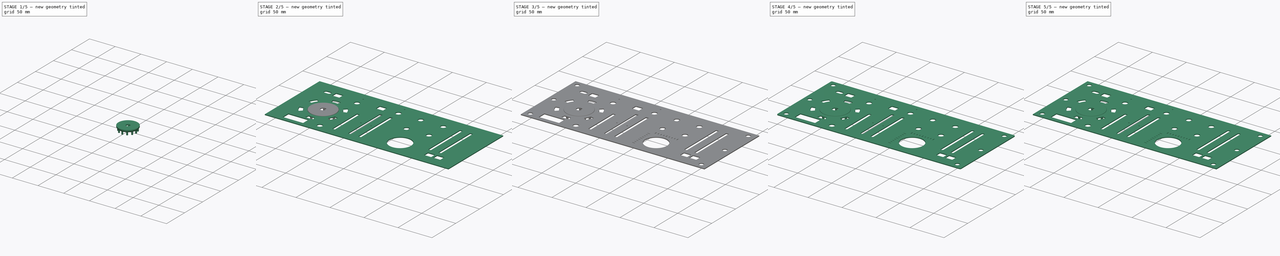
[diagram: build sequence overview — one tinted view per stage of 5, left to right]
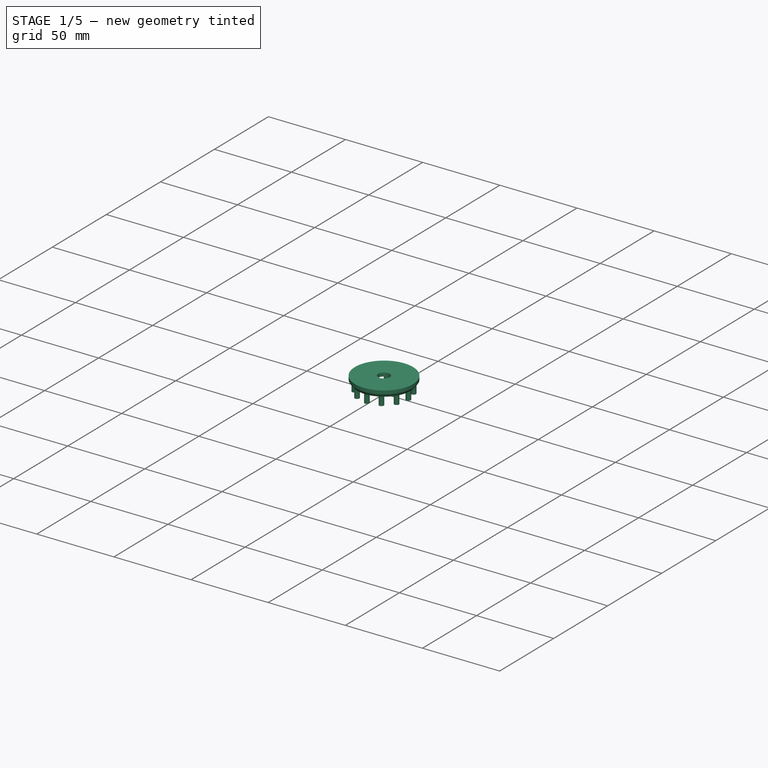
[diagram: stage 1 of 5 — iso view after this stage's code; geometry added in this stage tinted green]
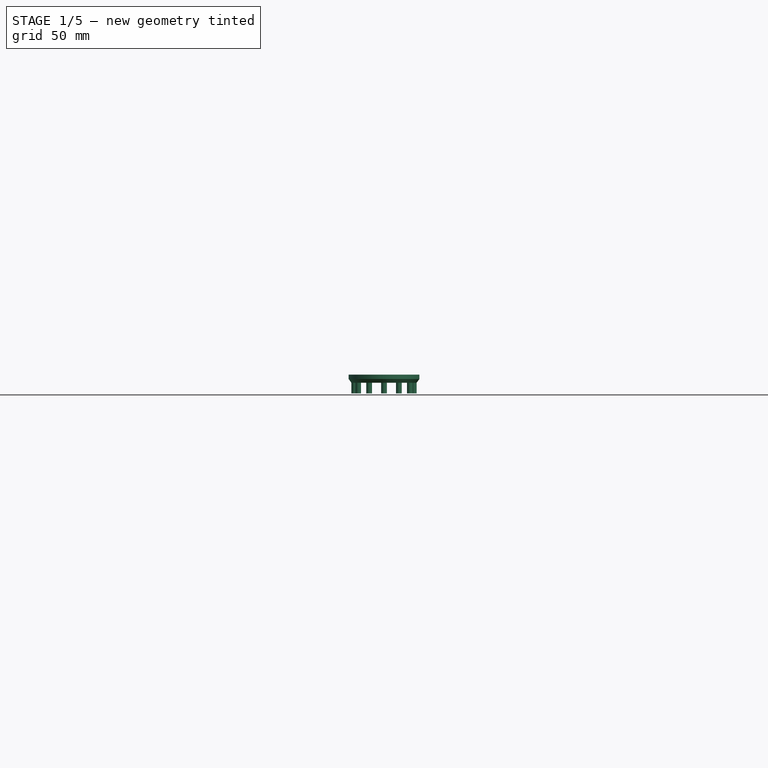
[diagram: stage 1 of 5 — front view after this stage's code; geometry added in this stage tinted green]
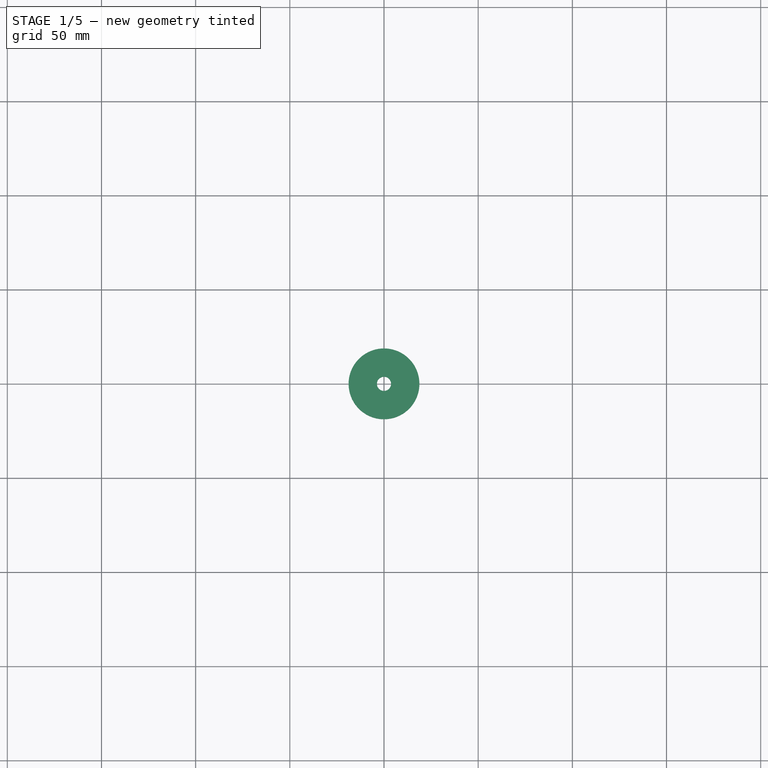
[diagram: stage 1 of 5 — top view after this stage's code; geometry added in this stage tinted green]
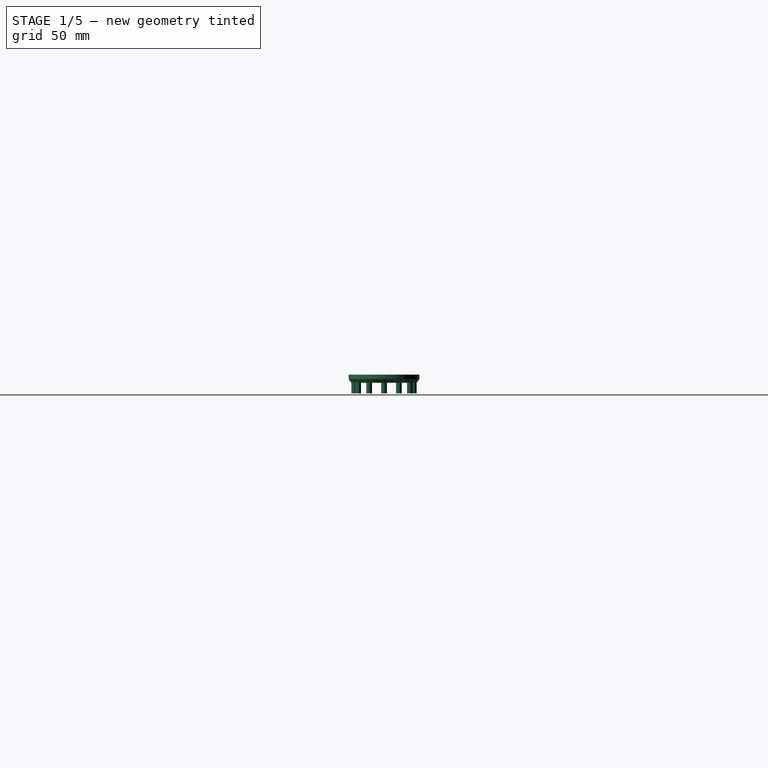
[diagram: stage 1 of 5 — right view after this stage's code; geometry added in this stage tinted green]
FCSTD DOCUMENT  (FreeCAD 0.18R16146 (Git))
Label: FaceplateMitEncoder
License: All rights reserved
LicenseURL: http://en.wikipedia.org/wiki/All_rights_reserved
objects: Drawing::FeatureViewPython×135, Sketcher::SketchObject×14, Part::Feature×13, App::DocumentObjectGroup×11, PartDesign::Fillet×10, PartDesign::Pocket×6, PartDesign::Pad×3, PartDesign::PolarPattern×2, PartDesign::Hole×2, PartDesign::Body×2, Drawing::FeatureViewPart×1, Drawing::FeaturePage×1, PartDesign::Plane×1, PartDesign::AdditiveLoft×1
note: 66 computed .brp shape members not serialized (recipe doc carries the construction recipe); baked Part::Feature solids carry a one-line shape summary decoded from their .brp

FEATURE [Sketcher::SketchObject] Sketch006
  MapMode = 5
  Support = -> [XY_Plane001]
  sketch-geometry (1):
    g0: Circle CenterX=0 CenterY=0 CenterZ=0 NormalX=0 NormalY=0 NormalZ=1 AngleXU=0 Radius=18.8
  constraints (2):
    c: Coincident(g0,g-1)
    c: Diameter(g0) = 37.6
FEATURE [PartDesign::Pad] Pad001
  Length = 2
  Length2 = 0.3
  Profile = -> Sketch006
  Type = 4
FEATURE [PartDesign::Body] Body
  Group = -> [Sketch,Pad,Pocket,PolarPattern,Sketch001,Hole,Sketch002,Pocket001,Fillet,Fillet001,Fillet002,Fillet003,Fillet004,Fillet005,Fillet006,Fillet007,Fillet008,Sketch003,Pocket002,Sketch005,Hole001,Sketch007,Pocket003]
  Origin = -> Origin
  Tip = -> Pocket003
FEATURE [Drawing::FeatureViewPart] Ortho  label="Ortho_0_0"
  Direction = (0,0,1)
  HiddenWidth = 0.15
  LineWidth = 0.35
  Rotation = 0
  ShowHiddenLines = false
  ShowSmoothLines = false
  Source = -> Body
  Tolerance = 0.05
  ViewResult = <blob: 18680 chars omitted>
  Visible = false
  X = 125.1
  Y = 125
FEATURE [Drawing::FeaturePage] Page  label="Fertigungszeichnung"
  EditableTexts = Christopher Wüpping | 09.01.2020 | SUPERVISOR NAME | CHECK DATE | 1:1 | 87g Al | 2020LUM1PROGFACEV1_0 | 1/1 | Programmer Faceplate | Lumax Programmer control V1.0
  Group = -> [Gruppe001,Gruppe002,Gruppe003,Gruppe004,Gruppe005,Gruppe006,dim036,dim037,dim038,dim039,dim040,dim042,dim043,dim045,dim046,Ortho]
  Template = /Applications/FreeCAD.app/Contents/Resources/data/Mod/Drawing/Templates/A3_Landscape.svg
FEATURE [Sketcher::SketchObject] Sketch008  label="KegelOben"
  MapMode = 5
  Placement = pos=(0,0,-0.3) rot=(1,0,0;3.14159rad)
  Support = -> [Pad001]
  sketch-geometry (3):
    g0: Circle CenterX=0 CenterY=0 CenterZ=0 NormalX=0 NormalY=0 NormalZ=1 AngleXU=0 Radius=18.8
    g1: Circle CenterX=0 CenterY=0 CenterZ=0 NormalX=0 NormalY=0 NormalZ=1 AngleXU=0 Radius=15.8
    g2: LineSegment [constr] StartX=0 StartY=18.8 StartZ=0 EndX=0 EndY=15.8 EndZ=0
  constraints (8):
    c: Coincident(g0,g-1)
    c: Diameter(g0) = 37.6
    c: Coincident(g1,g0)
    c: PointOnObject(g2,g0)
    c: PointOnObject(g2,g1)
    c: Vertical(g2)
    c: DistanceY(g2,g2) = 3
    c: PointOnObject(g2,g-2)
FEATURE [PartDesign::Plane] DatumPlane
  AttachmentOffset = pos=(0,0,2) rot=(0,0,1;0rad)
  Length = 45.1199
  MapMode = 2
  Placement = pos=(0,0,-2.3) rot=(1,0,0;3.14159rad)
  ResizeMode = 0
  Support = -> [Sketch008]
  Width = 45.1192
FEATURE [Sketcher::SketchObject] Sketch009  label="KegelUnten"
  MapMode = 5
  Placement = pos=(0,0,-2.3) rot=(1,0,0;3.14159rad)
  Support = -> [DatumPlane]
  sketch-geometry (5):
    g0: Circle CenterX=0 CenterY=0 CenterZ=0 NormalX=0 NormalY=0 NormalZ=1 AngleXU=0 Radius=17.3
    g1: Circle CenterX=0 CenterY=0 CenterZ=0 NormalX=0 NormalY=0 NormalZ=1 AngleXU=0 Radius=14.3
    g2: Circle [constr] CenterX=0 CenterY=0 CenterZ=0 NormalX=0 NormalY=0 NormalZ=1 AngleXU=0 Radius=15.8
    g3: LineSegment [constr] StartX=0 StartY=17.3 StartZ=0 EndX=0 EndY=15.8 EndZ=0
    g4: LineSegment [constr] StartX=0 StartY=15.8 StartZ=0 EndX=0 EndY=14.3 EndZ=0
  constraints (13):
    c: Coincident(g0,g-1)
    c: Coincident(g1,g0)
    c: Coincident(g2,g0)
    c: Radius(g2) = 15.8
    c: PointOnObject(g3,g0)
    c: Vertical(g3)
    c: Coincident(g3,g4)
    c: PointOnObject(g4,g1)
    c: Vertical(g4)
    c: PointOnObject(g3,g-2)
    c: DistanceY(g4,g4) = 1.5
    c: PointOnObject(g3,g2)
    c: DistanceY(g3,g3) = 1.5
FEATURE [PartDesign::AdditiveLoft] AdditiveLoft
  BaseFeature = -> Pad001
  Closed = false
  Profile = -> Sketch008
  Ruled = false
  Sections = -> [Sketch009]
FEATURE [Sketcher::SketchObject] Sketch010
  MapMode = 5
  Placement = pos=(0,0,-2.3) rot=(1,0,0;3.14159rad)
  Support = -> [AdditiveLoft]
  sketch-geometry (1):
    g0: Circle CenterX=0 CenterY=15.8 CenterZ=0 NormalX=0 NormalY=0 NormalZ=1 AngleXU=0 Radius=1.5
  constraints (3):
    c: PointOnObject(g0,g-2)
    c: Diameter(g0) = 3
    c: DistanceY(g-1,g0) = 15.8
FEATURE [PartDesign::Pad] Pad002
  BaseFeature = -> AdditiveLoft
  Length = 5.6
  Length2 = 100
  Profile = -> Sketch010
  Type = 0
FEATURE [PartDesign::PolarPattern] PolarPattern001
  Angle = 360
  Axis = -> Sketch010 [N_Axis]
  BaseFeature = -> Pad002
  Occurrences = 12
  Originals = -> [Pad002]
FEATURE [Sketcher::SketchObject] Sketch011
  MapMode = 5
  Placement = pos=(0,0,2) rot=(0,0,1;0rad)
  Support = -> [PolarPattern001]
  sketch-geometry (1):
    g0: Circle CenterX=0 CenterY=0 CenterZ=0 NormalX=0 NormalY=0 NormalZ=1 AngleXU=0 Radius=3.75
  constraints (2):
    c: Coincident(g0,g-1)
    c: Diameter(g0) = 7.5
FEATURE [PartDesign::Pocket] Pocket004
  BaseFeature = -> PolarPattern001
  Length = 5
  Length2 = 100
  Profile = -> Sketch011
  Type = 0
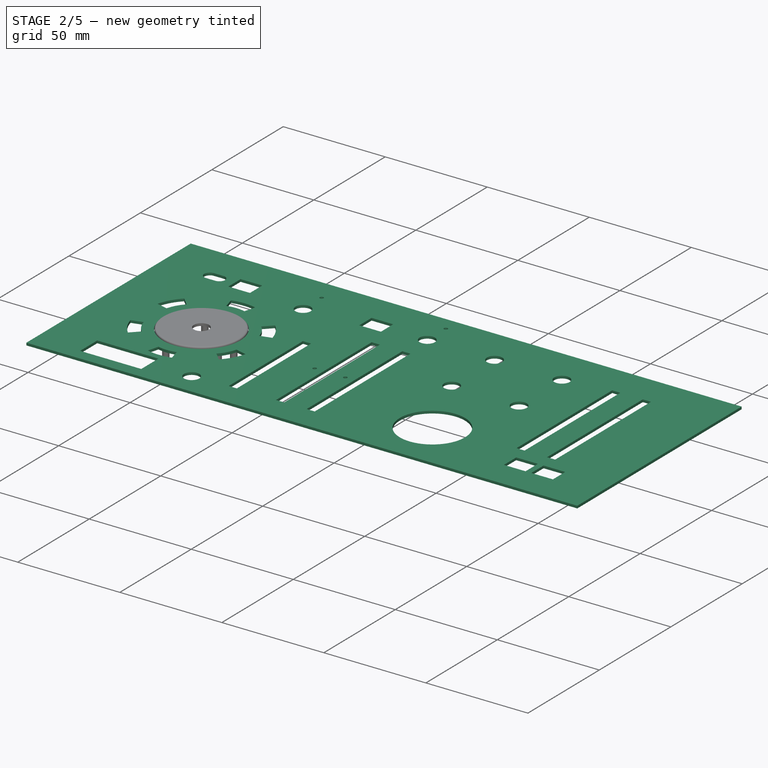
[diagram: stage 2 of 5 — iso view after this stage's code; geometry added in this stage tinted green]
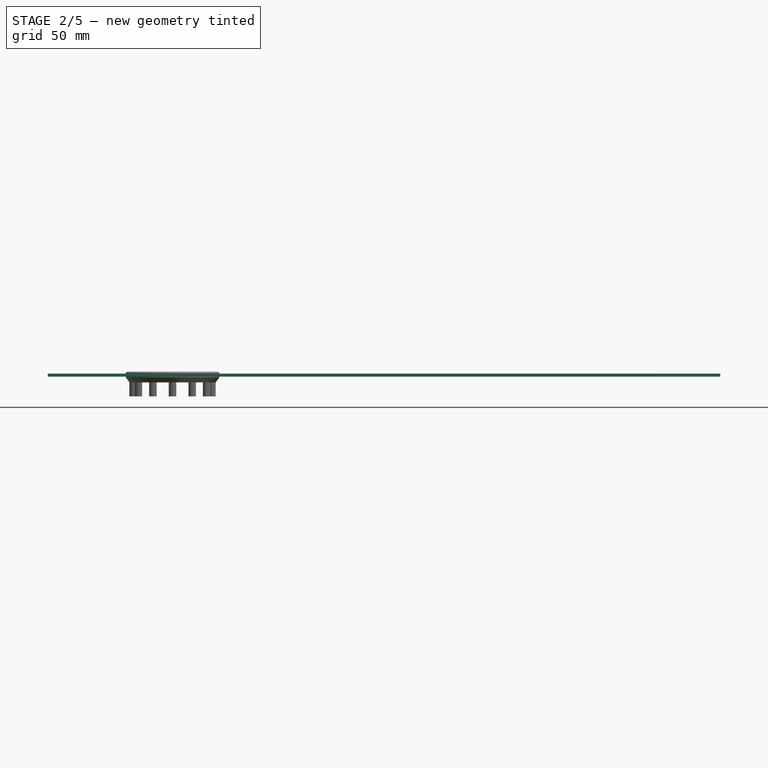
[diagram: stage 2 of 5 — front view after this stage's code; geometry added in this stage tinted green]
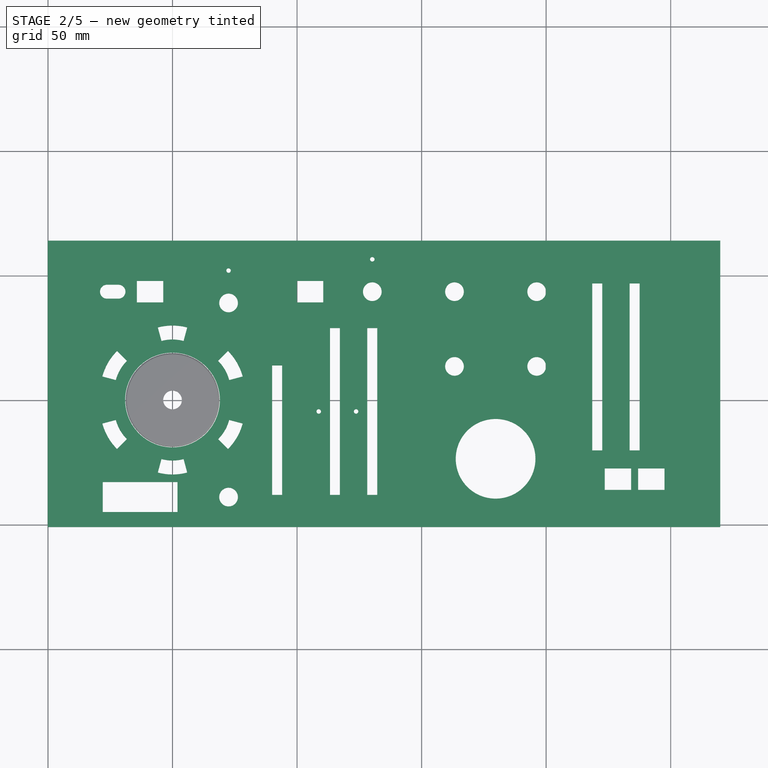
[diagram: stage 2 of 5 — top view after this stage's code; geometry added in this stage tinted green]
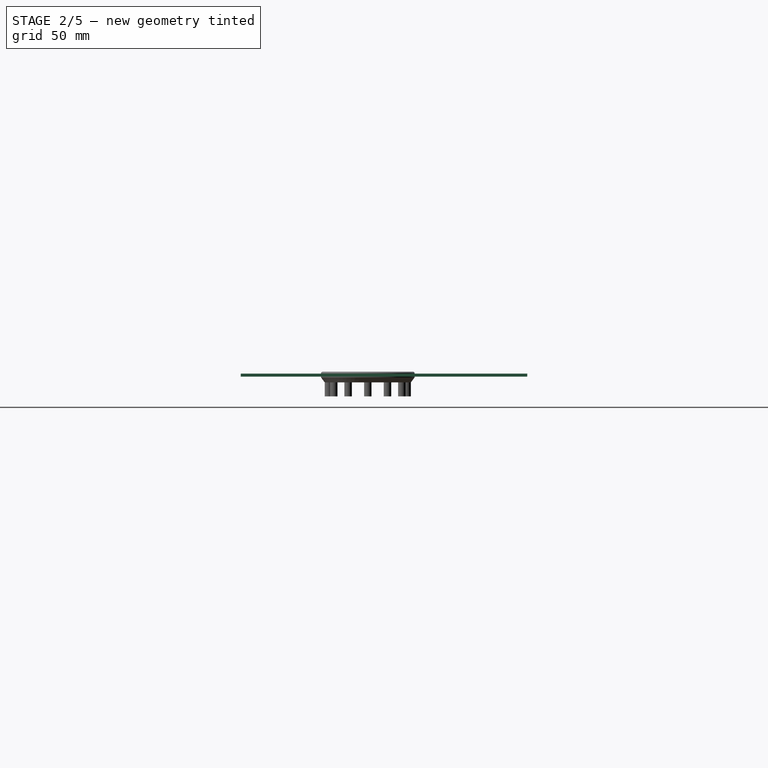
[diagram: stage 2 of 5 — right view after this stage's code; geometry added in this stage tinted green]
FEATURE [Sketcher::SketchObject] Sketch
  MapMode = 5
  Support = -> [XY_Plane]
  sketch-geometry (100):
    g0: LineSegment [constr] StartX=-31.1 StartY=59 StartZ=0 EndX=198.9 EndY=59 EndZ=0
    g1: LineSegment [constr] StartX=198.9 StartY=59 StartZ=0 EndX=198.9 EndY=-46 EndZ=0
    g2: LineSegment [constr] StartX=198.9 StartY=-46 StartZ=0 EndX=-31.1 EndY=-46 EndZ=0
    g3: LineSegment [constr] StartX=-31.1 StartY=-46 StartZ=0 EndX=-31.1 EndY=59 EndZ=0
    g4: LineSegment StartX=40 StartY=13.9 StartZ=0 EndX=44 EndY=13.9 EndZ=0
    g5: LineSegment StartX=44 StartY=13.9 StartZ=0 EndX=44 EndY=-38.1 EndZ=0
    g6: LineSegment StartX=44 StartY=-38.1 StartZ=0 EndX=40 EndY=-38.1 EndZ=0
    g7: LineSegment StartX=40 StartY=-38.1 StartZ=0 EndX=40 EndY=13.9 EndZ=0
    g8: GeomPoint X=42 Y=-12.1 Z=0
    g9: Circle CenterX=0 CenterY=0 CenterZ=0 NormalX=0 NormalY=0 NormalZ=1 AngleXU=0 Radius=19
    g10: LineSegment StartX=63.2 StartY=28.9 StartZ=0 EndX=67.2 EndY=28.9 EndZ=0
    g11: LineSegment StartX=67.2 StartY=28.9 StartZ=0 EndX=67.2 EndY=-38.1 EndZ=0
    g12: LineSegment StartX=67.2 StartY=-38.1 StartZ=0 EndX=63.2 EndY=-38.1 EndZ=0
    g13: LineSegment StartX=63.2 StartY=-38.1 StartZ=0 EndX=63.2 EndY=28.9 EndZ=0
    g14: GeomPoint X=65.2 Y=-4.6 Z=0
    g15: LineSegment StartX=78.2 StartY=28.9 StartZ=0 EndX=82.2 EndY=28.9 EndZ=0
    g16: LineSegment StartX=82.2 StartY=28.9 StartZ=0 EndX=82.2 EndY=-38.1 EndZ=0
    g17: LineSegment StartX=82.2 StartY=-38.1 StartZ=0 EndX=78.2 EndY=-38.1 EndZ=0
    g18: LineSegment StartX=78.2 StartY=-38.1 StartZ=0 EndX=78.2 EndY=28.9 EndZ=0
    g19: LineSegment [constr] StartX=65.2 StartY=-4.6 StartZ=0 EndX=80.2 EndY=-4.6 EndZ=0
    g20: GeomPoint X=80.2 Y=-4.6 Z=0
    g21: Circle CenterX=58.7 CenterY=-4.6 CenterZ=0 NormalX=0 NormalY=0 NormalZ=1 AngleXU=0 Radius=0.9
    g22: Circle CenterX=73.7 CenterY=-4.6 CenterZ=0 NormalX=0 NormalY=0 NormalZ=1 AngleXU=0 Radius=0.9
    g23: LineSegment [constr] StartX=58.7 StartY=-4.6 StartZ=0 EndX=65.2 EndY=-4.6 EndZ=0
    g24: LineSegment [constr] StartX=73.7 StartY=-4.6 StartZ=0 EndX=80.2 EndY=-4.6 EndZ=0
    g25: Circle CenterX=22.5 CenterY=38.9711 CenterZ=0 NormalX=0 NormalY=0 NormalZ=1 AngleXU=0 Radius=3.75
    g26: Circle CenterX=22.5 CenterY=51.9711 CenterZ=0 NormalX=0 NormalY=0 NormalZ=1 AngleXU=0 Radius=0.9
    g27: GeomPoint X=55.2 Y=43.5 Z=0
    g28: LineSegment StartX=49.9 StartY=47.8 StartZ=0 EndX=60.5 EndY=47.8 EndZ=0
    g29: LineSegment StartX=49.9 StartY=39.2 StartZ=0 EndX=49.9 EndY=47.8 EndZ=0
    g30: Circle CenterX=80.2 CenterY=43.5 CenterZ=0 NormalX=0 NormalY=0 NormalZ=1 AngleXU=0 Radius=3.75
    g31: LineSegment [constr] StartX=80.2 StartY=-4.6 StartZ=0 EndX=80.2 EndY=43.5 EndZ=0
    g32: LineSegment StartX=168.5 StartY=46.8 StartZ=0 EndX=172.5 EndY=46.8 EndZ=0
    g33: LineSegment StartX=172.5 StartY=46.8 StartZ=0 EndX=172.5 EndY=-20.2 EndZ=0
    g34: LineSegment StartX=172.5 StartY=-20.2 StartZ=0 EndX=168.5 EndY=-20.2 EndZ=0
    g35: LineSegment StartX=168.5 StartY=-20.2 StartZ=0 EndX=168.5 EndY=46.8 EndZ=0
    g36: LineSegment StartX=183.5 StartY=46.8 StartZ=0 EndX=187.5 EndY=46.8 EndZ=0
    g37: LineSegment StartX=187.5 StartY=46.8 StartZ=0 EndX=187.5 EndY=-20.2 EndZ=0
    g38: LineSegment StartX=187.5 StartY=-20.2 StartZ=0 EndX=183.5 EndY=-20.2 EndZ=0
    g39: LineSegment StartX=183.5 StartY=-20.2 StartZ=0 EndX=183.5 EndY=46.8 EndZ=0
    g40: GeomPoint X=170.5 Y=13.3 Z=0
    g41: GeomPoint X=185.5 Y=13.3 Z=0
    g42: LineSegment [constr] StartX=170.5 StartY=13.3 StartZ=0 EndX=185.5 EndY=13.3 EndZ=0
    g43: LineSegment [constr] StartX=178.8 StartY=-31.8 StartZ=0 EndX=185.5 EndY=-31.8 EndZ=0
    g44: LineSegment [constr] StartX=185.5 StartY=-31.8 StartZ=0 EndX=192.2 EndY=-31.8 EndZ=0
    g45: LineSegment [constr] StartX=185.5 StartY=-31.8 StartZ=0 EndX=185.5 EndY=13.3 EndZ=0
    g46: LineSegment StartX=186.9 StartY=-27.5 StartZ=0 EndX=197.5 EndY=-27.5 EndZ=0
    g47: LineSegment StartX=197.5 StartY=-27.5 StartZ=0 EndX=197.5 EndY=-36.1 EndZ=0
    g48: LineSegment StartX=197.5 StartY=-36.1 StartZ=0 EndX=186.9 EndY=-36.1 EndZ=0
    g49: LineSegment StartX=186.9 StartY=-36.1 StartZ=0 EndX=186.9 EndY=-27.5 EndZ=0
    g50: LineSegment StartX=173.5 StartY=-27.5 StartZ=0 EndX=184.1 EndY=-27.5 EndZ=0
    g51: LineSegment StartX=184.1 StartY=-27.5 StartZ=0 EndX=184.1 EndY=-36.1 EndZ=0
    g52: LineSegment StartX=184.1 StartY=-36.1 StartZ=0 EndX=173.5 EndY=-36.1 EndZ=0
    g53: LineSegment StartX=173.5 StartY=-36.1 StartZ=0 EndX=173.5 EndY=-27.5 EndZ=0
    g54: Circle CenterX=113.2 CenterY=43.5 CenterZ=0 NormalX=0 NormalY=0 NormalZ=1 AngleXU=0 Radius=3.75
    g55: Circle CenterX=146.2 CenterY=43.5 CenterZ=0 NormalX=0 NormalY=0 NormalZ=1 AngleXU=0 Radius=3.75
    g56: Circle CenterX=113.2 CenterY=13.5 CenterZ=0 NormalX=0 NormalY=0 NormalZ=1 AngleXU=0 Radius=3.75
    g57: Circle CenterX=146.2 CenterY=13.5 CenterZ=0 NormalX=0 NormalY=0 NormalZ=1 AngleXU=0 Radius=3.75
    g58: LineSegment [constr] StartX=113.2 StartY=43.5 StartZ=0 EndX=146.2 EndY=43.5 EndZ=0
    g59: LineSegment [constr] StartX=146.2 StartY=43.5 StartZ=0 EndX=146.2 EndY=13.5 EndZ=0
    g60: LineSegment [constr] StartX=113.2 StartY=13.5 StartZ=0 EndX=113.2 EndY=43.5 EndZ=0
    g61: LineSegment [constr] StartX=80.2 StartY=43.5 StartZ=0 EndX=113.2 EndY=43.5 EndZ=0
    g62: LineSegment [constr] StartX=146.2 StartY=13.5 StartZ=0 EndX=129.7 EndY=13.5 EndZ=0
    g63: Circle CenterX=129.7 CenterY=-23.6 CenterZ=0 NormalX=0 NormalY=0 NormalZ=1 AngleXU=0 Radius=16
    g64: LineSegment [constr] StartX=129.7 StartY=13.5 StartZ=0 EndX=129.7 EndY=-23.6 EndZ=0
    g65: LineSegment [constr] StartX=129.7 StartY=-3.6 StartZ=0 EndX=129.7 EndY=-23.6 EndZ=0
    g66: LineSegment StartX=-50.1 StartY=64 StartZ=0 EndX=219.9 EndY=64 EndZ=0
    g67: LineSegment StartX=219.9 StartY=64 StartZ=0 EndX=219.9 EndY=-51 EndZ=0
    g68: LineSegment StartX=219.9 StartY=-51 StartZ=0 EndX=-50.1 EndY=-51 EndZ=0
    g69: LineSegment StartX=-50.1 StartY=-51 StartZ=0 EndX=-50.1 EndY=64 EndZ=0
    g70: LineSegment [constr] StartX=198.9 StartY=59 StartZ=0 EndX=198.9 EndY=64 EndZ=0
    g71: LineSegment [constr] StartX=-31.1 StartY=-46 StartZ=0 EndX=-31.1 EndY=-51 EndZ=0
    g72: LineSegment StartX=-14.3 StartY=47.8 StartZ=0 EndX=-3.7 EndY=47.8 EndZ=0
    g73: LineSegment StartX=-3.7 StartY=47.8 StartZ=0 EndX=-3.7 EndY=39.2 EndZ=0
    g74: LineSegment StartX=-3.7 StartY=39.2 StartZ=0 EndX=-14.3 EndY=39.2 EndZ=0
    g75: LineSegment StartX=-14.3 StartY=39.2 StartZ=0 EndX=-14.3 EndY=47.8 EndZ=0
    g76: GeomPoint X=-9 Y=43.5 Z=0
    g77: LineSegment StartX=-28 StartY=-32.9711 StartZ=0 EndX=2 EndY=-32.9711 EndZ=0
    g78: LineSegment StartX=2 StartY=-32.9711 StartZ=0 EndX=2 EndY=-44.9711 EndZ=0
    g79: LineSegment StartX=2 StartY=-44.9711 StartZ=0 EndX=-28 EndY=-44.9711 EndZ=0
    g80: LineSegment StartX=-28 StartY=-44.9711 StartZ=0 EndX=-28 EndY=-32.9711 EndZ=0
    g81: LineSegment [constr] StartX=22.5 StartY=51.9711 StartZ=0 EndX=22.5 EndY=38.9711 EndZ=0
    g82: Circle CenterX=80.2 CenterY=56.5 CenterZ=0 NormalX=0 NormalY=0 NormalZ=1 AngleXU=0 Radius=0.9
    g83: LineSegment [constr] StartX=80.2 StartY=43.5 StartZ=0 EndX=80.2 EndY=56.5 EndZ=0
    g84: LineSegment StartX=49.9 StartY=39.2 StartZ=0 EndX=60.5 EndY=39.2 EndZ=0
    g85: LineSegment StartX=60.5 StartY=39.2 StartZ=0 EndX=60.5 EndY=47.8 EndZ=0
    g86: LineSegment [constr] StartX=113.2 StartY=13.5 StartZ=0 EndX=129.7 EndY=13.5 EndZ=0
    g87: LineSegment [constr] StartX=-31.1 StartY=-46 StartZ=0 EndX=-50.1 EndY=-46 EndZ=0
    g88: LineSegment [constr] StartX=198.9 StartY=-46 StartZ=0 EndX=219.9 EndY=-46 EndZ=0
    g89: ArcOfCircle CenterX=-21.7 CenterY=43.5 CenterZ=0 NormalX=0 NormalY=0 NormalZ=1 AngleXU=0 Radius=2.8 StartAngle=4.71239 EndAngle=7.85398
    g90: ArcOfCircle CenterX=-26.3 CenterY=43.5 CenterZ=0 NormalX=0 NormalY=0 NormalZ=1 AngleXU=0 Radius=2.8 StartAngle=1.5708 EndAngle=4.71239
    g91: LineSegment StartX=-21.7 StartY=46.3 StartZ=0 EndX=-26.3 EndY=46.3 EndZ=0
    g92: LineSegment StartX=-21.7 StartY=40.7 StartZ=0 EndX=-26.3 EndY=40.7 EndZ=0
    g93: LineSegment [constr] StartX=-26.3 StartY=46.3 StartZ=0 EndX=-26.3 EndY=40.7 EndZ=0
    g94: GeomPoint X=-24 Y=43.5 Z=0
    g95: LineSegment [constr] StartX=0 StartY=0 StartZ=0 EndX=22.5 EndY=38.9711 EndZ=0
    g96: GeomPoint X=-13 Y=-38.9711 Z=0
    g97: Circle CenterX=22.5 CenterY=-38.9711 CenterZ=0 NormalX=0 NormalY=0 NormalZ=1 AngleXU=0 Radius=3.75
    g98: LineSegment [constr] StartX=0 StartY=0 StartZ=0 EndX=22.5 EndY=-38.9711 EndZ=0
    g99: LineSegment [constr] StartX=-13 StartY=-38.9711 StartZ=0 EndX=22.5 EndY=-38.9711 EndZ=0
  constraints (260):
    c: Coincident(g0,g1)
    c: Coincident(g1,g2)
    c: Coincident(g2,g3)
    c: Coincident(g3,g0)
    c: Horizontal(g0)
    c: Horizontal(g2)
    c: Vertical(g1)
    c: Vertical(g3)
    c: DistanceY(g1,g1) = 105
    c: DistanceX(g0,g-1) = 31.1
    c: DistanceY(g-1,g0) = 59
    c: Coincident(g4,g5)
    c: Coincident(g5,g6)
    c: Coincident(g6,g7)
    c: Coincident(g7,g4)
    c: Horizontal(g4)
    c: Horizontal(g6)
    c: Vertical(g5)
    c: Vertical(g7)
    c: Symmetric(g4,g5,g8)
    c: DistanceX(g-1,g8) = 42
    c: DistanceY(g8,g-1) = 12.1
    c: DistanceY(g5,g5) = 52
    c: Coincident(g9,g-1)
    c: Diameter(g9) = 38
    c: Coincident(g10,g11)
    c: Coincident(g11,g12)
    c: Coincident(g12,g13)
    c: Coincident(g13,g10)
    c: Horizontal(g10)
    c: Horizontal(g12)
    c: Vertical(g11)
    c: Vertical(g13)
    c: Symmetric(g10,g11,g14)
    c: Equal(g10,g4)
    c: Coincident(g15,g16)
    c: Coincident(g16,g17)
    c: Coincident(g17,g18)
    c: Coincident(g18,g15)
    c: Horizontal(g15)
    c: Horizontal(g17)
    c: Vertical(g16)
    c: Vertical(g18)
    c: Equal(g15,g10)
    c: Equal(g16,g11)
    c: DistanceX(g9,g14) = 65.2
    c: DistanceY(g14,g9) = 4.6
    c: Coincident(g19,g14)
    c: Horizontal(g19)
    c: Symmetric(g15,g16,g20)
    c: Coincident(g19,g20)
    c: DistanceX(g19,g19) = 15
    c: Diameter(g22) = 1.8
    c: PointOnObject(g22,g19)
    c: PointOnObject(g21,g19)
    c: DistanceX(g22,g20) = 6.5
    c: Coincident(g23,g21)
    c: Coincident(g23,g14)
    c: Equal(g23,g24)
    c: Equal(g22,g21)
    c: Diameter(g25) = 7.5
    c: DistanceY(g25,g26) = 13
    c: Equal(g26,g21)
    c: Coincident(g24,g20)
    c: Coincident(g24,g22)
    c: Coincident(g29,g28)
    c: Horizontal(g28)
    c: Vertical(g29)
    c: DistanceX(g28,g28) = 10.6
    c: Equal(g30,g25)
    c: Coincident(g31,g20)
    c: Vertical(g31)
    c: Coincident(g30,g31)
    c: Coincident(g32,g33)
    c: Coincident(g33,g34)
    c: Coincident(g34,g35)
    c: Coincident(g35,g32)
    c: Horizontal(g32)
    c: Horizontal(g34)
    c: Vertical(g33)
    c: Vertical(g35)
    c: Coincident(g36,g37)
    c: Coincident(g37,g38)
    c: Coincident(g38,g39)
    c: Coincident(g39,g36)
    c: Horizontal(g36)
    c: Horizontal(g38)
    c: Vertical(g37)
    c: Vertical(g39)
    c: Equal(g32,g15)
    c: Equal(g36,g32)
    c: Equal(g35,g16)
    c: Equal(g39,g33)
    c: Symmetric(g32,g33,g40)
    c: Symmetric(g36,g37,g41)
    c: Coincident(g42,g40)
    c: Horizontal(g42)
    c: Coincident(g41,g42)
    c: Equal(g42,g19)
    c: DistanceX(g9,g40) = 170.5
    c: DistanceY(g9,g40) = 13.3
    c: Horizontal(g43)
    c: Coincident(g44,g43)
    c: Horizontal(g44)
    c: Equal(g43,g44)
    c: DistanceX(g43,g44) = 13.4
    c: Coincident(g45,g43)
    c: Vertical(g45)
    c: Coincident(g45,g41)
    c: Coincident(g46,g47)
    c: Coincident(g47,g48)
    c: Coincident(g48,g49)
    c: Coincident(g49,g46)
    c: Horizontal(g46)
    c: Vertical(g47)
    c: Vertical(g49)
    c: Coincident(g50,g51)
    c: Coincident(g51,g52)
    c: Coincident(g52,g53)
    c: Coincident(g53,g50)
    c: Horizontal(g50)
    c: Vertical(g51)
    c: Vertical(g53)
    c: Equal(g46,g50)
    c: Equal(g47,g51)
    c: Equal(g50,g28)
    c: Symmetric(g46,g47,g44)
    c: Symmetric(g50,g51,g43)
    c: DistanceY(g45,g45) = 45.1
    c: DistanceX(g36,g36) = 4
    c: DistanceY(g37,g37) = 67
    c: Equal(g54,g30)
    c: Equal(g55,g54)
    c: Equal(g57,g56)
    c: Equal(g56,g54)
    c: Coincident(g58,g59)
    c: Coincident(g60,g58)
    c: Horizontal(g58)
    c: Vertical(g59)
    c: Vertical(g60)
    c: Coincident(g54,g58)
    c: Coincident(g55,g58)
    c: Coincident(g57,g59)
    c: DistanceX(g58,g58) = 33
    c: Coincident(g61,g30)
    c: Coincident(g61,g54)
    c: Horizontal(g61)
    c: DistanceX(g61,g61) = 33
    c: Coincident(g62,g57)
    c: Horizontal(g62)
    c: Coincident(g60,g56)
    c: Coincident(g64,g63)
    c: Vertical(g64)
    c: Diameter(g63) = 32
    c: DistanceY(g64,g64) = 37.1
    c: PointOnObject(g65,g64)
    c: DistanceY(g63,g65) = 20
    c: Coincident(g65,g63)
    c: Coincident(g66,g67)
    c: Coincident(g67,g68)
    c: Coincident(g68,g69)
    c: Coincident(g69,g66)
    c: Horizontal(g66)
    c: Horizontal(g68)
    c: Vertical(g67)
    c: Vertical(g69)
    c: Coincident(g70,g0)
    c: PointOnObject(g70,g66)
    c: Vertical(g70)
    c: DistanceY(g70,g70) = 5
    c: Coincident(g71,g2)
    c: PointOnObject(g71,g68)
    c: Vertical(g71)
    c: Equal(g70,g71)
    c: Coincident(g72,g73)
    c: Coincident(g73,g74)
    c: Coincident(g74,g75)
    c: Coincident(g75,g72)
    c: Horizontal(g72)
    c: Horizontal(g74)
    c: Vertical(g73)
    c: Vertical(g75)
    c: Equal(g72,g28)
    c: Equal(g29,g73)
    c: Symmetric(g73,g72,g76)
    c: DistanceX(g76,g9) = 9
    c: DistanceY(g9,g76) = 43.5
    c: DistanceY(g59,g59) = 30
    c: DistanceX(g0,g0) = 230
    c: Coincident(g77,g78)
    c: Coincident(g78,g79)
    c: Coincident(g79,g80)
    c: Coincident(g80,g77)
    c: Horizontal(g77)
    c: Horizontal(g79)
    c: Vertical(g78)
    c: DistanceY(g78,g78) = 12
    c: DistanceX(g77,g77) = 30
    c: Coincident(g81,g26)
    c: Coincident(g81,g25)
    c: Vertical(g81)
    c: DistanceX(g27,g14) = 10
    c: Equal(g82,g26)
    c: Coincident(g83,g30)
    c: Vertical(g83)
    c: Coincident(g82,g83)
    c: Equal(g83,g81)
    c: Equal(g47,g49)
    c: Coincident(g29,g84)
    c: Horizontal(g84)
    c: Coincident(g84,g85)
    c: Coincident(g85,g28)
    c: Vertical(g85)
    c: Horizontal(g52)
    c: Equal(g53,g85)
    c: DistanceY(g29,g29) = 8.6
    c: Symmetric(g28,g84,g27)
    c: DistanceY(g30,g27) = 0
    c: Coincident(g62,g64)
    c: Coincident(g86,g56)
    c: Coincident(g86,g62)
    c: Horizontal(g86)
    c: Equal(g62,g86)
    c: DistanceY(g31,g31) = 48.1
    c: Coincident(g87,g2)
    c: PointOnObject(g87,g69)
    c: Horizontal(g87)
    c: PointOnObject(g88,g67)
    c: Horizontal(g88)
    c: DistanceX(g88,g88) = 21
    c: DistanceX(g87,g87) = 19
    c: Coincident(g88,g1)
    c: Tangent(g89,g92) = 1.5708
    c: Tangent(g89,g91) = -1.5708
    c: Tangent(g91,g90) = -1.5708
    c: Tangent(g92,g90) = 1.5708
    c: Horizontal(g91)
    c: Equal(g89,g90)
    c: Coincident(g93,g90)
    c: Coincident(g93,g90)
    c: DistanceY(g93,g93) = 5.6
    c: DistanceX(g91,g91) = 4.6
    c: Symmetric(g90,g89,g94)
    c: DistanceX(g94,g76) = 15
    c: DistanceY(g89,g74) = -1.5
    c: Vertical(g80)
    c: Coincident(g95,g9)
    c: Coincident(g95,g25)
    c: Angle(g-1,g95) = 1.0472
    c: Symmetric(g77,g78,g96)
    c: DistanceX(g96,g9) = 13
    c: Distance(g95) = 45
    c: Equal(g97,g25)
    c: Coincident(g98,g9)
    c: Coincident(g98,g97)
    c: Equal(g95,g98)
    c: Angle(g98,g-1) = 1.0472
    c: Horizontal(g99)
    c: Coincident(g99,g97)
    c: Coincident(g99,g96)
FEATURE [PartDesign::Pad] Pad
  Length = 1.2
  Length2 = 100
  Profile = -> Sketch
  Type = 0
FEATURE [Sketcher::SketchObject] CopySketch001  label="ColorButtons"
  Placement = pos=(0,0,1.2) rot=(0,0,1;0rad)
  sketch-geometry (14):
    g0: ArcOfCircle CenterX=0 CenterY=7.3 CenterZ=0 NormalX=0 NormalY=0 NormalZ=1 AngleXU=0 Radius=22.6 StartAngle=1.30667 EndAngle=1.83492
    g1: ArcOfCircle CenterX=0 CenterY=7.3 CenterZ=0 NormalX=0 NormalY=0 NormalZ=1 AngleXU=0 Radius=17 StartAngle=1.30667 EndAngle=1.83492
    g2: LineSegment [constr] StartX=-5.9 StartY=29.1163 StartZ=0 EndX=-4.43805 EndY=23.7105 EndZ=0
    g3: LineSegment [constr] StartX=5.9 StartY=29.1163 StartZ=0 EndX=4.43805 EndY=23.7105 EndZ=0
    g4: GeomPoint X=0 Y=29.9 Z=0
    g5: GeomPoint X=0 Y=24.3 Z=0
    g6: LineSegment StartX=-5.9 StartY=29.1163 StartZ=0 EndX=-4.43805 EndY=23.7105 EndZ=0
    g7: LineSegment StartX=5.9 StartY=29.1163 StartZ=0 EndX=4.43805 EndY=23.7105 EndZ=0
    g8: GeomPoint X=0 Y=27.15 Z=0
    g9: LineSegment [constr] StartX=-5.9 StartY=29.1163 StartZ=0 EndX=0 EndY=27.15 EndZ=0
    g10: LineSegment [constr] StartX=5.9 StartY=29.1163 StartZ=0 EndX=0 EndY=27.15 EndZ=0
    g11: GeomPoint X=0 Y=7.3 Z=0
    g12: LineSegment [constr] StartX=-4.43805 StartY=23.7105 StartZ=0 EndX=0 EndY=7.3 EndZ=0
    g13: LineSegment [constr] StartX=0 StartY=7.3 StartZ=0 EndX=4.43805 EndY=23.7105 EndZ=0
  constraints (32):
    c: Coincident(g1,g0)
    c: Coincident(g2,g0)
    c: Coincident(g2,g1)
    c: Coincident(g3,g1)
    c: Coincident(g3,g0)
    c: PointOnObject(g4,g-2)
    c: PointOnObject(g5,g-2)
    c: PointOnObject(g4,g0)
    c: PointOnObject(g5,g1)
    c: Coincident(g6,g0)
    c: Coincident(g6,g1)
    c: Coincident(g7,g0)
    c: Coincident(g7,g1)
    c: DistanceX(g0,g0) = 11.8
    c: PointOnObject(g8,g-2)
    c: Coincident(g9,g0)
    c: Coincident(g9,g8)
    c: Coincident(g10,g0)
    c: Coincident(g10,g8)
    c: PointOnObject(g11,g-2)
    c: Coincident(g12,g1)
    c: Coincident(g12,g11)
    c: Coincident(g13,g11)
    c: Coincident(g13,g1)
    c: Parallel(g6,g12)
    c: Parallel(g7,g13)
    c: Coincident(g0,g11)
    c: Equal(g9,g10)
    c: DistanceY(g-1,g8) = 27.15
    c: DistanceY(g0,g4) = 22.6
    c: DistanceY(g8,g4) = 2.75
    c: DistanceY(g5,g4) = 5.6
FEATURE [PartDesign::Pocket] Pocket  label="PocketCirc"
  BaseFeature = -> Pad
  Length = 5
  Length2 = 100
  Profile = -> CopySketch001
  Type = 0
FEATURE [PartDesign::PolarPattern] PolarPattern
  Angle = 360
  Axis = -> CopySketch001 [N_Axis]
  BaseFeature = -> Pocket
  Occurrences = 6
  Originals = -> [Pocket]
FEATURE [Sketcher::SketchObject] Sketch012
  MapMode = 5
  Placement = pos=(0,0,-0.3) rot=(1,0,0;3.14159rad)
  Support = -> [Pocket004]
  sketch-geometry (1):
    g0: Circle CenterX=0 CenterY=0 CenterZ=0 NormalX=0 NormalY=0 NormalZ=1 AngleXU=0 Radius=15.8
  constraints (2):
    c: Coincident(g0,g-1)
    c: Diameter(g0) = 31.6
FEATURE [PartDesign::Pocket] Pocket005
  BaseFeature = -> Pocket004
  Length = 1.1
  Length2 = 100
  Profile = -> Sketch012
  Type = 0
FEATURE [PartDesign::Fillet] Fillet009
  Base = -> Pocket005 [Edge3]
  BaseFeature = -> Pocket005
  Radius = 0.7
FEATURE [Sketcher::SketchObject] Sketch013
  MapMode = 5
  Placement = pos=(0,0,0) rot=(1,0,0;1.5708rad)
  Support = -> [XZ_Plane001]
FEATURE [PartDesign::Body] Body001
  Group = -> [Sketch006,Pad001,Sketch008,DatumPlane,Sketch009,AdditiveLoft,Sketch010,Pad002,PolarPattern001,Sketch011,Pocket004,Sketch012,Pocket005,Fillet009,Sketch013]
  Origin = -> Origin001
  Tip = -> Fillet009
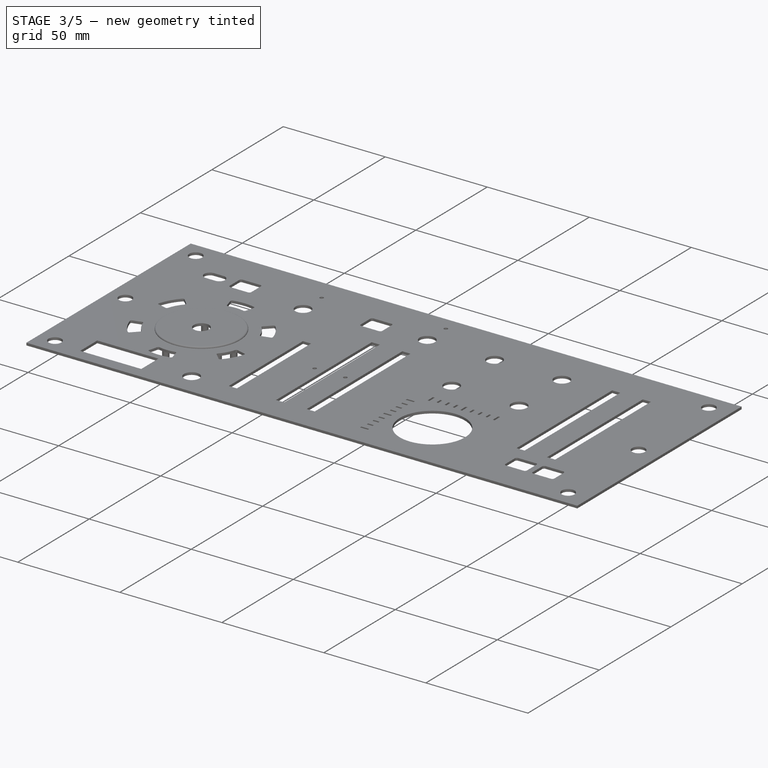
[diagram: stage 3 of 5 — iso view after this stage's code; geometry added in this stage tinted green]
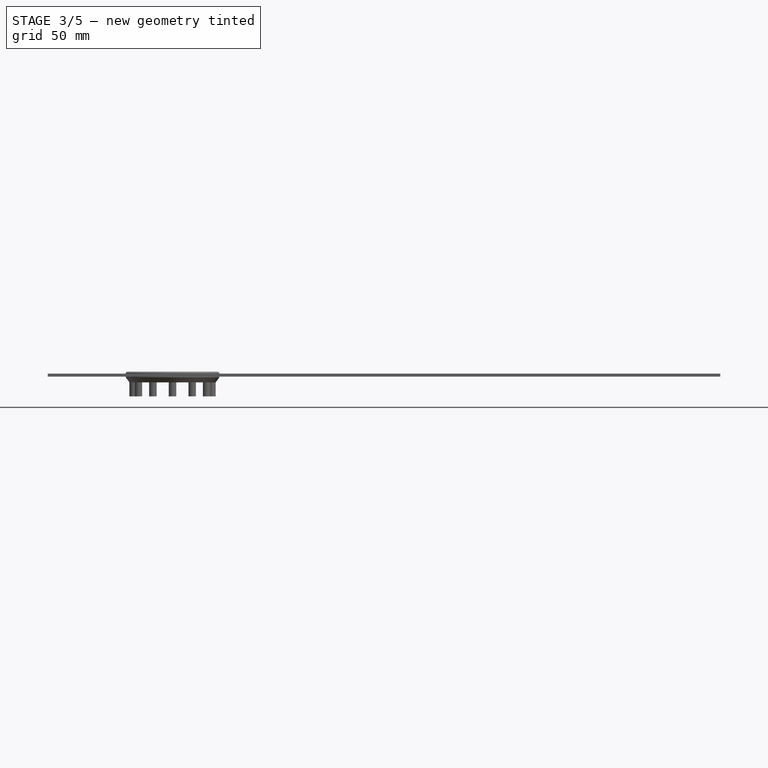
[diagram: stage 3 of 5 — front view after this stage's code; geometry added in this stage tinted green]
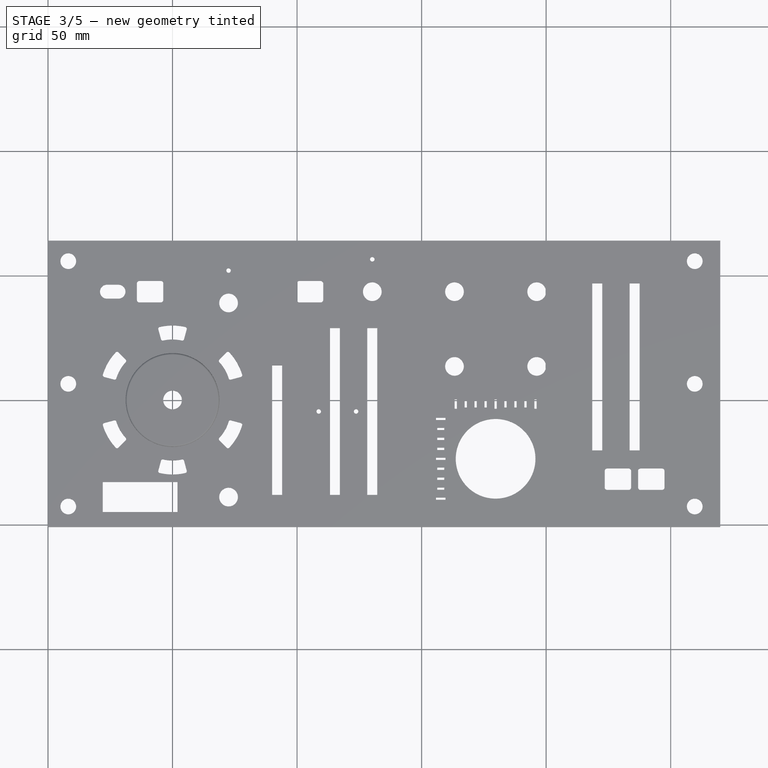
[diagram: stage 3 of 5 — top view after this stage's code; geometry added in this stage tinted green]
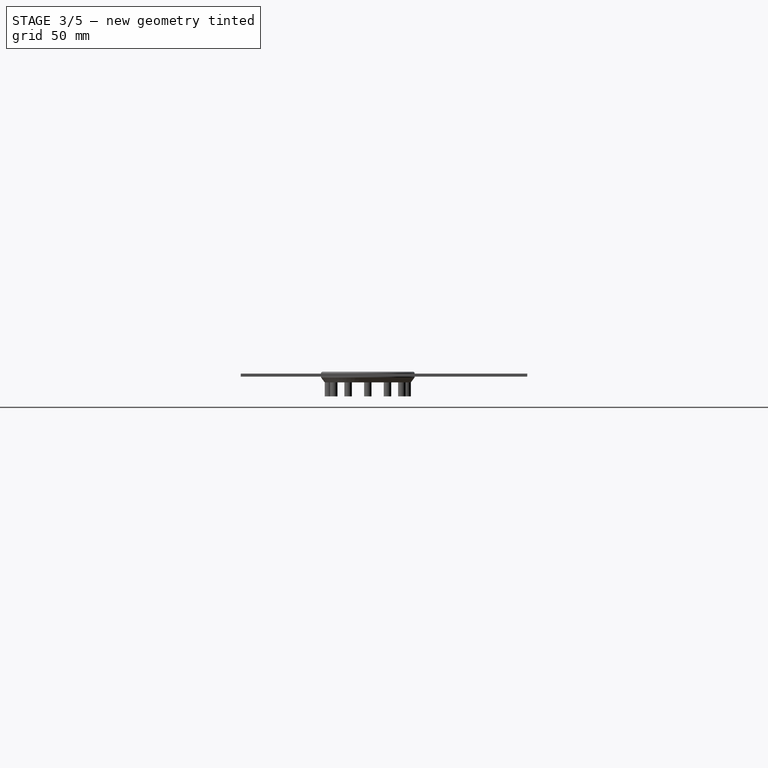
[diagram: stage 3 of 5 — right view after this stage's code; geometry added in this stage tinted green]
FEATURE [Sketcher::SketchObject] Sketch001
  ExternalGeometry = -> [PolarPattern]
  MapMode = 5
  Placement = pos=(0,0,1.2) rot=(0,0,1;0rad)
  Support = -> [PolarPattern]
  sketch-geometry (13):
    g0: Circle CenterX=-41.85 CenterY=55.75 CenterZ=0 NormalX=0 NormalY=0 NormalZ=1 AngleXU=0 Radius=3.25
    g1: Circle CenterX=-41.85 CenterY=6.5 CenterZ=0 NormalX=0 NormalY=0 NormalZ=1 AngleXU=0 Radius=3.25
    g2: Circle CenterX=-41.85 CenterY=-42.75 CenterZ=0 NormalX=0 NormalY=0 NormalZ=1 AngleXU=0 Radius=3.25
    g3: Circle CenterX=209.65 CenterY=55.75 CenterZ=0 NormalX=0 NormalY=0 NormalZ=1 AngleXU=0 Radius=3.25
    g4: Circle CenterX=209.65 CenterY=6.5 CenterZ=0 NormalX=0 NormalY=0 NormalZ=1 AngleXU=0 Radius=3.25
    g5: Circle CenterX=209.65 CenterY=-42.75 CenterZ=0 NormalX=0 NormalY=0 NormalZ=1 AngleXU=0 Radius=3.25
    g6: LineSegment [constr] StartX=-41.85 StartY=55.75 StartZ=0 EndX=-41.85 EndY=6.5 EndZ=0
    g7: LineSegment [constr] StartX=-41.85 StartY=6.5 StartZ=0 EndX=-41.85 EndY=-42.75 EndZ=0
    g8: LineSegment [constr] StartX=209.65 StartY=55.75 StartZ=0 EndX=209.65 EndY=6.5 EndZ=0
    g9: LineSegment [constr] StartX=209.65 StartY=6.5 StartZ=0 EndX=209.65 EndY=-42.75 EndZ=0
    g10: LineSegment [constr] StartX=-41.85 StartY=55.75 StartZ=0 EndX=209.65 EndY=55.75 EndZ=0
    g11: LineSegment [constr] StartX=-50.1 StartY=64 StartZ=0 EndX=-41.85 EndY=55.75 EndZ=0
    g12: LineSegment [constr] StartX=-41.85 StartY=-42.75 StartZ=0 EndX=-50.1 EndY=-51 EndZ=0
  constraints (32):
    c: Coincident(g6,g0)
    c: Coincident(g6,g1)
    c: Vertical(g6)
    c: Coincident(g6,g7)
    c: Coincident(g7,g2)
    c: Coincident(g8,g4)
    c: Vertical(g8)
    c: Coincident(g8,g9)
    c: Vertical(g9)
    c: Coincident(g5,g9)
    c: Vertical(g7)
    c: DistanceX(g-4,g0) = 8.25
    c: Coincident(g3,g8)
    c: Equal(g6,g7)
    c: Equal(g8,g9)
    c: Equal(g7,g9)
    c: DistanceX(g3,g-3) = 10.25
    c: Diameter(g0) = 6.5
    c: Equal(g0,g1)
    c: Equal(g2,g1)
    c: Equal(g2,g5)
    c: Equal(g5,g4)
    c: Equal(g4,g3)
    c: DistanceY(g0,g-4) = 8.25
    c: Coincident(g10,g0)
    c: Coincident(g10,g3)
    c: Horizontal(g10)
    c: Coincident(g11,g-4)
    c: Coincident(g11,g0)
    c: Coincident(g12,g2)
    c: Coincident(g12,g-4)
    c: Equal(g11,g12)
FEATURE [PartDesign::Hole] Hole  label="mountingHoles"
  BaseFeature = -> PolarPattern
  Depth = 25
  DepthType = 0
  Diameter = 6.3
  DrillPoint = 1
  DrillPointAngle = 118
  HoleCutCountersinkAngle = 90
  HoleCutDepth = 0
  HoleCutDiameter = 0
  HoleCutType = 0
  ModelActualThread = false
  Profile = -> Sketch001
  Tapered = false
  TaperedAngle = 90
  ThreadAngle = 0
  ThreadClass = 0
  ThreadCutOffInner = 0
  ThreadCutOffOuter = 0
  ThreadDirection = 0
  ThreadFit = 0
  ThreadPitch = 0
  ThreadSize = 0
  ThreadType = 0
  Threaded = false
FEATURE [Drawing::FeatureViewPython] rad001  # drawing view (typed FeaturePython)
  Rotation = 0
  ViewResult = <g>  <circle cx ="118.907870" cy ="121.425028" r="0.500000" stroke="none" fill="rgb(57,57,57)" /> \n<line x1="101.966749" y1="107.816473" x2="118.907870" y2="121.425028" style="stroke:rgb(57,57,57);stroke-width:0.30" />\n<polygon points="101.288507,107.271652 103.063730,109.852074 103.627361,109.150418 104.190991,108.448762" style="fill:rgb(57,57,57);stroke:rgb(57,57,57);stroke-width:0" />\n<line x1="101.966749" y1="107.816473" x2="116.994489" y2="107.816473" style="stroke:rgb(57,57,57);stroke-width:0.30" />\n<text x="109.480619" y="105.816473" font-family="Verdana" font-size="2" fill="rgb(40,40,40)" text-anchor="middle" transform="rotate(0.000000 109.480619,105.816473)" >R22.6</text> </g>
  Visible = false
  X = 0
  Y = 0
  arrowL1 = 3
  arrowL2 = 0
  arrowW = 1.8
  arrow_scheme = 0
  autoPlaceOffset = 2
  autoPlaceText = true
  centerPointDia = 1
  click1_x = 101.967
  click1_y = 107.816
  click2_x = 116.994
  click2_y = 107.917
  click3_x = 116.994
  click3_y = 107.917
  comma_decimal_place = false
  lineColor = rgb(57,57,57)
  strokeWidth = 0.3
  textFormat_radial = R%(value)3.3f
  textRenderer_color = rgb(40,40,40)
  textRenderer_family = Verdana
  textRenderer_size = 2
  unit_custom_scale = 1
  unit_scheme = 0
FEATURE [Drawing::FeatureViewPython] rad002  # drawing view (typed FeaturePython)
  Rotation = 0
  ViewResult = <g>  <circle cx ="118.907895" cy ="121.424982" r="0.500000" stroke="none" fill="rgb(57,57,57)" /> \n<line x1="104.689897" y1="115.179058" x2="118.907895" y2="121.424982" style="stroke:rgb(57,57,57);stroke-width:0.30" />\n<polygon points="103.068843,114.466934 105.453520,116.497529 105.815500,115.673532 106.177479,114.849535" style="fill:rgb(57,57,57);stroke:rgb(57,57,57);stroke-width:0" />\n<line x1="104.689897" y1="115.179058" x2="122.339927" y2="115.179058" style="stroke:rgb(57,57,57);stroke-width:0.30" />\n<text x="115.078200" y="113.464483" font-family="Verdana" font-size="2" fill="rgb(40,40,40)" text-anchor="inherit" transform="rotate(0.000000 115.078200,113.464483)" >R17.3</text> </g>
  Visible = false
  X = 0
  Y = 0
  arrowL1 = 3
  arrowL2 = 0
  arrowW = 1.8
  arrow_scheme = 0
  autoPlaceOffset = 2
  autoPlaceText = false
  centerPointDia = 1
  click1_x = 104.69
  click1_y = 115.179
  click2_x = 122.34
  click2_y = 115.28
  click3_x = 115.078
  click3_y = 113.464
  comma_decimal_place = false
  lineColor = rgb(57,57,57)
  strokeWidth = 0.3
  textFormat_radial = R%(value)3.3f
  textRenderer_color = rgb(40,40,40)
  textRenderer_family = Verdana
  textRenderer_size = 2
  unit_custom_scale = 1
  unit_scheme = 0
FEATURE [Drawing::FeatureViewPython] dim041  # drawing view (typed FeaturePython)
  Rotation = 0
  ViewResult = <g> <line x1="101.355146" y1="104.189544" x2="98.335733" y2="101.224715" style="stroke:rgb(57,57,57);stroke-width:0.30" />\n<line x1="95.205148" y1="114.841639" x2="91.127846" y2="113.709185" style="stroke:rgb(57,57,57);stroke-width:0.30" />\n<path d = "M 98.692497 101.575029 A 28.331661 28.331661 0 0 0 91.609609 113.842992" style="stroke:rgb(57,57,57);stroke-width:0.30;fill:none" />\n<polygon points="98.692497,101.575029 95.948439,103.085044 96.590613,103.715609 97.232787,104.346174" style="fill:rgb(57,57,57);stroke:rgb(57,57,57);stroke-width:0" />\n<polygon points="91.609609,113.842992 93.279629,111.193269 92.412455,110.952415 91.545282,110.711561" style="fill:rgb(57,57,57);stroke:rgb(57,57,57);stroke-width:0" />\n<text x="100.555075" y="100.835955" font-family="Verdana" font-size="2" fill="rgb(40,40,40)" text-anchor="-2.298833213730938"  >29.0°</text> </g>
  Visible = false
  X = 0
  Y = 0
  arrowL1 = 3
  arrowL2 = 0
  arrowW = 1.8
  arrow_scheme = 0
  click1_x = 99.057
  click1_y = 101.21
  click2_x = 100.555
  click2_y = 100.836
  comma_decimal_place = false
  dimension_line_overshoot = 0.5
  gap_datum_points = 2
  lineColor = rgb(57,57,57)
  strokeWidth = 0.3
  textFormat_angular = %(value)3.1f°
  textRenderer_color = rgb(40,40,40)
  textRenderer_family = Verdana
  textRenderer_size = 2
FEATURE [Drawing::FeatureViewPython] dim044  # drawing view (typed FeaturePython)
  Rotation = 0
  ViewResult = <g> <line x1="132.158130" y1="120.924982" x2="156.362436" y2="106.950603" style="stroke:rgb(57,57,57);stroke-width:0.30" />\n<line x1="144.100000" y1="125.000000" x2="161.198763" y2="125.000000" style="stroke:rgb(57,57,57);stroke-width:0.30" />\n<path d = "M 155.929424 107.200603 A 35.598763 35.598763 0 0 1 160.698763 125.000000" style="stroke:rgb(57,57,57);stroke-width:0.30;fill:none" />\n<polygon points="155.929424,107.200603 156.650002,110.248679 157.429425,109.798679 158.208848,109.348678" style="fill:rgb(57,57,57);stroke:rgb(57,57,57);stroke-width:0" />\n<polygon points="160.698763,125.000000 161.598763,122.000000 160.698763,122.000000 159.798763,122.000000" style="fill:rgb(57,57,57);stroke:rgb(57,57,57);stroke-width:0" />\n<text x="158.046595" y="106.195346" font-family="Verdana" font-size="2" fill="rgb(40,40,40)" text-anchor="-0.5186432209687849"  >30.0°</text> </g>
  Visible = false
  X = 0
  Y = 0
  arrowL1 = 3
  arrowL2 = 0
  arrowW = 1.8
  arrow_scheme = 0
  click1_x = 156.48
  click1_y = 108.19
  click2_x = 158.047
  click2_y = 106.195
  comma_decimal_place = false
  dimension_line_overshoot = 0.5
  gap_datum_points = 1
  lineColor = rgb(57,57,57)
  strokeWidth = 0.3
  textFormat_angular = %(value)3.1f°
  textRenderer_color = rgb(40,40,40)
  textRenderer_family = Verdana
  textRenderer_size = 2
FEATURE [App::DocumentObjectGroup] Gruppe005  label="Winkel"
  Group = -> [dim041,dim044]
FEATURE [Drawing::FeatureViewPython] table001  label="Details"  # drawing view (typed FeaturePython)
  Rotation = 0
  ViewResult = <g transform="translate(49.971461,243.731773)" > <line x1="0.000000" y1="0.000000" x2="50.000000" y2="0.000000" style="stroke:rgb(0,0,0);stroke-width:0.30" />\n<line x1="0.000000" y1="7.000000" x2="50.000000" y2="7.000000" style="stroke:rgb(0,0,0);stroke-width:0.30" />\n<line x1="0.000000" y1="14.000000" x2="50.000000" y2="14.000000" style="stroke:rgb(0,0,0);stroke-width:0.30" />\n<line x1="0.000000" y1="21.000000" x2="50.000000" y2="21.000000" style="stroke:rgb(0,0,0);stroke-width:0.30" />\n<line x1="0.000000" y1="28.000000" x2="50.000000" y2="28.000000" style="stroke:rgb(0,0,0);stroke-width:0.30" />\n<line x1="0.000000" y1="0.000000" x2="0.000000" y2="28.000000" style="stroke:rgb(0,0,0);stroke-width:0.30" />\n<line x1="20.000000" y1="0.000000" x2="20.000000" y2="28.000000" style="stroke:rgb(0,0,0);stroke-width:0.30" />\n<line x1="50.000000" y1="0.000000" x2="50.000000" y2="28.000000" style="stroke:rgb(0,0,0);stroke-width:0.30" />\n<text x="1.000000" y="6.000000" font-family="inherit" font-size="5" fill="rgb(0,0,0)" text-anchor="inherit"  >1</text>\n<text x="21.000000" y="6.000000" font-family="inherit" font-size="5" fill="rgb(0,0,0)" text-anchor="inherit"  >0.9 x 3.8</text>\n<text x="1.000000" y="13.000000" font-family="inherit" font-size="5" fill="rgb(0,0,0)" text-anchor="inherit"  >2</text>\n<text x="21.000000" y="13.000000" font-family="inherit" font-size="5" fill="rgb(0,0,0)" text-anchor="inherit"  >0.9 x 2.8</text>\n<text x="1.000000" y="20.000000" font-family="inherit" font-size="5" fill="rgb(0,0,0)" text-anchor="inherit"  ></text>\n<text x="21.000000" y="20.000000" font-family="inherit" font-size="5" fill="rgb(0,0,0)" text-anchor="inherit"  ></text>\n<text x="1.000000" y="27.000000" font-family="inherit" font-size="5" fill="rgb(0,0,0)" text-anchor="inherit"  >t</text>\n<text x="21.000000" y="27.000000" font-family="inherit" font-size="5" fill="rgb(0,0,0)" text-anchor="inherit"  >1.5</text> </g>
  Visible = false
  X = 0
  Y = 0
  border_color = rgb(0,0,0)
  border_width = 0.3
  click1_x = 49.9715
  click1_y = 243.732
  column_widths = [20,30]
  contents = 1 | 0.9 x 3.8 | 2 | 0.9 x 2.8 | t | 1.5
  extra_rows = 0
  padding_x = 1
  padding_y = 1
  row_heights = [7]
  textRenderer_table_color = rgb(0,0,0)
  textRenderer_table_family = inherit
  textRenderer_table_size = 5
FEATURE [Drawing::FeatureViewPython] noteCircle001  # drawing view (typed FeaturePython)
  Rotation = 0
  ViewResult = <g> <line x1="223.655019" y1="165.749478" x2="233.400000" y2="160.600000" style="stroke:rgb(57,57,57);stroke-width:0.30" />\n<line x1="223.655019" y1="165.749478" x2="221.190954" y2="165.749478" style="stroke:rgb(57,57,57);stroke-width:0.30" />\n <circle cx ="221.190954" cy ="165.749478" r="4.500000" stroke="rgb(57,57,57)" fill="rgb(255,255,255)" /> \n<text x="219.690954" y="167.249478" font-family="inherit" font-size="5" fill="rgb(0,150,0)" text-anchor="inherit"  >2</text> </g>
  Visible = false
  X = 0
  Y = 0
  click1_x = 223.655
  click1_y = 165.749
  click2_x = 221.191
  click2_y = 167.31
  lineColor = rgb(57,57,57)
  noteCircle_fill = rgb(255,255,255)
  noteCircle_radius = 4.5
  noteText = 2
  strokeWidth = 0.3
  textRenderer_noteCircle_color = rgb(0,150,0)
  textRenderer_noteCircle_family = inherit
  textRenderer_noteCircle_size = 5
FEATURE [Drawing::FeatureViewPython] noteCircle002  # drawing view (typed FeaturePython)
  Rotation = 0
  ViewResult = <g> <line x1="241.971240" y1="169.363441" x2="236.700000" y2="165.050000" style="stroke:rgb(57,57,57);stroke-width:0.30" />\n<line x1="241.971240" y1="169.363441" x2="244.845983" y2="169.363441" style="stroke:rgb(57,57,57);stroke-width:0.30" />\n <circle cx ="244.845983" cy ="169.363441" r="4.500000" stroke="rgb(57,57,57)" fill="rgb(255,255,255)" /> \n<text x="243.345983" y="170.863441" font-family="inherit" font-size="5" fill="rgb(0,150,0)" text-anchor="inherit"  >1</text> </g>
  Visible = false
  X = 0
  Y = 0
  click1_x = 241.971
  click1_y = 169.363
  click2_x = 244.846
  click2_y = 170.924
  lineColor = rgb(57,57,57)
  noteCircle_fill = rgb(255,255,255)
  noteCircle_radius = 4.5
  noteText = 1
  strokeWidth = 0.3
  textRenderer_noteCircle_color = rgb(0,150,0)
  textRenderer_noteCircle_family = inherit
  textRenderer_noteCircle_size = 5
FEATURE [App::DocumentObjectGroup] Gruppe006  label="Details001"
  Group = -> [table001,noteCircle001,noteCircle002]
FEATURE [Drawing::FeatureViewPython] rad003  # drawing view (typed FeaturePython)
  Rotation = 0
  ViewResult = <g>  <circle cx ="103.250000" cy ="81.500000" r="0.500000" stroke="none" fill="rgb(57,57,57)" /> \n<line x1="110.467580" y1="70.121212" x2="103.250000" y2="81.500000" style="stroke:rgb(57,57,57);stroke-width:0.30" />\n<polygon points="104.669434,79.262209 107.036344,77.210933 106.276340,76.728861 105.516335,76.246789" style="fill:rgb(57,57,57);stroke:rgb(57,57,57);stroke-width:0" />\n<line x1="110.467580" y1="70.121212" x2="114.831971" y2="70.121212" style="stroke:rgb(57,57,57);stroke-width:0.30" />\n<text x="112.649775" y="68.121212" font-family="Verdana" font-size="2" fill="rgb(40,40,40)" text-anchor="middle" transform="rotate(0.000000 112.649775,68.121212)" >R2.65</text> </g>
  Visible = false
  X = 0
  Y = 0
  arrowL1 = 3
  arrowL2 = 0
  arrowW = 1.8
  arrow_scheme = 0
  autoPlaceOffset = 2
  autoPlaceText = true
  centerPointDia = 1
  click1_x = 110.468
  click1_y = 70.1212
  click2_x = 114.832
  click2_y = 70.2182
  click3_x = 114.832
  click3_y = 70.2182
  comma_decimal_place = false
  lineColor = rgb(57,57,57)
  strokeWidth = 0.3
  textFormat_radial = R%(value)3.3f
  textRenderer_color = rgb(40,40,40)
  textRenderer_family = Verdana
  textRenderer_size = 2
  unit_custom_scale = 1
  unit_scheme = 0
FEATURE [Drawing::FeatureViewPython] dim001  # drawing view (typed FeaturePython)
  Rotation = 0
  ViewResult = <g> \n  <line x1="74.000000" y1="176.000000" x2="72.807909" y2="176.000000" style="stroke:rgb(57,57,57);stroke-width:0.30" />\n<line x1="98.100000" y1="163.971100" x2="72.807909" y2="163.971100" style="stroke:rgb(57,57,57);stroke-width:0.30" />\n<line x1="73.307909" y1="176.000000" x2="73.307909" y2="163.971100" style="stroke:rgb(57,57,57);stroke-width:0.30" /> \n  <polygon points="73.307909,163.971100 72.407909,166.971100 73.307909,166.971100 74.207909,166.971100" style="fill:rgb(57,57,57);stroke:rgb(57,57,57);stroke-width:0" /><polygon points="73.307909,176.000000 74.207909,173.000000 73.307909,173.000000 72.407909,173.000000" style="fill:rgb(57,57,57);stroke:rgb(57,57,57);stroke-width:0" /> \n  <text x="71.307909" y="169.985550" font-family="Verdana" font-size="2" fill="rgb(40,40,40)" text-anchor="middle" transform="rotate(-90.000000 71.307909,169.985550)" >12.029</text> </g>
  Visible = false
  X = 0
  Y = 0
  arrowL1 = 3
  arrowL2 = 0
  arrowW = 1.8
  arrow_scheme = 0
  autoPlaceOffset = 2
  autoPlaceText = true
  click1_x = 73.3079
  click1_y = 168.183
  click2_x = 73.3079
  click2_y = 168.183
  comma_decimal_place = false
  dimension_line_overshoot = 0.5
  gap_datum_points = 1
  halfDimension_linear = false
  lineColor = rgb(57,57,57)
  strokeWidth = 0.3
  textFormat_linear = %(value)3.3f
  textRenderer_color = rgb(40,40,40)
  textRenderer_family = Verdana
  textRenderer_size = 2
  unit_custom_scale = 1
  unit_scheme = 0
FEATURE [Drawing::FeatureViewPython] dim002  # drawing view (typed FeaturePython)
  Rotation = 0
  ViewResult = <g> \n  <line x1="74.000000" y1="176.000000" x2="63.368580" y2="176.000000" style="stroke:rgb(57,57,57);stroke-width:0.30" />\n<line x1="181.900000" y1="129.600000" x2="63.368580" y2="129.600000" style="stroke:rgb(57,57,57);stroke-width:0.30" />\n<line x1="63.868580" y1="176.000000" x2="63.868580" y2="129.600000" style="stroke:rgb(57,57,57);stroke-width:0.30" /> \n  <polygon points="63.868580,129.600000 62.968580,132.600000 63.868580,132.600000 64.768580,132.600000" style="fill:rgb(57,57,57);stroke:rgb(57,57,57);stroke-width:0" /><polygon points="63.868580,176.000000 64.768580,173.000000 63.868580,173.000000 62.968580,173.000000" style="fill:rgb(57,57,57);stroke:rgb(57,57,57);stroke-width:0" /> \n  <text x="61.868580" y="152.800000" font-family="Verdana" font-size="2" fill="rgb(40,40,40)" text-anchor="middle" transform="rotate(-90.000000 61.868580,152.800000)" >46.4</text> </g>
  Visible = false
  X = 0
  Y = 0
  arrowL1 = 3
  arrowL2 = 0
  arrowW = 1.8
  arrow_scheme = 0
  autoPlaceOffset = 2
  autoPlaceText = true
  click1_x = 63.8686
  click1_y = 145.109
  click2_x = 63.8686
  click2_y = 145.109
  comma_decimal_place = false
  dimension_line_overshoot = 0.5
  gap_datum_points = 1
  halfDimension_linear = false
  lineColor = rgb(57,57,57)
  strokeWidth = 0.3
  textFormat_linear = %(value)3.3f
  textRenderer_color = rgb(40,40,40)
  textRenderer_family = Verdana
  textRenderer_size = 2
  unit_custom_scale = 1
  unit_scheme = 0
FEATURE [Drawing::FeatureViewPython] dim003  # drawing view (typed FeaturePython)
  Rotation = 0
  ViewResult = <g> \n  <line x1="74.000000" y1="176.000000" x2="67.626485" y2="176.000000" style="stroke:rgb(57,57,57);stroke-width:0.30" />\n<line x1="162.673881" y1="137.100000" x2="67.626485" y2="137.100000" style="stroke:rgb(57,57,57);stroke-width:0.30" />\n<line x1="68.126485" y1="176.000000" x2="68.126485" y2="137.100000" style="stroke:rgb(57,57,57);stroke-width:0.30" /> \n  <polygon points="68.126485,137.100000 67.226485,140.100000 68.126485,140.100000 69.026485,140.100000" style="fill:rgb(57,57,57);stroke:rgb(57,57,57);stroke-width:0" /><polygon points="68.126485,176.000000 69.026485,173.000000 68.126485,173.000000 67.226485,173.000000" style="fill:rgb(57,57,57);stroke:rgb(57,57,57);stroke-width:0" /> \n  <text x="66.126485" y="156.550000" font-family="Verdana" font-size="2" fill="rgb(40,40,40)" text-anchor="middle" transform="rotate(-90.000000 66.126485,156.550000)" >38.9</text> </g>
  Visible = false
  X = 0
  Y = 0
  arrowL1 = 3
  arrowL2 = 0
  arrowW = 1.8
  arrow_scheme = 0
  autoPlaceOffset = 2
  autoPlaceText = true
  click1_x = 68.1265
  click1_y = 151.241
  click2_x = 68.1265
  click2_y = 151.241
  comma_decimal_place = false
  dimension_line_overshoot = 0.5
  gap_datum_points = 1
  halfDimension_linear = false
  lineColor = rgb(57,57,57)
  strokeWidth = 0.3
  textFormat_linear = %(value)3.3f
  textRenderer_color = rgb(40,40,40)
  textRenderer_family = Verdana
  textRenderer_size = 2
  unit_custom_scale = 1
  unit_scheme = 0
FEATURE [Drawing::FeatureViewPython] dim004  # drawing view (typed FeaturePython)
  Rotation = 0
  ViewResult = <g> \n  <line x1="74.000000" y1="176.000000" x2="59.110675" y2="176.000000" style="stroke:rgb(57,57,57);stroke-width:0.30" />\n<line x1="124.100000" y1="125.000000" x2="59.110675" y2="125.000000" style="stroke:rgb(57,57,57);stroke-width:0.30" />\n<line x1="59.610675" y1="176.000000" x2="59.610675" y2="125.000000" style="stroke:rgb(57,57,57);stroke-width:0.30" /> \n  <polygon points="59.610675,125.000000 58.710675,128.000000 59.610675,128.000000 60.510675,128.000000" style="fill:rgb(57,57,57);stroke:rgb(57,57,57);stroke-width:0" /><polygon points="59.610675,176.000000 60.510675,173.000000 59.610675,173.000000 58.710675,173.000000" style="fill:rgb(57,57,57);stroke:rgb(57,57,57);stroke-width:0" /> \n  <text x="57.610675" y="150.500000" font-family="Verdana" font-size="2" fill="rgb(40,40,40)" text-anchor="middle" transform="rotate(-90.000000 57.610675,150.500000)" >51</text> </g>
  Visible = false
  X = 0
  Y = 0
  arrowL1 = 3
  arrowL2 = 0
  arrowW = 1.8
  arrow_scheme = 0
  autoPlaceOffset = 2
  autoPlaceText = true
  click1_x = 59.6107
  click1_y = 142.725
  click2_x = 59.6107
  click2_y = 142.725
  comma_decimal_place = false
  dimension_line_overshoot = 0.5
  gap_datum_points = 1
  halfDimension_linear = false
  lineColor = rgb(57,57,57)
  strokeWidth = 0.3
  textFormat_linear = %(value)3.3f
  textRenderer_color = rgb(40,40,40)
  textRenderer_family = Verdana
  textRenderer_size = 2
  unit_custom_scale = 1
  unit_scheme = 0
FEATURE [Drawing::FeatureViewPython] dim005  # drawing view (typed FeaturePython)
  Rotation = 0
  ViewResult = <g> \n  <line x1="74.000000" y1="176.000000" x2="55.098475" y2="176.000000" style="stroke:rgb(57,57,57);stroke-width:0.30" />\n<line x1="146.600000" y1="86.028900" x2="55.098475" y2="86.028900" style="stroke:rgb(57,57,57);stroke-width:0.30" />\n<line x1="55.598475" y1="176.000000" x2="55.598475" y2="86.028900" style="stroke:rgb(57,57,57);stroke-width:0.30" /> \n  <polygon points="55.598475,86.028900 54.698475,89.028900 55.598475,89.028900 56.498475,89.028900" style="fill:rgb(57,57,57);stroke:rgb(57,57,57);stroke-width:0" /><polygon points="55.598475,176.000000 56.498475,173.000000 55.598475,173.000000 54.698475,173.000000" style="fill:rgb(57,57,57);stroke:rgb(57,57,57);stroke-width:0" /> \n  <text x="53.598475" y="131.014450" font-family="Verdana" font-size="2" fill="rgb(40,40,40)" text-anchor="middle" transform="rotate(-90.000000 53.598475,131.014450)" >89.971</text> </g>
  Visible = false
  X = 0
  Y = 0
  arrowL1 = 3
  arrowL2 = 0
  arrowW = 1.8
  arrow_scheme = 0
  autoPlaceOffset = 2
  autoPlaceText = true
  click1_x = 55.5985
  click1_y = 123.884
  click2_x = 55.5985
  click2_y = 123.884
  comma_decimal_place = false
  dimension_line_overshoot = 0.5
  gap_datum_points = 1
  halfDimension_linear = false
  lineColor = rgb(57,57,57)
  strokeWidth = 0.3
  textFormat_linear = %(value)3.3f
  textRenderer_color = rgb(40,40,40)
  textRenderer_family = Verdana
  textRenderer_size = 2
  unit_custom_scale = 1
  unit_scheme = 0
FEATURE [Drawing::FeatureViewPython] dim006  # drawing view (typed FeaturePython)
  Rotation = 0
  ViewResult = <g> \n  <line x1="74.000000" y1="176.000000" x2="50.620745" y2="176.000000" style="stroke:rgb(57,57,57);stroke-width:0.30" />\n<line x1="108.404512" y1="81.500000" x2="50.620745" y2="81.500000" style="stroke:rgb(57,57,57);stroke-width:0.30" />\n<line x1="51.120745" y1="176.000000" x2="51.120745" y2="81.500000" style="stroke:rgb(57,57,57);stroke-width:0.30" /> \n  <polygon points="51.120745,81.500000 50.220745,84.500000 51.120745,84.500000 52.020745,84.500000" style="fill:rgb(57,57,57);stroke:rgb(57,57,57);stroke-width:0" /><polygon points="51.120745,176.000000 52.020745,173.000000 51.120745,173.000000 50.220745,173.000000" style="fill:rgb(57,57,57);stroke:rgb(57,57,57);stroke-width:0" /> \n  <text x="49.120745" y="128.750000" font-family="Verdana" font-size="2" fill="rgb(40,40,40)" text-anchor="middle" transform="rotate(-90.000000 49.120745,128.750000)" >94.5</text> </g>
  Visible = false
  X = 0
  Y = 0
  arrowL1 = 3
  arrowL2 = 0
  arrowW = 1.8
  arrow_scheme = 0
  autoPlaceOffset = 2
  autoPlaceText = true
  click1_x = 51.1207
  click1_y = 122.951
  click2_x = 51.1207
  click2_y = 122.951
  comma_decimal_place = false
  dimension_line_overshoot = 0.5
  gap_datum_points = 1
  halfDimension_linear = false
  lineColor = rgb(57,57,57)
  strokeWidth = 0.3
  textFormat_linear = %(value)3.3f
  textRenderer_color = rgb(40,40,40)
  textRenderer_family = Verdana
  textRenderer_size = 2
  unit_custom_scale = 1
  unit_scheme = 0
FEATURE [Drawing::FeatureViewPython] dim007  # drawing view (typed FeaturePython)
  Rotation = 0
  ViewResult = <g> \n  <line x1="145.700000" y1="73.028900" x2="46.292274" y2="73.028900" style="stroke:rgb(57,57,57);stroke-width:0.30" />\n<line x1="74.000000" y1="176.000000" x2="46.292274" y2="176.000000" style="stroke:rgb(57,57,57);stroke-width:0.30" />\n<line x1="46.792274" y1="73.028900" x2="46.792274" y2="176.000000" style="stroke:rgb(57,57,57);stroke-width:0.30" /> \n  <polygon points="46.792274,176.000000 47.692274,173.000000 46.792274,173.000000 45.892274,173.000000" style="fill:rgb(57,57,57);stroke:rgb(57,57,57);stroke-width:0" /><polygon points="46.792274,73.028900 45.892274,76.028900 46.792274,76.028900 47.692274,76.028900" style="fill:rgb(57,57,57);stroke:rgb(57,57,57);stroke-width:0" /> \n  <text x="44.792274" y="124.514450" font-family="Verdana" font-size="2" fill="rgb(40,40,40)" text-anchor="middle" transform="rotate(-90.000000 44.792274,124.514450)" >102.971</text> </g>
  Visible = false
  X = 0
  Y = 0
  arrowL1 = 3
  arrowL2 = 0
  arrowW = 1.8
  arrow_scheme = 0
  autoPlaceOffset = 2
  autoPlaceText = true
  click1_x = 46.7923
  click1_y = 147.541
  click2_x = 46.7923
  click2_y = 147.541
  comma_decimal_place = false
  dimension_line_overshoot = 0.5
  gap_datum_points = 1
  halfDimension_linear = false
  lineColor = rgb(57,57,57)
  strokeWidth = 0.3
  textFormat_linear = %(value)3.3f
  textRenderer_color = rgb(40,40,40)
  textRenderer_family = Verdana
  textRenderer_size = 2
  unit_custom_scale = 1
  unit_scheme = 0
FEATURE [Drawing::FeatureViewPython] dim008  # drawing view (typed FeaturePython)
  Rotation = 0
  ViewResult = <g> \n  <line x1="82.250000" y1="69.250000" x2="34.426290" y2="69.250000" style="stroke:rgb(57,57,57);stroke-width:0.30" />\n<line x1="82.250000" y1="167.750000" x2="34.426290" y2="167.750000" style="stroke:rgb(57,57,57);stroke-width:0.30" />\n<line x1="34.926290" y1="69.250000" x2="34.926290" y2="167.750000" style="stroke:rgb(57,57,57);stroke-width:0.30" /> \n  <polygon points="34.926290,167.750000 35.826290,164.750000 34.926290,164.750000 34.026290,164.750000" style="fill:rgb(57,57,57);stroke:rgb(57,57,57);stroke-width:0" /><polygon points="34.926290,69.250000 34.026290,72.250000 34.926290,72.250000 35.826290,72.250000" style="fill:rgb(57,57,57);stroke:rgb(57,57,57);stroke-width:0" /> \n  <text x="32.926290" y="118.500000" font-family="Verdana" font-size="2" fill="rgb(40,40,40)" text-anchor="middle" transform="rotate(-90.000000 32.926290,118.500000)" >98.5</text> </g>
  Visible = false
  X = 0
  Y = 0
  arrowL1 = 3
  arrowL2 = 0
  arrowW = 1.8
  arrow_scheme = 0
  autoPlaceOffset = 2
  autoPlaceText = true
  click1_x = 34.9263
  click1_y = 113.51
  click2_x = 34.9263
  click2_y = 113.51
  comma_decimal_place = false
  dimension_line_overshoot = 0.5
  gap_datum_points = 1
  halfDimension_linear = false
  lineColor = rgb(57,57,57)
  strokeWidth = 0.3
  textFormat_linear = %(value)3.3f
  textRenderer_color = rgb(40,40,40)
  textRenderer_family = Verdana
  textRenderer_size = 2
  unit_custom_scale = 1
  unit_scheme = 0
FEATURE [Drawing::FeatureViewPython] dim009  # drawing view (typed FeaturePython)
  Rotation = 0
  ViewResult = <g> \n  <line x1="74.000000" y1="176.000000" x2="28.829128" y2="176.000000" style="stroke:rgb(57,57,57);stroke-width:0.30" />\n<line x1="74.000000" y1="61.000000" x2="28.829128" y2="61.000000" style="stroke:rgb(57,57,57);stroke-width:0.30" />\n<line x1="29.329128" y1="176.000000" x2="29.329128" y2="61.000000" style="stroke:rgb(57,57,57);stroke-width:0.30" /> \n  <polygon points="29.329128,61.000000 28.429128,64.000000 29.329128,64.000000 30.229128,64.000000" style="fill:rgb(57,57,57);stroke:rgb(57,57,57);stroke-width:0" /><polygon points="29.329128,176.000000 30.229128,173.000000 29.329128,173.000000 28.429128,173.000000" style="fill:rgb(57,57,57);stroke:rgb(57,57,57);stroke-width:0" /> \n  <text x="27.329128" y="118.500000" font-family="Verdana" font-size="2" fill="rgb(40,40,40)" text-anchor="middle" transform="rotate(-90.000000 27.329128,118.500000)" >115</text> </g>
  Visible = false
  X = 0
  Y = 0
  arrowL1 = 3
  arrowL2 = 0
  arrowW = 1.8
  arrow_scheme = 0
  autoPlaceOffset = 2
  autoPlaceText = true
  click1_x = 29.3291
  click1_y = 90.674
  click2_x = 29.3291
  click2_y = 90.674
  comma_decimal_place = false
  dimension_line_overshoot = 0.5
  gap_datum_points = 1
  halfDimension_linear = false
  lineColor = rgb(57,57,57)
  strokeWidth = 0.3
  textFormat_linear = %(value)3.3f
  textRenderer_color = rgb(40,40,40)
  textRenderer_family = Verdana
  textRenderer_size = 2
  unit_custom_scale = 1
  unit_scheme = 0
FEATURE [Drawing::FeatureViewPython] centerLines020  # drawing view (typed FeaturePython)
  Rotation = 0
  ViewResult = <g transform="scale(1.000000,1.000000)" stroke="rgb(40,40,40)"  stroke-width="0.300000" > <path d="M 101.100000,78.850000 L 101.100000,80.850000 M 101.100000,82.850000 L 101.100000,85.552357 "/>\n<path d="M 101.100000,78.850000 L 101.100000,77.568784 "/> </g> 
  Visible = false
  X = 0
  Y = 0
  centerLine_color = rgb(40,40,40)
  centerLine_len_dash = 6
  centerLine_len_dot = 2
  centerLine_len_gap = 2
  centerLine_width = 0.3
  click1_x = 101.322
  click1_y = 85.5524
  click2_x = 102.012
  click2_y = 77.5688
FEATURE [Drawing::FeatureViewPython] centerLines042  # drawing view (typed FeaturePython)
  Rotation = 0
  ViewResult = <g transform="scale(1.000000,1.000000)" stroke="rgb(40,40,40)"  stroke-width="0.300000" > <path d="M 207.300000,129.600000 L 209.300000,129.600000 M 211.300000,129.600000 L 217.300000,129.600000 M 219.300000,129.600000 L 221.300000,129.600000 M 223.300000,129.600000 L 229.300000,129.600000 M 231.300000,129.600000 L 233.300000,129.600000 M 235.300000,129.600000 L 236.174221,129.600000 "/>\n<path d="M 207.300000,129.600000 L 209.300000,129.600000 M 211.300000,129.600000 L 217.300000,129.600000 M 219.300000,129.600000 L 221.300000,129.600000 M 223.300000,129.600000 L 229.300000,129.600000 M 231.300000,129.600000 L 233.300000,129.600000 M 235.300000,129.600000 L 241.300000,129.600000 "/> </g> 
  Visible = false
  X = 0
  Y = 0
  centerLine_color = rgb(40,40,40)
  centerLine_len_dash = 6
  centerLine_len_dot = 2
  centerLine_len_gap = 2
  centerLine_width = 0.3
  click1_x = 236.174
  click1_y = 129.265
  click2_x = 241.889
  click2_y = 167.255
FEATURE [Drawing::FeatureViewPython] centerLines041  # drawing view (typed FeaturePython)
  Rotation = 0
  ViewResult = <g transform="scale(1.000000,1.000000)" stroke="rgb(40,40,40)"  stroke-width="0.300000" > <path d="M 207.300000,129.600000 L 209.300000,129.600000 M 211.300000,129.600000 L 217.300000,129.600000 M 219.300000,129.600000 L 221.300000,129.600000 M 223.300000,129.600000 L 229.300000,129.600000 M 231.300000,129.600000 L 233.300000,129.600000 M 235.300000,129.600000 L 241.300000,129.600000 M 243.300000,129.600000 L 245.300000,129.600000 M 247.300000,129.600000 L 253.300000,129.600000 M 255.300000,129.600000 L 257.300000,129.600000 M 259.300000,129.600000 L 265.300000,129.600000 M 267.300000,129.600000 L 269.300000,129.600000 M 271.300000,129.600000 L 272.163007,129.600000 "/>\n<path d="M 207.300000,129.600000 L 209.300000,129.600000 M 211.300000,129.600000 L 217.300000,129.600000 M 219.300000,129.600000 L 221.300000,129.600000 M 223.300000,129.600000 L 229.300000,129.600000 M 231.300000,129.600000 L 233.300000,129.600000 M 235.300000,129.600000 L 235.450476,129.600000 "/> </g> 
  Visible = false
  X = 0
  Y = 0
  centerLine_color = rgb(40,40,40)
  centerLine_len_dash = 6
  centerLine_len_dot = 2
  centerLine_len_gap = 2
  centerLine_width = 0.3
  click1_x = 272.163
  click1_y = 128.348
  click2_x = 235.45
  click2_y = 129.165
FEATURE [Drawing::FeatureViewPython] centerLines021  # drawing view (typed FeaturePython)
  Rotation = 0
  ViewResult = <g transform="scale(1.000000,1.000000)" stroke="rgb(40,40,40)"  stroke-width="0.300000" > <path d="M 116.100000,77.350000 L 116.100000,79.350000 M 116.100000,81.350000 L 116.100000,87.350000 "/>\n<path d="M 116.100000,77.350000 L 116.100000,76.583158 "/> </g> 
  Visible = false
  X = 0
  Y = 0
  centerLine_color = rgb(40,40,40)
  centerLine_len_dash = 6
  centerLine_len_dot = 2
  centerLine_len_gap = 2
  centerLine_width = 0.3
  click1_x = 115.91
  click1_y = 87.6222
  click2_x = 117.191
  click2_y = 76.5832
FEATURE [Drawing::FeatureViewPython] centerLines022  # drawing view (typed FeaturePython)
  Rotation = 0
  ViewResult = <g transform="scale(1.000000,1.000000)" stroke="rgb(40,40,40)"  stroke-width="0.300000" > <path d="M 110.950000,81.500000 L 112.950000,81.500000 M 114.950000,81.500000 L 120.950000,81.500000 M 122.950000,81.500000 L 123.696092,81.500000 "/>\n<path d="M 110.950000,81.500000 L 109.404512,81.500000 "/> </g> 
  Visible = false
  X = 0
  Y = 0
  centerLine_color = rgb(40,40,40)
  centerLine_len_dash = 6
  centerLine_len_dot = 2
  centerLine_len_gap = 2
  centerLine_width = 0.3
  click1_x = 123.696
  click1_y = 81.4127
  click2_x = 109.405
  click2_y = 81.5113
FEATURE [Drawing::FeatureViewPython] centerLines023  # drawing view (typed FeaturePython)
  Rotation = 0
  ViewResult = <g transform="scale(1.000000,1.000000)" stroke="rgb(40,40,40)"  stroke-width="0.300000" > <path d="M 180.300000,77.350000 L 180.300000,79.350000 M 180.300000,81.350000 L 180.300000,87.350000 "/>\n<path d="M 180.300000,77.350000 L 180.300000,76.183593 "/> </g> 
  Visible = false
  X = 0
  Y = 0
  centerLine_color = rgb(40,40,40)
  centerLine_len_dash = 6
  centerLine_len_dot = 2
  centerLine_len_gap = 2
  centerLine_width = 0.3
  click1_x = 181.286
  click1_y = 87.8443
  click2_x = 182.685
  click2_y = 76.1836
FEATURE [Drawing::FeatureViewPython] centerLines024  # drawing view (typed FeaturePython)
  Rotation = 0
  ViewResult = <g transform="scale(1.000000,1.000000)" stroke="rgb(40,40,40)"  stroke-width="0.300000" > <path d="M 175.150000,81.500000 L 177.150000,81.500000 M 179.150000,81.500000 L 185.150000,81.500000 M 187.150000,81.500000 L 187.660401,81.500000 "/>\n<path d="M 175.150000,81.500000 L 173.150000,81.500000 "/> </g> 
  Visible = false
  X = 0
  Y = 0
  centerLine_color = rgb(40,40,40)
  centerLine_len_dash = 6
  centerLine_len_dot = 2
  centerLine_len_gap = 2
  centerLine_width = 0.3
  click1_x = 187.66
  click1_y = 81.6253
  click2_x = 172.735
  click2_y = 82.0917
FEATURE [Drawing::FeatureViewPython] centerLines025  # drawing view (typed FeaturePython)
  Rotation = 0
  ViewResult = <g transform="scale(1.000000,1.000000)" stroke="rgb(40,40,40)"  stroke-width="0.300000" > <path d="M 112.100000,157.971100 L 112.100000,159.971100 M 112.100000,161.971100 L 112.100000,167.971100 "/>\n<path d="M 112.100000,157.971100 L 112.100000,159.415975 "/> </g> 
  Visible = false
  X = 0
  Y = 0
  centerLine_color = rgb(40,40,40)
  centerLine_len_dash = 6
  centerLine_len_dot = 2
  centerLine_len_gap = 2
  centerLine_width = 0.3
  click1_x = 114.452
  click1_y = 169.465
  click2_x = 115.985
  click2_y = 159.416
FEATURE [Drawing::FeatureViewPython] centerLines026  # drawing view (typed FeaturePython)
  Rotation = 0
  ViewResult = <g transform="scale(1.000000,1.000000)" stroke="rgb(40,40,40)"  stroke-width="0.300000" > <path d="M 97.100000,163.971100 L 99.100000,163.971100 M 101.100000,163.971100 L 107.100000,163.971100 M 109.100000,163.971100 L 111.100000,163.971100 M 113.100000,163.971100 L 119.100000,163.971100 M 121.100000,163.971100 L 123.100000,163.971100 M 125.100000,163.971100 L 127.226211,163.971100 "/>\n<path d="M 97.100000,163.971100 L 99.100000,163.971100 "/> </g> 
  Visible = false
  X = 0
  Y = 0
  centerLine_color = rgb(40,40,40)
  centerLine_len_dash = 6
  centerLine_len_dot = 2
  centerLine_len_gap = 2
  centerLine_width = 0.3
  click1_x = 127.226
  click1_y = 164.355
  click2_x = 99.635
  click2_y = 164.696
FEATURE [Drawing::FeatureViewPython] centerLines027  # drawing view (typed FeaturePython)
  Rotation = 0
  ViewResult = <g transform="scale(1.000000,1.000000)" stroke="rgb(40,40,40)"  stroke-width="0.300000" > <path d="M 167.100000,111.100000 L 167.100000,113.100000 M 167.100000,115.100000 L 167.100000,121.100000 M 167.100000,123.100000 L 167.100000,125.100000 M 167.100000,127.100000 L 167.100000,133.100000 M 167.100000,135.100000 L 167.100000,137.100000 M 167.100000,139.100000 L 167.100000,145.100000 M 167.100000,147.100000 L 167.100000,149.100000 M 167.100000,151.100000 L 167.100000,157.100000 M 167.100000,159.100000 L 167.100000,161.100000 M 167.100000,163.100000 L 167.100000,165.206727 "/>\n<path d="M 167.100000,111.100000 L 167.100000,109.683641 "/> </g> 
  Visible = false
  X = 0
  Y = 0
  centerLine_color = rgb(40,40,40)
  centerLine_len_dash = 6
  centerLine_len_dot = 2
  centerLine_len_gap = 2
  centerLine_width = 0.3
  click1_x = 173.041
  click1_y = 165.207
  click2_x = 175.937
  click2_y = 109.684
FEATURE [Drawing::FeatureViewPython] centerLines028  # drawing view (typed FeaturePython)
  Rotation = 0
  ViewResult = <g transform="scale(1.000000,1.000000)" stroke="rgb(40,40,40)"  stroke-width="0.300000" > <path d="M 165.100000,137.100000 L 167.100000,137.100000 M 169.100000,137.100000 L 170.997478,137.100000 "/>\n<path d="M 165.100000,137.100000 L 163.673881,137.100000 "/> </g> 
  Visible = false
  X = 0
  Y = 0
  centerLine_color = rgb(40,40,40)
  centerLine_len_dash = 6
  centerLine_len_dot = 2
  centerLine_len_gap = 2
  centerLine_width = 0.3
  click1_x = 170.997
  click1_y = 138.297
  click2_x = 163.674
  click2_y = 138.126
FEATURE [Drawing::FeatureViewPython] centerLines029  # drawing view (typed FeaturePython)
  Rotation = 0
  ViewResult = <g transform="scale(1.000000,1.000000)" stroke="rgb(40,40,40)"  stroke-width="0.300000" > <path d="M 190.300000,96.100000 L 190.300000,98.100000 M 190.300000,100.100000 L 190.300000,106.100000 M 190.300000,108.100000 L 190.300000,110.100000 M 190.300000,112.100000 L 190.300000,118.100000 M 190.300000,120.100000 L 190.300000,122.100000 M 190.300000,124.100000 L 190.300000,130.100000 M 190.300000,132.100000 L 190.300000,134.100000 M 190.300000,136.100000 L 190.300000,142.100000 M 190.300000,144.100000 L 190.300000,146.100000 M 190.300000,148.100000 L 190.300000,154.100000 M 190.300000,156.100000 L 190.300000,158.100000 M 190.300000,160.100000 L 190.300000,164.525462 "/>\n<path d="M 190.300000,96.100000 L 190.300000,94.525498 "/> </g> 
  Visible = false
  X = 0
  Y = 0
  centerLine_color = rgb(40,40,40)
  centerLine_len_dash = 6
  centerLine_len_dot = 2
  centerLine_len_gap = 2
  centerLine_width = 0.3
  click1_x = 195.864
  click1_y = 164.525
  click2_x = 197.396
  click2_y = 94.5255
FEATURE [Drawing::FeatureViewPython] centerLines030  # drawing view (typed FeaturePython)
  Rotation = 0
  ViewResult = <g transform="scale(1.000000,1.000000)" stroke="rgb(40,40,40)"  stroke-width="0.300000" > <path d="M 188.300000,129.600000 L 190.300000,129.600000 M 192.300000,129.600000 L 194.160483,129.600000 "/>\n<path d="M 188.300000,129.600000 L 187.007202,129.600000 "/> </g> 
  Visible = false
  X = 0
  Y = 0
  centerLine_color = rgb(40,40,40)
  centerLine_len_dash = 6
  centerLine_len_dot = 2
  centerLine_len_gap = 2
  centerLine_width = 0.3
  click1_x = 194.16
  click1_y = 132.676
  click2_x = 187.007
  click2_y = 132.506
FEATURE [Drawing::FeatureViewPython] centerLines031  # drawing view (typed FeaturePython)
  Rotation = 0
  ViewResult = <g transform="scale(1.000000,1.000000)" stroke="rgb(40,40,40)"  stroke-width="0.300000" > <path d="M 205.300000,96.100000 L 205.300000,98.100000 M 205.300000,100.100000 L 205.300000,106.100000 M 205.300000,108.100000 L 205.300000,110.100000 M 205.300000,112.100000 L 205.300000,118.100000 M 205.300000,120.100000 L 205.300000,122.100000 M 205.300000,124.100000 L 205.300000,130.100000 M 205.300000,132.100000 L 205.300000,134.100000 M 205.300000,136.100000 L 205.300000,142.100000 M 205.300000,144.100000 L 205.300000,146.100000 M 205.300000,148.100000 L 205.300000,154.100000 M 205.300000,156.100000 L 205.300000,158.100000 M 205.300000,160.100000 L 205.300000,164.525462 "/>\n<path d="M 205.300000,96.100000 L 205.300000,94.695814 "/> </g> 
  Visible = false
  X = 0
  Y = 0
  centerLine_color = rgb(40,40,40)
  centerLine_len_dash = 6
  centerLine_len_dot = 2
  centerLine_len_gap = 2
  centerLine_width = 0.3
  click1_x = 207.275
  click1_y = 164.525
  click2_x = 218.005
  click2_y = 94.6958
FEATURE [Drawing::FeatureViewPython] centerLines032  # drawing view (typed FeaturePython)
  Rotation = 0
  ViewResult = <g transform="scale(1.000000,1.000000)" stroke="rgb(40,40,40)"  stroke-width="0.300000" > <path d="M 295.600000,78.200000 L 295.600000,80.200000 M 295.600000,82.200000 L 295.600000,88.200000 M 295.600000,90.200000 L 295.600000,92.200000 M 295.600000,94.200000 L 295.600000,100.200000 M 295.600000,102.200000 L 295.600000,104.200000 M 295.600000,106.200000 L 295.600000,112.200000 M 295.600000,114.200000 L 295.600000,116.200000 M 295.600000,118.200000 L 295.600000,124.200000 M 295.600000,126.200000 L 295.600000,128.200000 M 295.600000,130.200000 L 295.600000,136.200000 M 295.600000,138.200000 L 295.600000,140.200000 M 295.600000,142.200000 L 295.600000,146.471943 "/>\n<path d="M 295.600000,78.200000 L 295.600000,76.642296 "/> </g> 
  Visible = false
  X = 0
  Y = 0
  centerLine_color = rgb(40,40,40)
  centerLine_len_dash = 6
  centerLine_len_dot = 2
  centerLine_len_gap = 2
  centerLine_width = 0.3
  click1_x = 299.898
  click1_y = 146.472
  click2_x = 298.479
  click2_y = 76.6423
FEATURE [Drawing::FeatureViewPython] centerLines033  # drawing view (typed FeaturePython)
  Rotation = 0
  ViewResult = <g transform="scale(1.000000,1.000000)" stroke="rgb(40,40,40)"  stroke-width="0.300000" > <path d="M 293.600000,111.700000 L 295.600000,111.700000 M 297.600000,111.700000 L 299.330744,111.700000 "/>\n<path d="M 293.600000,111.700000 L 291.808445,111.700000 "/> </g> 
  Visible = false
  X = 0
  Y = 0
  centerLine_color = rgb(40,40,40)
  centerLine_len_dash = 6
  centerLine_len_dot = 2
  centerLine_len_gap = 2
  centerLine_width = 0.3
  click1_x = 299.331
  click1_y = 114.396
  click2_x = 291.808
  click2_y = 113.118
FEATURE [Drawing::FeatureViewPython] centerLines034  # drawing view (typed FeaturePython)
  Rotation = 0
  ViewResult = <g transform="scale(1.000000,1.000000)" stroke="rgb(40,40,40)"  stroke-width="0.300000" > <path d="M 310.600000,78.200000 L 310.600000,80.200000 M 310.600000,82.200000 L 310.600000,88.200000 M 310.600000,90.200000 L 310.600000,92.200000 M 310.600000,94.200000 L 310.600000,100.200000 M 310.600000,102.200000 L 310.600000,104.200000 M 310.600000,106.200000 L 310.600000,112.200000 M 310.600000,114.200000 L 310.600000,116.200000 M 310.600000,118.200000 L 310.600000,124.200000 M 310.600000,126.200000 L 310.600000,128.200000 M 310.600000,130.200000 L 310.600000,136.200000 M 310.600000,138.200000 L 310.600000,140.200000 M 310.600000,142.200000 L 310.600000,146.471943 "/>\n<path d="M 310.600000,78.200000 L 310.600000,76.784226 "/> </g> 
  Visible = false
  X = 0
  Y = 0
  centerLine_color = rgb(40,40,40)
  centerLine_len_dash = 6
  centerLine_len_dot = 2
  centerLine_len_gap = 2
  centerLine_width = 0.3
  click1_x = 316.362
  click1_y = 146.472
  click2_x = 315.369
  click2_y = 76.7842
FEATURE [Drawing::FeatureViewPython] centerLines035  # drawing view (typed FeaturePython)
  Rotation = 0
  ViewResult = <g transform="scale(1.000000,1.000000)" stroke="rgb(40,40,40)"  stroke-width="0.300000" > <path d="M 308.600000,111.700000 L 310.600000,111.700000 M 312.600000,111.700000 L 314.517273,111.700000 "/>\n<path d="M 308.600000,111.700000 L 306.994974,111.700000 "/> </g> 
  Visible = false
  X = 0
  Y = 0
  centerLine_color = rgb(40,40,40)
  centerLine_len_dash = 6
  centerLine_len_dot = 2
  centerLine_len_gap = 2
  centerLine_width = 0.3
  click1_x = 314.517
  click1_y = 113.402
  click2_x = 306.995
  click2_y = 113.26
FEATURE [Drawing::FeatureViewPython] centerLines036  # drawing view (typed FeaturePython)
  Rotation = 0
  ViewResult = <g transform="scale(1.000000,1.000000)" stroke="rgb(40,40,40)"  stroke-width="0.300000" > <path d="M 303.900000,152.650000 L 303.900000,154.650000 M 303.900000,156.650000 L 303.900000,162.650000 "/>\n<path d="M 303.900000,152.650000 L 303.900000,150.941982 "/> </g> 
  Visible = false
  X = 0
  Y = 0
  centerLine_color = rgb(40,40,40)
  centerLine_len_dash = 6
  centerLine_len_dot = 2
  centerLine_len_gap = 2
  centerLine_width = 0.3
  click1_x = 304.799
  click1_y = 162.819
  click2_x = 305.123
  click2_y = 150.942
FEATURE [Drawing::FeatureViewPython] centerLines037  # drawing view (typed FeaturePython)
  Rotation = 0
  ViewResult = <g transform="scale(1.000000,1.000000)" stroke="rgb(40,40,40)"  stroke-width="0.300000" > <path d="M 298.750000,156.800000 L 300.750000,156.800000 M 302.750000,156.800000 L 308.750000,156.800000 "/>\n<path d="M 298.750000,156.800000 L 297.457196,156.800000 "/> </g> 
  Visible = false
  X = 0
  Y = 0
  centerLine_color = rgb(40,40,40)
  centerLine_len_dash = 6
  centerLine_len_dot = 2
  centerLine_len_gap = 2
  centerLine_width = 0.3
  click1_x = 310.414
  click1_y = 158.5
  click2_x = 297.457
  click2_y = 158.932
FEATURE [Drawing::FeatureViewPython] centerLines038  # drawing view (typed FeaturePython)
  Rotation = 0
  ViewResult = <g transform="scale(1.000000,1.000000)" stroke="rgb(40,40,40)"  stroke-width="0.300000" > <path d="M 317.300000,152.650000 L 317.300000,154.650000 M 317.300000,156.650000 L 317.300000,162.650000 "/>\n<path d="M 317.300000,152.650000 L 317.300000,150.834012 "/> </g> 
  Visible = false
  X = 0
  Y = 0
  centerLine_color = rgb(40,40,40)
  centerLine_len_dash = 6
  centerLine_len_dot = 2
  centerLine_len_gap = 2
  centerLine_width = 0.3
  click1_x = 318.187
  click1_y = 162.819
  click2_x = 318.727
  click2_y = 150.834
FEATURE [Drawing::FeatureViewPython] centerLines039  # drawing view (typed FeaturePython)
  Rotation = 0
  ViewResult = <g transform="scale(1.000000,1.000000)" stroke="rgb(40,40,40)"  stroke-width="0.300000" > <path d="M 312.150000,156.800000 L 314.150000,156.800000 M 316.150000,156.800000 L 322.150000,156.800000 M 324.150000,156.800000 L 324.989532,156.800000 "/>\n<path d="M 312.150000,156.800000 L 311.061409,156.800000 "/> </g> 
  Visible = false
  X = 0
  Y = 0
  centerLine_color = rgb(40,40,40)
  centerLine_len_dash = 6
  centerLine_len_dot = 2
  centerLine_len_gap = 2
  centerLine_width = 0.3
  click1_x = 324.99
  click1_y = 157.096
  click2_x = 311.061
  click2_y = 157.636
FEATURE [Drawing::FeatureViewPython] centerLines040  # drawing view (typed FeaturePython)
  Rotation = 0
  ViewResult = <g transform="scale(1.000000,1.000000)" stroke="rgb(40,40,40)"  stroke-width="0.300000" > <path d="M 310.600000,145.200000 L 310.600000,147.200000 M 310.600000,149.200000 L 310.600000,155.200000 M 310.600000,157.200000 L 310.600000,159.200000 M 310.600000,161.200000 L 310.600000,166.273714 "/>\n<path d="M 310.600000,145.200000 L 310.600000,147.200000 M 310.600000,149.200000 L 310.600000,155.200000 M 310.600000,157.200000 L 310.600000,159.200000 M 310.600000,161.200000 L 310.600000,167.200000 M 310.600000,169.200000 L 310.600000,169.944692 "/> </g> 
  Visible = false
  X = 0
  Y = 0
  centerLine_color = rgb(40,40,40)
  centerLine_len_dash = 6
  centerLine_len_dot = 2
  centerLine_len_gap = 2
  centerLine_width = 0.3
  click1_x = 312.465
  click1_y = 166.274
  click2_x = 314.732
  click2_y = 169.945
FEATURE [Drawing::FeatureViewPython] centerLines043  # drawing view (typed FeaturePython)
  Rotation = 0
  ViewResult = <g transform="scale(1.000000,1.000000)" stroke="rgb(40,40,40)"  stroke-width="0.300000" > <path d="M 238.800000,126.700000 L 238.800000,128.700000 M 238.800000,130.700000 L 238.800000,131.241490 "/>\n<path d="M 238.800000,126.700000 L 238.800000,126.158193 "/> </g> 
  Visible = false
  X = 0
  Y = 0
  centerLine_color = rgb(40,40,40)
  centerLine_len_dash = 6
  centerLine_len_dot = 2
  centerLine_len_gap = 2
  centerLine_width = 0.3
  click1_x = 238.948
  click1_y = 131.241
  click2_x = 239.08
  click2_y = 126.158
FEATURE [Drawing::FeatureViewPython] centerLines044  # drawing view (typed FeaturePython)
  Rotation = 0
  ViewResult = <g transform="scale(1.000000,1.000000)" stroke="rgb(40,40,40)"  stroke-width="0.300000" > <path d="M 242.800000,127.200000 L 242.800000,129.200000 "/>\n<path d="M 242.800000,127.200000 L 242.800000,126.060392 "/> </g> 
  Visible = false
  X = 0
  Y = 0
  centerLine_color = rgb(40,40,40)
  centerLine_len_dash = 6
  centerLine_len_dot = 2
  centerLine_len_gap = 2
  centerLine_width = 0.3
  click1_x = 243.111
  click1_y = 130.87
  click2_x = 243.373
  click2_y = 126.06
FEATURE [Drawing::FeatureViewPython] centerLines045  # drawing view (typed FeaturePython)
  Rotation = 0
  ViewResult = <g transform="scale(1.000000,1.000000)" stroke="rgb(40,40,40)"  stroke-width="0.300000" > <path d="M 246.800000,127.200000 L 246.800000,129.200000 "/>\n<path d="M 246.800000,127.200000 L 246.800000,126.140165 "/> </g> 
  Visible = false
  X = 0
  Y = 0
  centerLine_color = rgb(40,40,40)
  centerLine_len_dash = 6
  centerLine_len_dot = 2
  centerLine_len_gap = 2
  centerLine_width = 0.3
  click1_x = 247.067
  click1_y = 130.518
  click2_x = 247.438
  click2_y = 126.14
FEATURE [Drawing::FeatureViewPython] centerLines046  # drawing view (typed FeaturePython)
  Rotation = 0
  ViewResult = <g transform="scale(1.000000,1.000000)" stroke="rgb(40,40,40)"  stroke-width="0.300000" > <path d="M 250.800000,127.200000 L 250.800000,129.200000 "/>\n<path d="M 250.800000,127.200000 L 250.800000,126.137512 "/> </g> 
  Visible = false
  X = 0
  Y = 0
  centerLine_color = rgb(40,40,40)
  centerLine_len_dash = 6
  centerLine_len_dot = 2
  centerLine_len_gap = 2
  centerLine_width = 0.3
  click1_x = 250.874
  click1_y = 129.99
  click2_x = 251.145
  click2_y = 126.138
FEATURE [Drawing::FeatureViewPython] centerLines047  # drawing view (typed FeaturePython)
  Rotation = 0
  ViewResult = <g transform="scale(1.000000,1.000000)" stroke="rgb(40,40,40)"  stroke-width="0.300000" > <path d="M 258.800000,127.200000 L 258.800000,129.200000 "/>\n<path d="M 258.800000,127.200000 L 258.800000,126.535472 "/> </g> 
  Visible = false
  X = 0
  Y = 0
  centerLine_color = rgb(40,40,40)
  centerLine_len_dash = 6
  centerLine_len_dot = 2
  centerLine_len_gap = 2
  centerLine_width = 0.3
  click1_x = 258.945
  click1_y = 130.786
  click2_x = 259.343
  click2_y = 126.535
FEATURE [Drawing::FeatureViewPython] centerLines048  # drawing view (typed FeaturePython)
  Rotation = 0
  ViewResult = <g transform="scale(1.000000,1.000000)" stroke="rgb(40,40,40)"  stroke-width="0.300000" > <path d="M 262.800000,127.200000 L 262.800000,129.200000 "/>\n<path d="M 262.800000,127.200000 L 262.800000,126.583227 "/> </g> 
  Visible = false
  X = 0
  Y = 0
  centerLine_color = rgb(40,40,40)
  centerLine_len_dash = 6
  centerLine_len_dot = 2
  centerLine_len_gap = 2
  centerLine_width = 0.3
  click1_x = 263.322
  click1_y = 130.881
  click2_x = 263.131
  click2_y = 126.583
FEATURE [Drawing::FeatureViewPython] centerLines049  # drawing view (typed FeaturePython)
  Rotation = 0
  ViewResult = <g transform="scale(1.000000,1.000000)" stroke="rgb(40,40,40)"  stroke-width="0.300000" > <path d="M 266.800000,127.200000 L 266.800000,129.200000 "/>\n<path d="M 266.800000,127.200000 L 266.800000,126.662820 "/> </g> 
  Visible = false
  X = 0
  Y = 0
  centerLine_color = rgb(40,40,40)
  centerLine_len_dash = 6
  centerLine_len_dot = 2
  centerLine_len_gap = 2
  centerLine_width = 0.3
  click1_x = 267.27
  click1_y = 130.101
  click2_x = 267.334
  click2_y = 126.663
FEATURE [Drawing::FeatureViewPython] centerLines050  # drawing view (typed FeaturePython)
  Rotation = 0
  ViewResult = <g transform="scale(1.000000,1.000000)" stroke="rgb(40,40,40)"  stroke-width="0.300000" > <path d="M 270.800000,126.700000 L 270.800000,128.700000 M 270.800000,130.700000 L 270.800000,131.279160 "/>\n<path d="M 270.800000,126.700000 L 270.800000,126.057920 "/> </g> 
  Visible = false
  X = 0
  Y = 0
  centerLine_color = rgb(40,40,40)
  centerLine_len_dash = 6
  centerLine_len_dot = 2
  centerLine_len_gap = 2
  centerLine_width = 0.3
  click1_x = 271.075
  click1_y = 131.279
  click2_x = 271.648
  click2_y = 126.058
FEATURE [Drawing::FeatureViewPython] dim010  # drawing view (typed FeaturePython)
  Rotation = 0
  ViewResult = <g> \n  <line x1="75.000000" y1="177.000000" x2="75.000000" y2="180.967059" style="stroke:rgb(57,57,57);stroke-width:0.30" />\n<line x1="112.100000" y1="168.971100" x2="112.100000" y2="180.967059" style="stroke:rgb(57,57,57);stroke-width:0.30" />\n<line x1="75.000000" y1="180.467059" x2="112.100000" y2="180.467059" style="stroke:rgb(57,57,57);stroke-width:0.30" /> \n  <polygon points="112.100000,180.467059 109.100000,179.567059 109.100000,180.467059 109.100000,181.367059" style="fill:rgb(57,57,57);stroke:rgb(57,57,57);stroke-width:0" /><polygon points="75.000000,180.467059 78.000000,181.367059 78.000000,180.467059 78.000000,179.567059" style="fill:rgb(57,57,57);stroke:rgb(57,57,57);stroke-width:0" /> \n  <text x="93.550000" y="178.467059" font-family="Verdana" font-size="2" fill="rgb(40,40,40)" text-anchor="middle" transform="rotate(0.000000 93.550000,178.467059)" >37.1</text> </g>
  Visible = false
  X = 0
  Y = 0
  arrowL1 = 3
  arrowL2 = 0
  arrowW = 1.8
  arrow_scheme = 0
  autoPlaceOffset = 2
  autoPlaceText = true
  click1_x = 107.299
  click1_y = 180.467
  click2_x = 107.299
  click2_y = 180.467
  comma_decimal_place = false
  dimension_line_overshoot = 0.5
  gap_datum_points = 1
  halfDimension_linear = false
  lineColor = rgb(57,57,57)
  strokeWidth = 0.3
  textFormat_linear = %(value)3.3f
  textRenderer_color = rgb(40,40,40)
  textRenderer_family = Verdana
  textRenderer_size = 2
  unit_custom_scale = 1
  unit_scheme = 0
FEATURE [Drawing::FeatureViewPython] dim011  # drawing view (typed FeaturePython)
  Rotation = 0
  ViewResult = <g> \n  <line x1="75.000000" y1="177.000000" x2="75.000000" y2="186.485305" style="stroke:rgb(57,57,57);stroke-width:0.30" />\n<line x1="147.600000" y1="164.971100" x2="147.600000" y2="186.485305" style="stroke:rgb(57,57,57);stroke-width:0.30" />\n<line x1="75.000000" y1="185.985305" x2="147.600000" y2="185.985305" style="stroke:rgb(57,57,57);stroke-width:0.30" /> \n  <polygon points="147.600000,185.985305 144.600000,185.085305 144.600000,185.985305 144.600000,186.885305" style="fill:rgb(57,57,57);stroke:rgb(57,57,57);stroke-width:0" /><polygon points="75.000000,185.985305 78.000000,186.885305 78.000000,185.985305 78.000000,185.085305" style="fill:rgb(57,57,57);stroke:rgb(57,57,57);stroke-width:0" /> \n  <text x="111.300000" y="183.985305" font-family="Verdana" font-size="2" fill="rgb(40,40,40)" text-anchor="middle" transform="rotate(0.000000 111.300000,183.985305)" >72.6</text> </g>
  Visible = false
  X = 0
  Y = 0
  arrowL1 = 3
  arrowL2 = 0
  arrowW = 1.8
  arrow_scheme = 0
  autoPlaceOffset = 2
  autoPlaceText = true
  click1_x = 136.934
  click1_y = 185.985
  click2_x = 136.934
  click2_y = 185.985
  comma_decimal_place = false
  dimension_line_overshoot = 0.5
  gap_datum_points = 1
  halfDimension_linear = false
  lineColor = rgb(57,57,57)
  strokeWidth = 0.3
  textFormat_linear = %(value)3.3f
  textRenderer_color = rgb(40,40,40)
  textRenderer_family = Verdana
  textRenderer_size = 2
  unit_custom_scale = 1
  unit_scheme = 0
FEATURE [Drawing::FeatureViewPython] dim012  # drawing view (typed FeaturePython)
  Rotation = 0
  ViewResult = <g> \n  <line x1="75.000000" y1="177.000000" x2="75.000000" y2="191.186032" style="stroke:rgb(57,57,57);stroke-width:0.30" />\n<line x1="167.100000" y1="166.206727" x2="167.100000" y2="191.186032" style="stroke:rgb(57,57,57);stroke-width:0.30" />\n<line x1="75.000000" y1="190.686032" x2="167.100000" y2="190.686032" style="stroke:rgb(57,57,57);stroke-width:0.30" /> \n  <polygon points="167.100000,190.686032 164.100000,189.786032 164.100000,190.686032 164.100000,191.586032" style="fill:rgb(57,57,57);stroke:rgb(57,57,57);stroke-width:0" /><polygon points="75.000000,190.686032 78.000000,191.586032 78.000000,190.686032 78.000000,189.786032" style="fill:rgb(57,57,57);stroke:rgb(57,57,57);stroke-width:0" /> \n  <text x="121.050000" y="188.686032" font-family="Verdana" font-size="2" fill="rgb(40,40,40)" text-anchor="middle" transform="rotate(0.000000 121.050000,188.686032)" >92.1</text> </g>
  Visible = false
  X = 0
  Y = 0
  arrowL1 = 3
  arrowL2 = 0
  arrowW = 1.8
  arrow_scheme = 0
  autoPlaceOffset = 2
  autoPlaceText = true
  click1_x = 164.117
  click1_y = 190.686
  click2_x = 164.117
  click2_y = 190.686
  comma_decimal_place = false
  dimension_line_overshoot = 0.5
  gap_datum_points = 1
  halfDimension_linear = false
  lineColor = rgb(57,57,57)
  strokeWidth = 0.3
  textFormat_linear = %(value)3.3f
  textRenderer_color = rgb(40,40,40)
  textRenderer_family = Verdana
  textRenderer_size = 2
  unit_custom_scale = 1
  unit_scheme = 0
FEATURE [Drawing::FeatureViewPython] dim013  # drawing view (typed FeaturePython)
  Rotation = 0
  ViewResult = <g> \n  <line x1="75.000000" y1="177.000000" x2="75.000000" y2="195.512064" style="stroke:rgb(57,57,57);stroke-width:0.30" />\n<line x1="183.800000" y1="131.500000" x2="183.800000" y2="195.512064" style="stroke:rgb(57,57,57);stroke-width:0.30" />\n<line x1="75.000000" y1="195.012064" x2="183.800000" y2="195.012064" style="stroke:rgb(57,57,57);stroke-width:0.30" /> \n  <polygon points="183.800000,195.012064 180.800000,194.112064 180.800000,195.012064 180.800000,195.912064" style="fill:rgb(57,57,57);stroke:rgb(57,57,57);stroke-width:0" /><polygon points="75.000000,195.012064 78.000000,195.912064 78.000000,195.012064 78.000000,194.112064" style="fill:rgb(57,57,57);stroke:rgb(57,57,57);stroke-width:0" /> \n  <text x="129.400000" y="193.012064" font-family="Verdana" font-size="2" fill="rgb(40,40,40)" text-anchor="middle" transform="rotate(0.000000 129.400000,193.012064)" >108.8</text> </g>
  Visible = false
  X = 0
  Y = 0
  arrowL1 = 3
  arrowL2 = 0
  arrowW = 1.8
  arrow_scheme = 0
  autoPlaceOffset = 2
  autoPlaceText = true
  click1_x = 175.766
  click1_y = 195.012
  click2_x = 175.766
  click2_y = 195.012
  comma_decimal_place = false
  dimension_line_overshoot = 0.5
  gap_datum_points = 1
  halfDimension_linear = false
  lineColor = rgb(57,57,57)
  strokeWidth = 0.3
  textFormat_linear = %(value)3.3f
  textRenderer_color = rgb(40,40,40)
  textRenderer_family = Verdana
  textRenderer_size = 2
  unit_custom_scale = 1
  unit_scheme = 0
FEATURE [Drawing::FeatureViewPython] dim014  # drawing view (typed FeaturePython)
  Rotation = 0
  ViewResult = <g> \n  <line x1="75.000000" y1="177.000000" x2="75.000000" y2="199.940285" style="stroke:rgb(57,57,57);stroke-width:0.30" />\n<line x1="190.300000" y1="165.525462" x2="190.300000" y2="199.940285" style="stroke:rgb(57,57,57);stroke-width:0.30" />\n<line x1="75.000000" y1="199.440285" x2="190.300000" y2="199.440285" style="stroke:rgb(57,57,57);stroke-width:0.30" /> \n  <polygon points="190.300000,199.440285 187.300000,198.540285 187.300000,199.440285 187.300000,200.340285" style="fill:rgb(57,57,57);stroke:rgb(57,57,57);stroke-width:0" /><polygon points="75.000000,199.440285 78.000000,200.340285 78.000000,199.440285 78.000000,198.540285" style="fill:rgb(57,57,57);stroke:rgb(57,57,57);stroke-width:0" /> \n  <text x="132.650000" y="197.440285" font-family="Verdana" font-size="2" fill="rgb(40,40,40)" text-anchor="middle" transform="rotate(0.000000 132.650000,197.440285)" >115.3</text> </g>
  Visible = false
  X = 0
  Y = 0
  arrowL1 = 3
  arrowL2 = 0
  arrowW = 1.8
  arrow_scheme = 0
  autoPlaceOffset = 2
  autoPlaceText = true
  click1_x = 183.601
  click1_y = 199.44
  click2_x = 183.601
  click2_y = 199.44
  comma_decimal_place = false
  dimension_line_overshoot = 0.5
  gap_datum_points = 1
  halfDimension_linear = false
  lineColor = rgb(57,57,57)
  strokeWidth = 0.3
  textFormat_linear = %(value)3.3f
  textRenderer_color = rgb(40,40,40)
  textRenderer_family = Verdana
  textRenderer_size = 2
  unit_custom_scale = 1
  unit_scheme = 0
FEATURE [Drawing::FeatureViewPython] dim015  # drawing view (typed FeaturePython)
  Rotation = 0
  ViewResult = <g> \n  <line x1="75.000000" y1="177.000000" x2="75.000000" y2="204.368507" style="stroke:rgb(57,57,57);stroke-width:0.30" />\n<line x1="205.300000" y1="165.525462" x2="205.300000" y2="204.368507" style="stroke:rgb(57,57,57);stroke-width:0.30" />\n<line x1="75.000000" y1="203.868507" x2="205.300000" y2="203.868507" style="stroke:rgb(57,57,57);stroke-width:0.30" /> \n  <polygon points="205.300000,203.868507 202.300000,202.968507 202.300000,203.868507 202.300000,204.768507" style="fill:rgb(57,57,57);stroke:rgb(57,57,57);stroke-width:0" /><polygon points="75.000000,203.868507 78.000000,204.768507 78.000000,203.868507 78.000000,202.968507" style="fill:rgb(57,57,57);stroke:rgb(57,57,57);stroke-width:0" /> \n  <text x="140.150000" y="201.868507" font-family="Verdana" font-size="2" fill="rgb(40,40,40)" text-anchor="middle" transform="rotate(0.000000 140.150000,201.868507)" >130.3</text> </g>
  Visible = false
  X = 0
  Y = 0
  arrowL1 = 3
  arrowL2 = 0
  arrowW = 1.8
  arrow_scheme = 0
  autoPlaceOffset = 2
  autoPlaceText = true
  click1_x = 199.781
  click1_y = 203.869
  click2_x = 199.781
  click2_y = 203.869
  comma_decimal_place = false
  dimension_line_overshoot = 0.5
  gap_datum_points = 1
  halfDimension_linear = false
  lineColor = rgb(57,57,57)
  strokeWidth = 0.3
  textFormat_linear = %(value)3.3f
  textRenderer_color = rgb(40,40,40)
  textRenderer_family = Verdana
  textRenderer_size = 2
  unit_custom_scale = 1
  unit_scheme = 0
FEATURE [Drawing::FeatureViewPython] dim016  # drawing view (typed FeaturePython)
  Rotation = 0
  ViewResult = <g> \n  <line x1="75.000000" y1="177.000000" x2="75.000000" y2="209.251750" style="stroke:rgb(57,57,57);stroke-width:0.30" />\n<line x1="254.800000" y1="149.600000" x2="254.800000" y2="209.251750" style="stroke:rgb(57,57,57);stroke-width:0.30" />\n<line x1="75.000000" y1="208.751750" x2="254.800000" y2="208.751750" style="stroke:rgb(57,57,57);stroke-width:0.30" /> \n  <polygon points="254.800000,208.751750 251.800000,207.851750 251.800000,208.751750 251.800000,209.651750" style="fill:rgb(57,57,57);stroke:rgb(57,57,57);stroke-width:0" /><polygon points="75.000000,208.751750 78.000000,209.651750 78.000000,208.751750 78.000000,207.851750" style="fill:rgb(57,57,57);stroke:rgb(57,57,57);stroke-width:0" /> \n  <text x="164.900000" y="206.751750" font-family="Verdana" font-size="2" fill="rgb(40,40,40)" text-anchor="middle" transform="rotate(0.000000 164.900000,206.751750)" >179.8</text> </g>
  Visible = false
  X = 0
  Y = 0
  arrowL1 = 3
  arrowL2 = 0
  arrowW = 1.8
  arrow_scheme = 0
  autoPlaceOffset = 2
  autoPlaceText = true
  click1_x = 242.872
  click1_y = 208.752
  click2_x = 242.872
  click2_y = 208.752
  comma_decimal_place = false
  dimension_line_overshoot = 0.5
  gap_datum_points = 1
  halfDimension_linear = false
  lineColor = rgb(57,57,57)
  strokeWidth = 0.3
  textFormat_linear = %(value)3.3f
  textRenderer_color = rgb(40,40,40)
  textRenderer_family = Verdana
  textRenderer_size = 2
  unit_custom_scale = 1
  unit_scheme = 0
FEATURE [Drawing::FeatureViewPython] dim017  # drawing view (typed FeaturePython)
  Rotation = 0
  ViewResult = <g> \n  <line x1="75.000000" y1="177.000000" x2="75.000000" y2="213.819035" style="stroke:rgb(57,57,57);stroke-width:0.30" />\n<line x1="295.600000" y1="147.471943" x2="295.600000" y2="213.819035" style="stroke:rgb(57,57,57);stroke-width:0.30" />\n<line x1="75.000000" y1="213.319035" x2="295.600000" y2="213.319035" style="stroke:rgb(57,57,57);stroke-width:0.30" /> \n  <polygon points="295.600000,213.319035 292.600000,212.419035 292.600000,213.319035 292.600000,214.219035" style="fill:rgb(57,57,57);stroke:rgb(57,57,57);stroke-width:0" /><polygon points="75.000000,213.319035 78.000000,214.219035 78.000000,213.319035 78.000000,212.419035" style="fill:rgb(57,57,57);stroke:rgb(57,57,57);stroke-width:0" /> \n  <text x="185.300000" y="211.319035" font-family="Verdana" font-size="2" fill="rgb(40,40,40)" text-anchor="middle" transform="rotate(0.000000 185.300000,211.319035)" >220.6</text> </g>
  Visible = false
  X = 0
  Y = 0
  arrowL1 = 3
  arrowL2 = 0
  arrowW = 1.8
  arrow_scheme = 0
  autoPlaceOffset = 2
  autoPlaceText = true
  click1_x = 282.366
  click1_y = 213.319
  click2_x = 282.366
  click2_y = 213.319
  comma_decimal_place = false
  dimension_line_overshoot = 0.5
  gap_datum_points = 1
  halfDimension_linear = false
  lineColor = rgb(57,57,57)
  strokeWidth = 0.3
  textFormat_linear = %(value)3.3f
  textRenderer_color = rgb(40,40,40)
  textRenderer_family = Verdana
  textRenderer_size = 2
  unit_custom_scale = 1
  unit_scheme = 0
FEATURE [Drawing::FeatureViewPython] dim018  # drawing view (typed FeaturePython)
  Rotation = 0
  ViewResult = <g> \n  <line x1="75.000000" y1="177.000000" x2="75.000000" y2="218.117655" style="stroke:rgb(57,57,57);stroke-width:0.30" />\n<line x1="303.900000" y1="163.650000" x2="303.900000" y2="218.117655" style="stroke:rgb(57,57,57);stroke-width:0.30" />\n<line x1="75.000000" y1="217.617655" x2="303.900000" y2="217.617655" style="stroke:rgb(57,57,57);stroke-width:0.30" /> \n  <polygon points="303.900000,217.617655 300.900000,216.717655 300.900000,217.617655 300.900000,218.517655" style="fill:rgb(57,57,57);stroke:rgb(57,57,57);stroke-width:0" /><polygon points="75.000000,217.617655 78.000000,218.517655 78.000000,217.617655 78.000000,216.717655" style="fill:rgb(57,57,57);stroke:rgb(57,57,57);stroke-width:0" /> \n  <text x="189.450000" y="215.617655" font-family="Verdana" font-size="2" fill="rgb(40,40,40)" text-anchor="middle" transform="rotate(0.000000 189.450000,215.617655)" >228.9</text> </g>
  Visible = false
  X = 0
  Y = 0
  arrowL1 = 3
  arrowL2 = 0
  arrowW = 1.8
  arrow_scheme = 0
  autoPlaceOffset = 2
  autoPlaceText = true
  click1_x = 278.604
  click1_y = 217.618
  click2_x = 278.604
  click2_y = 217.618
  comma_decimal_place = false
  dimension_line_overshoot = 0.5
  gap_datum_points = 1
  halfDimension_linear = false
  lineColor = rgb(57,57,57)
  strokeWidth = 0.3
  textFormat_linear = %(value)3.3f
  textRenderer_color = rgb(40,40,40)
  textRenderer_family = Verdana
  textRenderer_size = 2
  unit_custom_scale = 1
  unit_scheme = 0
FEATURE [Drawing::FeatureViewPython] dim019  # drawing view (typed FeaturePython)
  Rotation = 0
  ViewResult = <g> \n  <line x1="75.000000" y1="177.000000" x2="75.000000" y2="222.416275" style="stroke:rgb(57,57,57);stroke-width:0.30" />\n<line x1="310.600000" y1="170.944692" x2="310.600000" y2="222.416275" style="stroke:rgb(57,57,57);stroke-width:0.30" />\n<line x1="75.000000" y1="221.916275" x2="310.600000" y2="221.916275" style="stroke:rgb(57,57,57);stroke-width:0.30" /> \n  <polygon points="310.600000,221.916275 307.600000,221.016275 307.600000,221.916275 307.600000,222.816275" style="fill:rgb(57,57,57);stroke:rgb(57,57,57);stroke-width:0" /><polygon points="75.000000,221.916275 78.000000,222.816275 78.000000,221.916275 78.000000,221.016275" style="fill:rgb(57,57,57);stroke:rgb(57,57,57);stroke-width:0" /> \n  <text x="192.800000" y="219.916275" font-family="Verdana" font-size="2" fill="rgb(40,40,40)" text-anchor="middle" transform="rotate(0.000000 192.800000,219.916275)" >235.6</text> </g>
  Visible = false
  X = 0
  Y = 0
  arrowL1 = 3
  arrowL2 = 0
  arrowW = 1.8
  arrow_scheme = 0
  autoPlaceOffset = 2
  autoPlaceText = true
  click1_x = 267.32
  click1_y = 221.916
  click2_x = 267.32
  click2_y = 221.916
  comma_decimal_place = false
  dimension_line_overshoot = 0.5
  gap_datum_points = 1
  halfDimension_linear = false
  lineColor = rgb(57,57,57)
  strokeWidth = 0.3
  textFormat_linear = %(value)3.3f
  textRenderer_color = rgb(40,40,40)
  textRenderer_family = Verdana
  textRenderer_size = 2
  unit_custom_scale = 1
  unit_scheme = 0
FEATURE [Drawing::FeatureViewPython] dim020  # drawing view (typed FeaturePython)
  Rotation = 0
  ViewResult = <g> \n  <line x1="75.000000" y1="177.000000" x2="75.000000" y2="226.446232" style="stroke:rgb(57,57,57);stroke-width:0.30" />\n<line x1="317.300000" y1="163.650000" x2="317.300000" y2="226.446232" style="stroke:rgb(57,57,57);stroke-width:0.30" />\n<line x1="75.000000" y1="225.946232" x2="317.300000" y2="225.946232" style="stroke:rgb(57,57,57);stroke-width:0.30" /> \n  <polygon points="317.300000,225.946232 314.300000,225.046232 314.300000,225.946232 314.300000,226.846232" style="fill:rgb(57,57,57);stroke:rgb(57,57,57);stroke-width:0" /><polygon points="75.000000,225.946232 78.000000,226.846232 78.000000,225.946232 78.000000,225.046232" style="fill:rgb(57,57,57);stroke:rgb(57,57,57);stroke-width:0" /> \n  <text x="196.150000" y="223.946232" font-family="Verdana" font-size="2" fill="rgb(40,40,40)" text-anchor="middle" transform="rotate(0.000000 196.150000,223.946232)" >242.3</text> </g>
  Visible = false
  X = 0
  Y = 0
  arrowL1 = 3
  arrowL2 = 0
  arrowW = 1.8
  arrow_scheme = 0
  autoPlaceOffset = 2
  autoPlaceText = true
  click1_x = 303.859
  click1_y = 225.946
  click2_x = 303.859
  click2_y = 225.946
  comma_decimal_place = false
  dimension_line_overshoot = 0.5
  gap_datum_points = 1
  halfDimension_linear = false
  lineColor = rgb(57,57,57)
  strokeWidth = 0.3
  textFormat_linear = %(value)3.3f
  textRenderer_color = rgb(40,40,40)
  textRenderer_family = Verdana
  textRenderer_size = 2
  unit_custom_scale = 1
  unit_scheme = 0
FEATURE [Drawing::FeatureViewPython] dim021  # drawing view (typed FeaturePython)
  Rotation = 0
  ViewResult = <g> \n  <line x1="75.000000" y1="60.000000" x2="75.000000" y2="57.454822" style="stroke:rgb(57,57,57);stroke-width:0.30" />\n<line x1="101.100000" y1="76.568784" x2="101.100000" y2="57.454822" style="stroke:rgb(57,57,57);stroke-width:0.30" />\n<line x1="75.000000" y1="57.954822" x2="101.100000" y2="57.954822" style="stroke:rgb(57,57,57);stroke-width:0.30" /> \n  <polygon points="101.100000,57.954822 98.100000,57.054822 98.100000,57.954822 98.100000,58.854822" style="fill:rgb(57,57,57);stroke:rgb(57,57,57);stroke-width:0" /><polygon points="75.000000,57.954822 78.000000,58.854822 78.000000,57.954822 78.000000,57.054822" style="fill:rgb(57,57,57);stroke:rgb(57,57,57);stroke-width:0" /> \n  <text x="88.050000" y="55.954822" font-family="Verdana" font-size="2" fill="rgb(40,40,40)" text-anchor="middle" transform="rotate(0.000000 88.050000,55.954822)" >26.1</text> </g>
  Visible = false
  X = 0
  Y = 0
  arrowL1 = 3
  arrowL2 = 0
  arrowW = 1.8
  arrow_scheme = 0
  autoPlaceOffset = 2
  autoPlaceText = true
  click1_x = 91.9589
  click1_y = 57.9548
  click2_x = 91.9589
  click2_y = 57.9548
  comma_decimal_place = false
  dimension_line_overshoot = 0.5
  gap_datum_points = 1
  halfDimension_linear = false
  lineColor = rgb(57,57,57)
  strokeWidth = 0.3
  textFormat_linear = %(value)3.3f
  textRenderer_color = rgb(40,40,40)
  textRenderer_family = Verdana
  textRenderer_size = 2
  unit_custom_scale = 1
  unit_scheme = 0
FEATURE [Drawing::FeatureViewPython] dim022  # drawing view (typed FeaturePython)
  Rotation = 0
  ViewResult = <g> \n  <line x1="75.000000" y1="60.000000" x2="75.000000" y2="53.019504" style="stroke:rgb(57,57,57);stroke-width:0.30" />\n<line x1="116.100000" y1="75.583158" x2="116.100000" y2="53.019504" style="stroke:rgb(57,57,57);stroke-width:0.30" />\n<line x1="75.000000" y1="53.519504" x2="116.100000" y2="53.519504" style="stroke:rgb(57,57,57);stroke-width:0.30" /> \n  <polygon points="116.100000,53.519504 113.100000,52.619504 113.100000,53.519504 113.100000,54.419504" style="fill:rgb(57,57,57);stroke:rgb(57,57,57);stroke-width:0" /><polygon points="75.000000,53.519504 78.000000,54.419504 78.000000,53.519504 78.000000,52.619504" style="fill:rgb(57,57,57);stroke:rgb(57,57,57);stroke-width:0" /> \n  <text x="95.550000" y="51.519504" font-family="Verdana" font-size="2" fill="rgb(40,40,40)" text-anchor="middle" transform="rotate(0.000000 95.550000,51.519504)" >41.1</text> </g>
  Visible = false
  X = 0
  Y = 0
  arrowL1 = 3
  arrowL2 = 0
  arrowW = 1.8
  arrow_scheme = 0
  autoPlaceOffset = 2
  autoPlaceText = true
  click1_x = 111.77
  click1_y = 53.5195
  click2_x = 111.77
  click2_y = 53.5195
  comma_decimal_place = false
  dimension_line_overshoot = 0.5
  gap_datum_points = 1
  halfDimension_linear = false
  lineColor = rgb(57,57,57)
  strokeWidth = 0.3
  textFormat_linear = %(value)3.3f
  textRenderer_color = rgb(40,40,40)
  textRenderer_family = Verdana
  textRenderer_size = 2
  unit_custom_scale = 1
  unit_scheme = 0
FEATURE [Drawing::FeatureViewPython] dim023  # drawing view (typed FeaturePython)
  Rotation = 0
  ViewResult = <g> \n  <line x1="75.000000" y1="60.000000" x2="75.000000" y2="48.189936" style="stroke:rgb(57,57,57);stroke-width:0.30" />\n<line x1="147.600000" y1="85.028900" x2="147.600000" y2="48.189936" style="stroke:rgb(57,57,57);stroke-width:0.30" />\n<line x1="75.000000" y1="48.689936" x2="147.600000" y2="48.689936" style="stroke:rgb(57,57,57);stroke-width:0.30" /> \n  <polygon points="147.600000,48.689936 144.600000,47.789936 144.600000,48.689936 144.600000,49.589936" style="fill:rgb(57,57,57);stroke:rgb(57,57,57);stroke-width:0" /><polygon points="75.000000,48.689936 78.000000,49.589936 78.000000,48.689936 78.000000,47.789936" style="fill:rgb(57,57,57);stroke:rgb(57,57,57);stroke-width:0" /> \n  <text x="111.300000" y="46.689936" font-family="Verdana" font-size="2" fill="rgb(40,40,40)" text-anchor="middle" transform="rotate(0.000000 111.300000,46.689936)" >72.6</text> </g>
  Visible = false
  X = 0
  Y = 0
  arrowL1 = 3
  arrowL2 = 0
  arrowW = 1.8
  arrow_scheme = 0
  autoPlaceOffset = 2
  autoPlaceText = true
  click1_x = 134.045
  click1_y = 48.6899
  click2_x = 134.045
  click2_y = 48.6899
  comma_decimal_place = false
  dimension_line_overshoot = 0.5
  gap_datum_points = 1
  halfDimension_linear = false
  lineColor = rgb(57,57,57)
  strokeWidth = 0.3
  textFormat_linear = %(value)3.3f
  textRenderer_color = rgb(40,40,40)
  textRenderer_family = Verdana
  textRenderer_size = 2
  unit_custom_scale = 1
  unit_scheme = 0
FEATURE [Drawing::FeatureViewPython] dim024  # drawing view (typed FeaturePython)
  Rotation = 0
  ViewResult = <g> \n  <line x1="75.000000" y1="60.000000" x2="75.000000" y2="43.655388" style="stroke:rgb(57,57,57);stroke-width:0.30" />\n<line x1="180.300000" y1="75.183593" x2="180.300000" y2="43.655388" style="stroke:rgb(57,57,57);stroke-width:0.30" />\n<line x1="75.000000" y1="44.155388" x2="180.300000" y2="44.155388" style="stroke:rgb(57,57,57);stroke-width:0.30" /> \n  <polygon points="180.300000,44.155388 177.300000,43.255388 177.300000,44.155388 177.300000,45.055388" style="fill:rgb(57,57,57);stroke:rgb(57,57,57);stroke-width:0" /><polygon points="75.000000,44.155388 78.000000,45.055388 78.000000,44.155388 78.000000,43.255388" style="fill:rgb(57,57,57);stroke:rgb(57,57,57);stroke-width:0" /> \n  <text x="127.650000" y="42.155388" font-family="Verdana" font-size="2" fill="rgb(40,40,40)" text-anchor="middle" transform="rotate(0.000000 127.650000,42.155388)" >105.3</text> </g>
  Visible = false
  X = 0
  Y = 0
  arrowL1 = 3
  arrowL2 = 0
  arrowW = 1.8
  arrow_scheme = 0
  autoPlaceOffset = 2
  autoPlaceText = true
  click1_x = 172.113
  click1_y = 44.1554
  click2_x = 172.113
  click2_y = 44.1554
  comma_decimal_place = false
  dimension_line_overshoot = 0.5
  gap_datum_points = 1
  halfDimension_linear = false
  lineColor = rgb(57,57,57)
  strokeWidth = 0.3
  textFormat_linear = %(value)3.3f
  textRenderer_color = rgb(40,40,40)
  textRenderer_family = Verdana
  textRenderer_size = 2
  unit_custom_scale = 1
  unit_scheme = 0
FEATURE [Drawing::FeatureViewPython] dim025  # drawing view (typed FeaturePython)
  Rotation = 0
  ViewResult = <g> \n  <line x1="75.000000" y1="60.000000" x2="75.000000" y2="39.302040" style="stroke:rgb(57,57,57);stroke-width:0.30" />\n<line x1="205.300000" y1="66.600000" x2="205.300000" y2="39.302040" style="stroke:rgb(57,57,57);stroke-width:0.30" />\n<line x1="75.000000" y1="39.802040" x2="205.300000" y2="39.802040" style="stroke:rgb(57,57,57);stroke-width:0.30" /> \n  <polygon points="205.300000,39.802040 202.300000,38.902040 202.300000,39.802040 202.300000,40.702040" style="fill:rgb(57,57,57);stroke:rgb(57,57,57);stroke-width:0" /><polygon points="75.000000,39.802040 78.000000,40.702040 78.000000,39.802040 78.000000,38.902040" style="fill:rgb(57,57,57);stroke:rgb(57,57,57);stroke-width:0" /> \n  <text x="140.150000" y="37.802040" font-family="Verdana" font-size="2" fill="rgb(40,40,40)" text-anchor="middle" transform="rotate(0.000000 140.150000,37.802040)" >130.3</text> </g>
  Visible = false
  X = 0
  Y = 0
  arrowL1 = 3
  arrowL2 = 0
  arrowW = 1.8
  arrow_scheme = 0
  autoPlaceOffset = 2
  autoPlaceText = true
  click1_x = 195.279
  click1_y = 39.802
  click2_x = 195.279
  click2_y = 39.802
  comma_decimal_place = false
  dimension_line_overshoot = 0.5
  gap_datum_points = 1
  halfDimension_linear = false
  lineColor = rgb(57,57,57)
  strokeWidth = 0.3
  textFormat_linear = %(value)3.3f
  textRenderer_color = rgb(40,40,40)
  textRenderer_family = Verdana
  textRenderer_size = 2
  unit_custom_scale = 1
  unit_scheme = 0
FEATURE [Drawing::FeatureViewPython] dim026  # drawing view (typed FeaturePython)
  Rotation = 0
  ViewResult = <g> \n  <line x1="75.000000" y1="60.000000" x2="75.000000" y2="35.259646" style="stroke:rgb(57,57,57);stroke-width:0.30" />\n<line x1="238.300000" y1="76.750000" x2="238.300000" y2="35.259646" style="stroke:rgb(57,57,57);stroke-width:0.30" />\n<line x1="75.000000" y1="35.759646" x2="238.300000" y2="35.759646" style="stroke:rgb(57,57,57);stroke-width:0.30" /> \n  <polygon points="238.300000,35.759646 235.300000,34.859646 235.300000,35.759646 235.300000,36.659646" style="fill:rgb(57,57,57);stroke:rgb(57,57,57);stroke-width:0" /><polygon points="75.000000,35.759646 78.000000,36.659646 78.000000,35.759646 78.000000,34.859646" style="fill:rgb(57,57,57);stroke:rgb(57,57,57);stroke-width:0" /> \n  <text x="156.650000" y="33.759646" font-family="Verdana" font-size="2" fill="rgb(40,40,40)" text-anchor="middle" transform="rotate(0.000000 156.650000,33.759646)" >163.3</text> </g>
  Visible = false
  X = 0
  Y = 0
  arrowL1 = 3
  arrowL2 = 0
  arrowW = 1.8
  arrow_scheme = 0
  autoPlaceOffset = 2
  autoPlaceText = true
  click1_x = 229.173
  click1_y = 35.7596
  click2_x = 229.173
  click2_y = 35.7596
  comma_decimal_place = false
  dimension_line_overshoot = 0.5
  gap_datum_points = 1
  halfDimension_linear = false
  lineColor = rgb(57,57,57)
  strokeWidth = 0.3
  textFormat_linear = %(value)3.3f
  textRenderer_color = rgb(40,40,40)
  textRenderer_family = Verdana
  textRenderer_size = 2
  unit_custom_scale = 1
  unit_scheme = 0
FEATURE [Drawing::FeatureViewPython] dim027  # drawing view (typed FeaturePython)
  Rotation = 0
  ViewResult = <g> \n  <line x1="75.000000" y1="60.000000" x2="75.000000" y2="31.061774" style="stroke:rgb(57,57,57);stroke-width:0.30" />\n<line x1="271.300000" y1="76.750000" x2="271.300000" y2="31.061774" style="stroke:rgb(57,57,57);stroke-width:0.30" />\n<line x1="75.000000" y1="31.561774" x2="271.300000" y2="31.561774" style="stroke:rgb(57,57,57);stroke-width:0.30" /> \n  <polygon points="271.300000,31.561774 268.300000,30.661774 268.300000,31.561774 268.300000,32.461774" style="fill:rgb(57,57,57);stroke:rgb(57,57,57);stroke-width:0" /><polygon points="75.000000,31.561774 78.000000,32.461774 78.000000,31.561774 78.000000,30.661774" style="fill:rgb(57,57,57);stroke:rgb(57,57,57);stroke-width:0" /> \n  <text x="173.150000" y="29.561774" font-family="Verdana" font-size="2" fill="rgb(40,40,40)" text-anchor="middle" transform="rotate(0.000000 173.150000,29.561774)" >196.3</text> </g>
  Visible = false
  X = 0
  Y = 0
  arrowL1 = 3
  arrowL2 = 0
  arrowW = 1.8
  arrow_scheme = 0
  autoPlaceOffset = 2
  autoPlaceText = true
  click1_x = 255.915
  click1_y = 31.5618
  click2_x = 255.915
  click2_y = 31.5618
  comma_decimal_place = false
  dimension_line_overshoot = 0.5
  gap_datum_points = 1
  halfDimension_linear = false
  lineColor = rgb(57,57,57)
  strokeWidth = 0.3
  textFormat_linear = %(value)3.3f
  textRenderer_color = rgb(40,40,40)
  textRenderer_family = Verdana
  textRenderer_size = 2
  unit_custom_scale = 1
  unit_scheme = 0
FEATURE [Drawing::FeatureViewPython] dim028  # drawing view (typed FeaturePython)
  Rotation = 0
  ViewResult = <g> \n  <line x1="75.000000" y1="60.000000" x2="75.000000" y2="18.041304" style="stroke:rgb(57,57,57);stroke-width:0.30" />\n<line x1="345.000000" y1="60.000000" x2="345.000000" y2="18.041304" style="stroke:rgb(57,57,57);stroke-width:0.30" />\n<line x1="75.000000" y1="18.541304" x2="345.000000" y2="18.541304" style="stroke:rgb(57,57,57);stroke-width:0.30" /> \n  <polygon points="345.000000,18.541304 342.000000,17.641304 342.000000,18.541304 342.000000,19.441304" style="fill:rgb(57,57,57);stroke:rgb(57,57,57);stroke-width:0" /><polygon points="75.000000,18.541304 78.000000,19.441304 78.000000,18.541304 78.000000,17.641304" style="fill:rgb(57,57,57);stroke:rgb(57,57,57);stroke-width:0" /> \n  <text x="210.000000" y="16.541304" font-family="Verdana" font-size="2" fill="rgb(40,40,40)" text-anchor="middle" transform="rotate(0.000000 210.000000,16.541304)" >270</text> </g>
  Visible = false
  X = 0
  Y = 0
  arrowL1 = 3
  arrowL2 = 0
  arrowW = 1.8
  arrow_scheme = 0
  autoPlaceOffset = 2
  autoPlaceText = true
  click1_x = 283.123
  click1_y = 18.5413
  click2_x = 283.123
  click2_y = 18.5413
  comma_decimal_place = false
  dimension_line_overshoot = 0.5
  gap_datum_points = 1
  halfDimension_linear = false
  lineColor = rgb(57,57,57)
  strokeWidth = 0.3
  textFormat_linear = %(value)3.3f
  textRenderer_color = rgb(40,40,40)
  textRenderer_family = Verdana
  textRenderer_size = 2
  unit_custom_scale = 1
  unit_scheme = 0
FEATURE [Drawing::FeatureViewPython] dim029  # drawing view (typed FeaturePython)
  Rotation = 0
  ViewResult = <g> \n  <line x1="83.250000" y1="68.250000" x2="83.250000" y2="23.044513" style="stroke:rgb(57,57,57);stroke-width:0.30" />\n<line x1="334.750000" y1="68.250000" x2="334.750000" y2="23.044513" style="stroke:rgb(57,57,57);stroke-width:0.30" />\n<line x1="83.250000" y1="23.544513" x2="334.750000" y2="23.544513" style="stroke:rgb(57,57,57);stroke-width:0.30" /> \n  <polygon points="334.750000,23.544513 331.750000,22.644513 331.750000,23.544513 331.750000,24.444513" style="fill:rgb(57,57,57);stroke:rgb(57,57,57);stroke-width:0" /><polygon points="83.250000,23.544513 86.250000,24.444513 86.250000,23.544513 86.250000,22.644513" style="fill:rgb(57,57,57);stroke:rgb(57,57,57);stroke-width:0" /> \n  <text x="209.000000" y="21.544513" font-family="Verdana" font-size="2" fill="rgb(40,40,40)" text-anchor="middle" transform="rotate(0.000000 209.000000,21.544513)" >251.5</text> </g>
  Visible = false
  X = 0
  Y = 0
  arrowL1 = 3
  arrowL2 = 0
  arrowW = 1.8
  arrow_scheme = 0
  autoPlaceOffset = 2
  autoPlaceText = true
  click1_x = 307.256
  click1_y = 23.5445
  click2_x = 307.256
  click2_y = 23.5445
  comma_decimal_place = false
  dimension_line_overshoot = 0.5
  gap_datum_points = 1
  halfDimension_linear = false
  lineColor = rgb(57,57,57)
  strokeWidth = 0.3
  textFormat_linear = %(value)3.3f
  textRenderer_color = rgb(40,40,40)
  textRenderer_family = Verdana
  textRenderer_size = 2
  unit_custom_scale = 1
  unit_scheme = 0
FEATURE [Drawing::FeatureViewPython] centerLines001  # drawing view (typed FeaturePython)
  Rotation = 0
  ViewResult = <g transform="scale(1.000000,1.000000)" stroke="rgb(40,40,40)"  stroke-width="0.300000" > <path d="M 83.250000,69.250000 L 83.250000,71.250000 M 83.250000,73.250000 L 83.250000,74.606430 "/>\n<path d="M 83.250000,69.250000 L 85.250000,69.250000 M 87.250000,69.250000 L 88.501022,69.250000 "/>\n<path d="M 83.250000,69.250000 L 83.250000,67.250000 M 83.250000,65.250000 L 83.250000,63.997259 "/>\n<path d="M 83.250000,69.250000 L 81.250000,69.250000 M 79.250000,69.250000 L 77.891851,69.250000 "/> </g> 
  Visible = false
  X = 0
  Y = 0
  centerLine_color = rgb(40,40,40)
  centerLine_len_dash = 6
  centerLine_len_dot = 2
  centerLine_len_gap = 2
  centerLine_width = 0.3
  click1_x = 88.501
  click1_y = 74.6064
  click2_x = 77.8919
  click2_y = 63.9973
FEATURE [Drawing::FeatureViewPython] centerLines002  # drawing view (typed FeaturePython)
  Rotation = 0
  ViewResult = <g transform="scale(1.000000,1.000000)" stroke="rgb(40,40,40)"  stroke-width="0.300000" > <path d="M 98.950000,81.500000 L 98.950000,83.500000 M 98.950000,85.500000 L 98.950000,86.548707 "/>\n<path d="M 98.950000,81.500000 L 100.950000,81.500000 "/>\n<path d="M 98.950000,81.500000 L 98.950000,79.500000 M 98.950000,77.500000 L 98.950000,76.831412 "/>\n<path d="M 98.950000,81.500000 L 100.800740,81.500000 "/> </g> 
  Visible = false
  X = 0
  Y = 0
  centerLine_color = rgb(40,40,40)
  centerLine_len_dash = 6
  centerLine_len_dot = 2
  centerLine_len_gap = 2
  centerLine_width = 0.3
  click1_x = 102.096
  click1_y = 86.5487
  click2_x = 100.801
  click2_y = 76.8314
FEATURE [Drawing::FeatureViewPython] centerLines003  # drawing view (typed FeaturePython)
  Rotation = 0
  ViewResult = <g transform="scale(1.000000,1.000000)" stroke="rgb(40,40,40)"  stroke-width="0.300000" > <path d="M 103.250000,81.500000 L 103.250000,80.588766 "/>\n<path d="M 103.250000,81.500000 L 105.250000,81.500000 "/>\n<path d="M 103.250000,81.500000 L 103.250000,79.500000 M 103.250000,77.500000 L 103.250000,76.831412 "/>\n<path d="M 103.250000,81.500000 L 105.250000,81.500000 M 107.250000,81.500000 L 107.278937,81.500000 "/> </g> 
  Visible = false
  X = 0
  Y = 0
  centerLine_color = rgb(40,40,40)
  centerLine_len_dash = 6
  centerLine_len_dot = 2
  centerLine_len_gap = 2
  centerLine_width = 0.3
  click1_x = 105.724
  click1_y = 80.5888
  click2_x = 107.279
  click2_y = 76.8314
FEATURE [Drawing::FeatureViewPython] centerLines004  # drawing view (typed FeaturePython)
  Rotation = 0
  ViewResult = <g transform="scale(1.000000,1.000000)" stroke="rgb(40,40,40)"  stroke-width="0.300000" > <path d="M 103.250000,81.500000 L 103.250000,83.500000 M 103.250000,85.500000 L 103.250000,86.419143 "/>\n<path d="M 103.250000,81.500000 L 105.250000,81.500000 "/>\n<path d="M 103.250000,81.500000 L 103.250000,81.531992 "/>\n<path d="M 103.250000,81.500000 L 105.250000,81.500000 M 107.250000,81.500000 L 107.465509,81.500000 "/> </g> 
  Visible = false
  X = 0
  Y = 0
  centerLine_color = rgb(40,40,40)
  centerLine_len_dash = 6
  centerLine_len_dot = 2
  centerLine_len_gap = 2
  centerLine_width = 0.3
  click1_x = 106.242
  click1_y = 86.4191
  click2_x = 107.466
  click2_y = 81.532
FEATURE [Drawing::FeatureViewPython] centerLines005  # drawing view (typed FeaturePython)
  Rotation = 0
  ViewResult = <g transform="scale(1.000000,1.000000)" stroke="rgb(40,40,40)"  stroke-width="0.300000" > <path d="M 83.250000,118.500000 L 83.250000,120.500000 M 83.250000,122.500000 L 83.250000,123.697278 "/>\n<path d="M 83.250000,118.500000 L 85.250000,118.500000 M 87.250000,118.500000 L 88.435158,118.500000 "/>\n<path d="M 83.250000,118.500000 L 83.250000,116.500000 M 83.250000,114.500000 L 83.250000,113.435815 "/>\n<path d="M 83.250000,118.500000 L 81.250000,118.500000 M 79.250000,118.500000 L 78.173695,118.500000 "/> </g> 
  Visible = false
  X = 0
  Y = 0
  centerLine_color = rgb(40,40,40)
  centerLine_len_dash = 6
  centerLine_len_dot = 2
  centerLine_len_gap = 2
  centerLine_width = 0.3
  click1_x = 88.4352
  click1_y = 123.697
  click2_x = 78.1737
  click2_y = 113.436
FEATURE [Drawing::FeatureViewPython] centerLines006  # drawing view (typed FeaturePython)
  Rotation = 0
  ViewResult = <g transform="scale(1.000000,1.000000)" stroke="rgb(40,40,40)"  stroke-width="0.300000" > <path d="M 83.250000,167.750000 L 83.250000,169.750000 M 83.250000,171.750000 L 83.250000,172.765731 "/>\n<path d="M 83.250000,167.750000 L 85.250000,167.750000 M 87.250000,167.750000 L 88.248586,167.750000 "/>\n<path d="M 83.250000,167.750000 L 83.250000,165.750000 M 83.250000,163.750000 L 83.250000,162.504267 "/>\n<path d="M 83.250000,167.750000 L 81.250000,167.750000 M 79.250000,167.750000 L 77.613978,167.750000 "/> </g> 
  Visible = false
  X = 0
  Y = 0
  centerLine_color = rgb(40,40,40)
  centerLine_len_dash = 6
  centerLine_len_dot = 2
  centerLine_len_gap = 2
  centerLine_width = 0.3
  click1_x = 88.2486
  click1_y = 172.766
  click2_x = 77.614
  click2_y = 162.504
FEATURE [Drawing::FeatureViewPython] centerLines007  # drawing view (typed FeaturePython)
  Rotation = 0
  ViewResult = <g transform="scale(1.000000,1.000000)" stroke="rgb(40,40,40)"  stroke-width="0.300000" > <path d="M 125.100000,125.000000 L 125.100000,127.000000 M 125.100000,129.000000 L 125.100000,135.000000 M 125.100000,137.000000 L 125.100000,139.000000 M 125.100000,141.000000 L 125.100000,147.000000 M 125.100000,149.000000 L 125.100000,151.000000 M 125.100000,153.000000 L 125.100000,156.265125 "/>\n<path d="M 125.100000,125.000000 L 127.100000,125.000000 M 129.100000,125.000000 L 135.100000,125.000000 M 137.100000,125.000000 L 139.100000,125.000000 M 141.100000,125.000000 L 147.100000,125.000000 M 149.100000,125.000000 L 149.594407,125.000000 "/>\n<path d="M 125.100000,125.000000 L 125.100000,123.000000 M 125.100000,121.000000 L 125.100000,115.000000 M 125.100000,113.000000 L 125.100000,111.000000 M 125.100000,109.000000 L 125.100000,103.000000 M 125.100000,101.000000 L 125.100000,99.000000 M 125.100000,97.000000 L 125.100000,93.248127 "/>\n<path d="M 125.100000,125.000000 L 123.100000,125.000000 M 121.100000,125.000000 L 115.100000,125.000000 M 113.100000,125.000000 L 111.100000,125.000000 M 109.100000,125.000000 L 103.100000,125.000000 M 101.100000,125.000000 L 99.100000,125.000000 M 97.100000,125.000000 L 91.119174,125.000000 "/> </g> 
  Visible = false
  X = 0
  Y = 0
  centerLine_color = rgb(40,40,40)
  centerLine_len_dash = 6
  centerLine_len_dot = 2
  centerLine_len_gap = 2
  centerLine_width = 0.3
  click1_x = 149.594
  click1_y = 156.265
  click2_x = 91.1192
  click2_y = 93.2481
FEATURE [Drawing::FeatureViewPython] centerLines008  # drawing view (typed FeaturePython)
  Rotation = 0
  ViewResult = <g transform="scale(1.000000,1.000000)" stroke="rgb(40,40,40)"  stroke-width="0.300000" > <path d="M 147.600000,163.971100 L 147.600000,165.971100 M 147.600000,167.971100 L 147.600000,170.742003 "/>\n<path d="M 147.600000,163.971100 L 149.600000,163.971100 M 151.600000,163.971100 L 152.574941,163.971100 "/>\n<path d="M 147.600000,163.971100 L 147.600000,161.971100 M 147.600000,159.971100 L 147.600000,158.394078 "/>\n<path d="M 147.600000,163.971100 L 145.600000,163.971100 M 143.600000,163.971100 L 142.072108,163.971100 "/> </g> 
  Visible = false
  X = 0
  Y = 0
  centerLine_color = rgb(40,40,40)
  centerLine_len_dash = 6
  centerLine_len_dot = 2
  centerLine_len_gap = 2
  centerLine_width = 0.3
  click1_x = 152.575
  click1_y = 170.742
  click2_x = 142.072
  click2_y = 158.394
FEATURE [Drawing::FeatureViewPython] centerLines009  # drawing view (typed FeaturePython)
  Rotation = 0
  ViewResult = <g transform="scale(1.000000,1.000000)" stroke="rgb(40,40,40)"  stroke-width="0.300000" > <path d="M 147.600000,73.028900 L 147.600000,75.028900 "/>\n<path d="M 147.600000,73.028900 L 149.499787,73.028900 "/>\n<path d="M 147.600000,73.028900 L 147.600000,71.028900 "/>\n<path d="M 147.600000,73.028900 L 145.600000,73.028900 "/> </g> 
  Visible = false
  X = 0
  Y = 0
  centerLine_color = rgb(40,40,40)
  centerLine_len_dash = 6
  centerLine_len_dot = 2
  centerLine_len_gap = 2
  centerLine_width = 0.3
  click1_x = 149.5
  click1_y = 75.223
  click2_x = 144.887
  click2_y = 70.8468
FEATURE [Drawing::FeatureViewPython] centerLines010  # drawing view (typed FeaturePython)
  Rotation = 0
  ViewResult = <g transform="scale(1.000000,1.000000)" stroke="rgb(40,40,40)"  stroke-width="0.300000" > <path d="M 147.600000,86.028900 L 147.600000,88.028900 M 147.600000,90.028900 L 147.600000,91.663240 "/>\n<path d="M 147.600000,86.028900 L 149.600000,86.028900 M 151.600000,86.028900 L 153.166317,86.028900 "/>\n<path d="M 147.600000,86.028900 L 147.600000,84.028900 M 147.600000,82.028900 L 147.600000,80.900201 "/>\n<path d="M 147.600000,86.028900 L 145.600000,86.028900 M 143.600000,86.028900 L 142.876379,86.028900 "/> </g> 
  Visible = false
  X = 0
  Y = 0
  centerLine_color = rgb(40,40,40)
  centerLine_len_dash = 6
  centerLine_len_dot = 2
  centerLine_len_gap = 2
  centerLine_width = 0.3
  click1_x = 153.166
  click1_y = 91.6632
  click2_x = 142.876
  click2_y = 80.9002
FEATURE [Drawing::FeatureViewPython] centerLines011  # drawing view (typed FeaturePython)
  Rotation = 0
  ViewResult = <g transform="scale(1.000000,1.000000)" stroke="rgb(40,40,40)"  stroke-width="0.300000" > <path d="M 183.800000,129.600000 L 183.800000,131.600000 "/>\n<path d="M 183.800000,129.600000 L 185.528354,129.600000 "/>\n<path d="M 183.800000,129.600000 L 183.800000,127.600000 "/>\n<path d="M 183.800000,129.600000 L 181.800000,129.600000 "/> </g> 
  Visible = false
  X = 0
  Y = 0
  centerLine_color = rgb(40,40,40)
  centerLine_len_dash = 6
  centerLine_len_dot = 2
  centerLine_len_gap = 2
  centerLine_width = 0.3
  click1_x = 185.528
  click1_y = 131.903
  click2_x = 181.749
  click2_y = 127.315
FEATURE [Drawing::FeatureViewPython] centerLines012  # drawing view (typed FeaturePython)
  Rotation = 0
  ViewResult = <g transform="scale(1.000000,1.000000)" stroke="rgb(40,40,40)"  stroke-width="0.300000" > <path d="M 198.800000,129.600000 L 198.800000,131.453407 "/>\n<path d="M 198.800000,129.600000 L 200.374221,129.600000 "/>\n<path d="M 198.800000,129.600000 L 198.800000,127.854409 "/>\n<path d="M 198.800000,129.600000 L 197.225098,129.600000 "/> </g> 
  Visible = false
  X = 0
  Y = 0
  centerLine_color = rgb(40,40,40)
  centerLine_len_dash = 6
  centerLine_len_dot = 2
  centerLine_len_gap = 2
  centerLine_width = 0.3
  click1_x = 200.374
  click1_y = 131.453
  click2_x = 197.225
  click2_y = 127.854
FEATURE [Drawing::FeatureViewPython] centerLines013  # drawing view (typed FeaturePython)
  Rotation = 0
  ViewResult = <g transform="scale(1.000000,1.000000)" stroke="rgb(40,40,40)"  stroke-width="0.300000" > <path d="M 205.300000,68.500000 L 205.300000,70.360414 "/>\n<path d="M 205.300000,68.500000 L 207.212318,68.500000 "/>\n<path d="M 205.300000,68.500000 L 205.300000,66.500000 "/>\n<path d="M 205.300000,68.500000 L 203.300000,68.500000 "/> </g> 
  Visible = false
  X = 0
  Y = 0
  centerLine_color = rgb(40,40,40)
  centerLine_len_dash = 6
  centerLine_len_dot = 2
  centerLine_len_gap = 2
  centerLine_width = 0.3
  click1_x = 207.212
  click1_y = 70.3604
  click2_x = 202.534
  click2_y = 66.4015
FEATURE [Drawing::FeatureViewPython] centerLines014  # drawing view (typed FeaturePython)
  Rotation = 0
  ViewResult = <g transform="scale(1.000000,1.000000)" stroke="rgb(40,40,40)"  stroke-width="0.300000" > <path d="M 205.300000,81.500000 L 205.300000,83.500000 M 205.300000,85.500000 L 205.300000,86.735855 "/>\n<path d="M 205.300000,81.500000 L 207.300000,81.500000 M 209.300000,81.500000 L 210.631366,81.500000 "/>\n<path d="M 205.300000,81.500000 L 205.300000,79.500000 M 205.300000,77.500000 L 205.300000,76.208786 "/>\n<path d="M 205.300000,81.500000 L 203.300000,81.500000 M 201.300000,81.500000 L 200.284246,81.500000 "/> </g> 
  Visible = false
  X = 0
  Y = 0
  centerLine_color = rgb(40,40,40)
  centerLine_len_dash = 6
  centerLine_len_dot = 2
  centerLine_len_gap = 2
  centerLine_width = 0.3
  click1_x = 210.631
  click1_y = 86.7359
  click2_x = 200.284
  click2_y = 76.2088
FEATURE [Drawing::FeatureViewPython] centerLines015  # drawing view (typed FeaturePython)
  Rotation = 0
  ViewResult = <g transform="scale(1.000000,1.000000)" stroke="rgb(40,40,40)"  stroke-width="0.300000" > <path d="M 254.800000,148.600000 L 254.800000,150.600000 M 254.800000,152.600000 L 254.800000,158.600000 M 254.800000,160.600000 L 254.800000,162.600000 M 254.800000,164.600000 L 254.800000,165.893660 "/>\n<path d="M 254.800000,148.600000 L 256.800000,148.600000 M 258.800000,148.600000 L 264.800000,148.600000 M 266.800000,148.600000 L 268.800000,148.600000 M 270.800000,148.600000 L 271.617829,148.600000 "/>\n<path d="M 254.800000,148.600000 L 254.800000,146.600000 M 254.800000,144.600000 L 254.800000,138.600000 M 254.800000,136.600000 L 254.800000,134.600000 M 254.800000,132.600000 L 254.800000,126.600000 M 254.800000,124.600000 L 254.800000,122.600000 M 254.800000,120.600000 L 254.800000,119.250644 "/>\n<path d="M 254.800000,148.600000 L 252.800000,148.600000 M 250.800000,148.600000 L 244.800000,148.600000 M 242.800000,148.600000 L 240.800000,148.600000 M 238.800000,148.600000 L 232.800000,148.600000 M 230.800000,148.600000 L 228.800000,148.600000 M 226.800000,148.600000 L 225.130290,148.600000 "/> </g> 
  Visible = false
  X = 0
  Y = 0
  centerLine_color = rgb(40,40,40)
  centerLine_len_dash = 6
  centerLine_len_dot = 2
  centerLine_len_gap = 2
  centerLine_width = 0.3
  click1_x = 271.618
  click1_y = 165.894
  click2_x = 225.13
  click2_y = 119.251
FEATURE [Drawing::FeatureViewPython] centerLines016  # drawing view (typed FeaturePython)
  Rotation = 0
  ViewResult = <g transform="scale(1.000000,1.000000)" stroke="rgb(40,40,40)"  stroke-width="0.300000" > <path d="M 238.300000,81.500000 L 238.300000,83.500000 M 238.300000,85.500000 L 238.300000,87.875442 "/>\n<path d="M 238.300000,81.500000 L 240.300000,81.500000 M 242.300000,81.500000 L 244.409403,81.500000 "/>\n<path d="M 238.300000,81.500000 L 238.300000,79.500000 M 238.300000,77.500000 L 238.300000,73.695965 "/>\n<path d="M 238.300000,81.500000 L 236.300000,81.500000 M 234.300000,81.500000 L 231.535931,81.500000 "/> </g> 
  Visible = false
  X = 0
  Y = 0
  centerLine_color = rgb(40,40,40)
  centerLine_len_dash = 6
  centerLine_len_dot = 2
  centerLine_len_gap = 2
  centerLine_width = 0.3
  click1_x = 244.409
  click1_y = 87.8754
  click2_x = 231.536
  click2_y = 73.696
FEATURE [Drawing::FeatureViewPython] centerLines017  # drawing view (typed FeaturePython)
  Rotation = 0
  ViewResult = <g transform="scale(1.000000,1.000000)" stroke="rgb(40,40,40)"  stroke-width="0.300000" > <path d="M 271.300000,81.500000 L 271.300000,83.500000 M 271.300000,85.500000 L 271.300000,87.875442 "/>\n<path d="M 271.300000,81.500000 L 273.300000,81.500000 M 275.300000,81.500000 L 277.246086,81.500000 "/>\n<path d="M 271.300000,81.500000 L 271.300000,79.500000 M 271.300000,77.500000 L 271.300000,73.882537 "/>\n<path d="M 271.300000,81.500000 L 269.300000,81.500000 M 267.300000,81.500000 L 264.932330,81.500000 "/> </g> 
  Visible = false
  X = 0
  Y = 0
  centerLine_color = rgb(40,40,40)
  centerLine_len_dash = 6
  centerLine_len_dot = 2
  centerLine_len_gap = 2
  centerLine_width = 0.3
  click1_x = 277.246
  click1_y = 87.8754
  click2_x = 264.932
  click2_y = 73.8825
FEATURE [Drawing::FeatureViewPython] centerLines018  # drawing view (typed FeaturePython)
  Rotation = 0
  ViewResult = <g transform="scale(1.000000,1.000000)" stroke="rgb(40,40,40)"  stroke-width="0.300000" > <path d="M 238.300000,111.500000 L 238.300000,113.500000 M 238.300000,115.500000 L 238.300000,116.794112 "/>\n<path d="M 238.300000,111.500000 L 240.300000,111.500000 M 242.300000,111.500000 L 244.409403,111.500000 "/>\n<path d="M 238.300000,111.500000 L 238.300000,109.500000 M 238.300000,107.500000 L 238.300000,105.413216 "/>\n<path d="M 238.300000,111.500000 L 236.300000,111.500000 M 234.300000,111.500000 L 232.655363,111.500000 "/> </g> 
  Visible = false
  X = 0
  Y = 0
  centerLine_color = rgb(40,40,40)
  centerLine_len_dash = 6
  centerLine_len_dot = 2
  centerLine_len_gap = 2
  centerLine_width = 0.3
  click1_x = 244.409
  click1_y = 116.794
  click2_x = 232.655
  click2_y = 105.413
FEATURE [Drawing::FeatureViewPython] centerLines019  # drawing view (typed FeaturePython)
  Rotation = 0
  ViewResult = <g transform="scale(1.000000,1.000000)" stroke="rgb(40,40,40)"  stroke-width="0.300000" > <path d="M 271.300000,111.500000 L 271.300000,113.500000 M 271.300000,115.500000 L 271.300000,116.980684 "/>\n<path d="M 271.300000,111.500000 L 273.300000,111.500000 M 275.300000,111.500000 L 276.872942,111.500000 "/>\n<path d="M 271.300000,111.500000 L 271.300000,109.500000 M 271.300000,107.500000 L 271.300000,105.972932 "/>\n<path d="M 271.300000,111.500000 L 269.300000,111.500000 M 267.300000,111.500000 L 265.678618,111.500000 "/> </g> 
  Visible = false
  X = 0
  Y = 0
  centerLine_color = rgb(40,40,40)
  centerLine_len_dash = 6
  centerLine_len_dot = 2
  centerLine_len_gap = 2
  centerLine_width = 0.3
  click1_x = 276.873
  click1_y = 116.981
  click2_x = 265.679
  click2_y = 105.973
FEATURE [Drawing::FeatureViewPython] centerLines051  # drawing view (typed FeaturePython)
  Rotation = 0
  ViewResult = <g transform="scale(1.000000,1.000000)" stroke="rgb(40,40,40)"  stroke-width="0.300000" > <path d="M 334.750000,69.250000 L 334.750000,71.250000 M 334.750000,73.250000 L 334.750000,74.628825 "/>\n<path d="M 334.750000,69.250000 L 336.750000,69.250000 M 338.750000,69.250000 L 339.934300,69.250000 "/>\n<path d="M 334.750000,69.250000 L 334.750000,67.250000 M 334.750000,65.250000 L 334.750000,63.621074 "/>\n<path d="M 334.750000,69.250000 L 332.750000,69.250000 M 330.750000,69.250000 L 330.045980,69.250000 "/> </g> 
  Visible = false
  X = 0
  Y = 0
  centerLine_color = rgb(40,40,40)
  centerLine_len_dash = 6
  centerLine_len_dot = 2
  centerLine_len_gap = 2
  centerLine_width = 0.3
  click1_x = 339.934
  click1_y = 74.6288
  click2_x = 330.046
  click2_y = 63.6211
FEATURE [Drawing::FeatureViewPython] centerLines052  # drawing view (typed FeaturePython)
  Rotation = 0
  ViewResult = <g transform="scale(1.000000,1.000000)" stroke="rgb(40,40,40)"  stroke-width="0.300000" > <path d="M 334.750000,118.500000 L 334.750000,120.500000 M 334.750000,122.500000 L 334.750000,122.950990 "/>\n<path d="M 334.750000,118.500000 L 336.750000,118.500000 M 338.750000,118.500000 L 339.747728,118.500000 "/>\n<path d="M 334.750000,118.500000 L 334.750000,116.500000 M 334.750000,114.500000 L 334.750000,113.622387 "/>\n<path d="M 334.750000,118.500000 L 332.750000,118.500000 M 330.750000,118.500000 L 329.672836,118.500000 "/> </g> 
  Visible = false
  X = 0
  Y = 0
  centerLine_color = rgb(40,40,40)
  centerLine_len_dash = 6
  centerLine_len_dot = 2
  centerLine_len_gap = 2
  centerLine_width = 0.3
  click1_x = 339.748
  click1_y = 122.951
  click2_x = 329.673
  click2_y = 113.622
FEATURE [Drawing::FeatureViewPython] centerLines053  # drawing view (typed FeaturePython)
  Rotation = 0
  ViewResult = <g transform="scale(1.000000,1.000000)" stroke="rgb(40,40,40)"  stroke-width="0.300000" > <path d="M 334.750000,167.750000 L 334.750000,169.750000 M 334.750000,171.750000 L 334.750000,173.325447 "/>\n<path d="M 334.750000,167.750000 L 336.750000,167.750000 M 338.750000,167.750000 L 340.307444,167.750000 "/>\n<path d="M 334.750000,167.750000 L 334.750000,165.750000 M 334.750000,163.750000 L 334.750000,162.504267 "/>\n<path d="M 334.750000,167.750000 L 332.750000,167.750000 M 330.750000,167.750000 L 329.672836,167.750000 "/> </g> 
  Visible = false
  X = 0
  Y = 0
  centerLine_color = rgb(40,40,40)
  centerLine_len_dash = 6
  centerLine_len_dot = 2
  centerLine_len_gap = 2
  centerLine_width = 0.3
  click1_x = 340.307
  click1_y = 173.325
  click2_x = 329.673
  click2_y = 162.504
FEATURE [Drawing::FeatureViewPython] centerLines054  # drawing view (typed FeaturePython)
  Rotation = 0
  ViewResult = <g transform="scale(1.000000,1.000000)" stroke="rgb(40,40,40)"  stroke-width="0.300000" > <path d="M 121.250000,81.500000 L 119.250000,81.500000 M 117.250000,81.500000 L 111.250000,81.500000 "/>\n<path d="M 121.250000,81.500000 L 123.250000,81.500000 "/> </g> 
  Visible = false
  X = 0
  Y = 0
  centerLine_color = rgb(40,40,40)
  centerLine_len_dash = 6
  centerLine_len_dot = 2
  centerLine_len_gap = 2
  centerLine_width = 0.3
  click1_x = 109.482
  click1_y = 83.1369
  click2_x = 124.057
  click2_y = 82.2731
FEATURE [Drawing::FeatureViewPython] centerLines055  # drawing view (typed FeaturePython)
  Rotation = 0
  ViewResult = <g transform="scale(1.000000,1.000000)" stroke="rgb(40,40,40)"  stroke-width="0.300000" > <path d="M 116.100000,77.350000 L 116.100000,75.794901 "/>\n<path d="M 116.100000,77.350000 L 116.100000,79.350000 M 116.100000,81.350000 L 116.100000,87.350000 M 116.100000,89.350000 L 116.100000,89.830994 "/> </g> 
  Visible = false
  X = 0
  Y = 0
  centerLine_color = rgb(40,40,40)
  centerLine_len_dash = 6
  centerLine_len_dot = 2
  centerLine_len_gap = 2
  centerLine_width = 0.3
  click1_x = 116.823
  click1_y = 75.7949
  click2_x = 117.147
  click2_y = 89.831
FEATURE [Drawing::FeatureViewPython] centerLines056  # drawing view (typed FeaturePython)
  Rotation = 0
  ViewResult = <g transform="scale(1.000000,1.000000)" stroke="rgb(40,40,40)"  stroke-width="0.300000" > <path d="M 112.100000,157.971100 L 112.100000,159.971100 M 112.100000,161.971100 L 112.100000,167.971100 M 112.100000,169.971100 L 112.100000,171.971100 "/>\n<path d="M 112.100000,157.971100 L 112.100000,155.971100 "/> </g> 
  Visible = false
  X = 0
  Y = 0
  centerLine_color = rgb(40,40,40)
  centerLine_len_dash = 6
  centerLine_len_dot = 2
  centerLine_len_gap = 2
  centerLine_width = 0.3
  click1_x = 113.188
  click1_y = 173.562
  click2_x = 113.188
  click2_y = 154.937
FEATURE [Drawing::FeatureViewPython] centerLines057  # drawing view (typed FeaturePython)
  Rotation = 0
  ViewResult = <g transform="scale(1.000000,1.000000)" stroke="rgb(40,40,40)"  stroke-width="0.300000" > <path d="M 97.100000,163.971100 L 99.100000,163.971100 M 101.100000,163.971100 L 107.100000,163.971100 M 109.100000,163.971100 L 111.100000,163.971100 M 113.100000,163.971100 L 119.100000,163.971100 M 121.100000,163.971100 L 123.100000,163.971100 M 125.100000,163.971100 L 128.754158,163.971100 "/>\n<path d="M 97.100000,163.971100 L 95.100000,163.971100 "/> </g> 
  Visible = false
  X = 0
  Y = 0
  centerLine_color = rgb(40,40,40)
  centerLine_len_dash = 6
  centerLine_len_dot = 2
  centerLine_len_gap = 2
  centerLine_width = 0.3
  click1_x = 128.754
  click1_y = 163.844
  click2_x = 94.6537
  click2_y = 163.934
FEATURE [Drawing::FeatureViewPython] centerLines058  # drawing view (typed FeaturePython)
  Rotation = 0
  ViewResult = <g transform="scale(1.000000,1.000000)" stroke="rgb(40,40,40)"  stroke-width="0.300000" > <path d="M 167.100000,111.100000 L 167.100000,113.100000 M 167.100000,115.100000 L 167.100000,121.100000 M 167.100000,123.100000 L 167.100000,125.100000 M 167.100000,127.100000 L 167.100000,133.100000 M 167.100000,135.100000 L 167.100000,137.100000 M 167.100000,139.100000 L 167.100000,145.100000 M 167.100000,147.100000 L 167.100000,149.100000 M 167.100000,151.100000 L 167.100000,157.100000 M 167.100000,159.100000 L 167.100000,161.100000 M 167.100000,163.100000 L 167.100000,164.757281 "/>\n<path d="M 167.100000,111.100000 L 167.100000,109.522787 "/> </g> 
  Visible = false
  X = 0
  Y = 0
  centerLine_color = rgb(40,40,40)
  centerLine_len_dash = 6
  centerLine_len_dot = 2
  centerLine_len_gap = 2
  centerLine_width = 0.3
  click1_x = 169.015
  click1_y = 164.757
  click2_x = 168.542
  click2_y = 109.523
FEATURE [Drawing::FeatureViewPython] centerLines059  # drawing view (typed FeaturePython)
  Rotation = 0
  ViewResult = <g transform="scale(1.000000,1.000000)" stroke="rgb(40,40,40)"  stroke-width="0.300000" > <path d="M 165.100000,137.100000 L 167.100000,137.100000 M 169.100000,137.100000 L 171.735515,137.100000 "/>\n<path d="M 165.100000,137.100000 L 163.456254,137.100000 "/> </g> 
  Visible = false
  X = 0
  Y = 0
  centerLine_color = rgb(40,40,40)
  centerLine_len_dash = 6
  centerLine_len_dot = 2
  centerLine_len_gap = 2
  centerLine_width = 0.3
  click1_x = 171.736
  click1_y = 137.791
  click2_x = 163.456
  click2_y = 137.554
FEATURE [Drawing::FeatureViewPython] centerLines060  # drawing view (typed FeaturePython)
  Rotation = 0
  ViewResult = <g transform="scale(1.000000,1.000000)" stroke="rgb(40,40,40)"  stroke-width="0.300000" > <path d="M 180.300000,77.350000 L 180.300000,79.350000 M 180.300000,81.350000 L 180.300000,87.350000 "/>\n<path d="M 180.300000,77.350000 L 180.300000,75.350000 M 180.300000,73.350000 L 180.300000,73.229535 "/> </g> 
  Visible = false
  X = 0
  Y = 0
  centerLine_color = rgb(40,40,40)
  centerLine_len_dash = 6
  centerLine_len_dot = 2
  centerLine_len_gap = 2
  centerLine_width = 0.3
  click1_x = 182.685
  click1_y = 89.0882
  click2_x = 183.152
  click2_y = 73.2295
FEATURE [Drawing::FeatureViewPython] centerLines061  # drawing view (typed FeaturePython)
  Rotation = 0
  ViewResult = <g transform="scale(1.000000,1.000000)" stroke="rgb(40,40,40)"  stroke-width="0.300000" > <path d="M 175.150000,81.500000 L 177.150000,81.500000 M 179.150000,81.500000 L 185.150000,81.500000 M 187.150000,81.500000 L 187.193970,81.500000 "/>\n<path d="M 175.150000,81.500000 L 173.150000,81.500000 "/> </g> 
  Visible = false
  X = 0
  Y = 0
  centerLine_color = rgb(40,40,40)
  centerLine_len_dash = 6
  centerLine_len_dot = 2
  centerLine_len_gap = 2
  centerLine_width = 0.3
  click1_x = 187.194
  click1_y = 82.5581
  click2_x = 171.957
  click2_y = 82.0917
FEATURE [Drawing::FeatureViewPython] centerLines062  # drawing view (typed FeaturePython)
  Rotation = 0
  ViewResult = <g transform="scale(1.000000,1.000000)" stroke="rgb(40,40,40)"  stroke-width="0.300000" > <path d="M 190.300000,96.100000 L 190.300000,98.100000 M 190.300000,100.100000 L 190.300000,106.100000 M 190.300000,108.100000 L 190.300000,110.100000 M 190.300000,112.100000 L 190.300000,118.100000 M 190.300000,120.100000 L 190.300000,122.100000 M 190.300000,124.100000 L 190.300000,130.100000 M 190.300000,132.100000 L 190.300000,134.100000 M 190.300000,136.100000 L 190.300000,142.100000 M 190.300000,144.100000 L 190.300000,146.100000 M 190.300000,148.100000 L 190.300000,154.100000 M 190.300000,156.100000 L 190.300000,158.100000 M 190.300000,160.100000 L 190.300000,164.762135 "/>\n<path d="M 190.300000,96.100000 L 190.300000,94.365731 "/> </g> 
  Visible = false
  X = 0
  Y = 0
  centerLine_color = rgb(40,40,40)
  centerLine_len_dash = 6
  centerLine_len_dot = 2
  centerLine_len_gap = 2
  centerLine_width = 0.3
  click1_x = 197.369
  click1_y = 164.762
  click2_x = 193.158
  click2_y = 94.3657
FEATURE [Drawing::FeatureViewPython] centerLines063  # drawing view (typed FeaturePython)
  Rotation = 0
  ViewResult = <g transform="scale(1.000000,1.000000)" stroke="rgb(40,40,40)"  stroke-width="0.300000" > <path d="M 188.300000,129.600000 L 190.300000,129.600000 M 192.300000,129.600000 L 194.237930,129.600000 "/>\n<path d="M 188.300000,129.600000 L 186.300000,129.600000 M 184.300000,129.600000 L 180.093867,129.600000 "/> </g> 
  Visible = false
  X = 0
  Y = 0
  centerLine_color = rgb(40,40,40)
  centerLine_len_dash = 6
  centerLine_len_dot = 2
  centerLine_len_gap = 2
  centerLine_width = 0.3
  click1_x = 194.238
  click1_y = 130.752
  click2_x = 180.094
  click2_y = 130.428
FEATURE [Drawing::FeatureViewPython] centerLines064  # drawing view (typed FeaturePython)
  Rotation = 0
  ViewResult = <g transform="scale(1.000000,1.000000)" stroke="rgb(40,40,40)"  stroke-width="0.300000" > <path d="M 205.300000,96.100000 L 205.300000,98.100000 M 205.300000,100.100000 L 205.300000,106.100000 M 205.300000,108.100000 L 205.300000,110.100000 M 205.300000,112.100000 L 205.300000,118.100000 M 205.300000,120.100000 L 205.300000,122.100000 M 205.300000,124.100000 L 205.300000,130.100000 M 205.300000,132.100000 L 205.300000,134.100000 M 205.300000,136.100000 L 205.300000,142.100000 M 205.300000,144.100000 L 205.300000,146.100000 M 205.300000,148.100000 L 205.300000,154.100000 M 205.300000,156.100000 L 205.300000,158.100000 M 205.300000,160.100000 L 205.300000,164.870105 "/>\n<path d="M 205.300000,96.100000 L 205.300000,94.473701 "/> </g> 
  Visible = false
  X = 0
  Y = 0
  centerLine_color = rgb(40,40,40)
  centerLine_len_dash = 6
  centerLine_len_dot = 2
  centerLine_len_gap = 2
  centerLine_width = 0.3
  click1_x = 208.382
  click1_y = 164.87
  click2_x = 210.002
  click2_y = 94.4737
FEATURE [Drawing::FeatureViewPython] centerLines065  # drawing view (typed FeaturePython)
  Rotation = 0
  ViewResult = <g transform="scale(1.000000,1.000000)" stroke="rgb(40,40,40)"  stroke-width="0.300000" > <path d="M 203.300000,129.600000 L 205.300000,129.600000 M 207.300000,129.600000 L 209.893571,129.600000 "/>\n<path d="M 203.300000,129.600000 L 201.687856,129.600000 "/> </g> 
  Visible = false
  X = 0
  Y = 0
  centerLine_color = rgb(40,40,40)
  centerLine_len_dash = 6
  centerLine_len_dot = 2
  centerLine_len_gap = 2
  centerLine_width = 0.3
  click1_x = 209.894
  click1_y = 130.536
  click2_x = 201.688
  click2_y = 130.32
FEATURE [Drawing::FeatureViewPython] centerLines068  # drawing view (typed FeaturePython)
  Rotation = 0
  ViewResult = <g transform="scale(1.000000,1.000000)" stroke="rgb(40,40,40)"  stroke-width="0.300000" > <path d="M 295.600000,78.200000 L 295.600000,80.200000 M 295.600000,82.200000 L 295.600000,88.200000 M 295.600000,90.200000 L 295.600000,92.200000 M 295.600000,94.200000 L 295.600000,100.200000 M 295.600000,102.200000 L 295.600000,104.200000 M 295.600000,106.200000 L 295.600000,112.200000 M 295.600000,114.200000 L 295.600000,116.200000 M 295.600000,118.200000 L 295.600000,124.200000 M 295.600000,126.200000 L 295.600000,128.200000 M 295.600000,130.200000 L 295.600000,136.200000 M 295.600000,138.200000 L 295.600000,140.200000 M 295.600000,142.200000 L 295.600000,146.330013 "/>\n<path d="M 295.600000,78.200000 L 295.600000,76.926156 "/> </g> 
  Visible = false
  X = 0
  Y = 0
  centerLine_color = rgb(40,40,40)
  centerLine_len_dash = 6
  centerLine_len_dot = 2
  centerLine_len_gap = 2
  centerLine_width = 0.3
  click1_x = 297.628
  click1_y = 146.33
  click2_x = 301.318
  click2_y = 76.9262
FEATURE [Drawing::FeatureViewPython] centerLines069  # drawing view (typed FeaturePython)
  Rotation = 0
  ViewResult = <g transform="scale(1.000000,1.000000)" stroke="rgb(40,40,40)"  stroke-width="0.300000" > <path d="M 293.600000,111.700000 L 295.600000,111.700000 M 297.600000,111.700000 L 299.472674,111.700000 "/>\n<path d="M 293.600000,111.700000 L 291.600000,111.700000 "/> </g> 
  Visible = false
  X = 0
  Y = 0
  centerLine_color = rgb(40,40,40)
  centerLine_len_dash = 6
  centerLine_len_dot = 2
  centerLine_len_gap = 2
  centerLine_width = 0.3
  click1_x = 299.473
  click1_y = 112.125
  click2_x = 291.525
  click2_y = 112.551
FEATURE [Drawing::FeatureViewPython] centerLines070  # drawing view (typed FeaturePython)
  Rotation = 0
  ViewResult = <g transform="scale(1.000000,1.000000)" stroke="rgb(40,40,40)"  stroke-width="0.300000" > <path d="M 310.600000,78.200000 L 310.600000,80.200000 M 310.600000,82.200000 L 310.600000,88.200000 M 310.600000,90.200000 L 310.600000,92.200000 M 310.600000,94.200000 L 310.600000,100.200000 M 310.600000,102.200000 L 310.600000,104.200000 M 310.600000,106.200000 L 310.600000,112.200000 M 310.600000,114.200000 L 310.600000,116.200000 M 310.600000,118.200000 L 310.600000,124.200000 M 310.600000,126.200000 L 310.600000,128.200000 M 310.600000,130.200000 L 310.600000,136.200000 M 310.600000,138.200000 L 310.600000,140.200000 M 310.600000,142.200000 L 310.600000,146.471943 "/>\n<path d="M 310.600000,78.200000 L 310.600000,76.784226 "/> </g> 
  Visible = false
  X = 0
  Y = 0
  centerLine_color = rgb(40,40,40)
  centerLine_len_dash = 6
  centerLine_len_dot = 2
  centerLine_len_gap = 2
  centerLine_width = 0.3
  click1_x = 315.511
  click1_y = 146.472
  click2_x = 312.956
  click2_y = 76.7842
FEATURE [Drawing::FeatureViewPython] centerLines071  # drawing view (typed FeaturePython)
  Rotation = 0
  ViewResult = <g transform="scale(1.000000,1.000000)" stroke="rgb(40,40,40)"  stroke-width="0.300000" > <path d="M 308.600000,111.700000 L 310.600000,111.700000 M 312.600000,111.700000 L 314.375343,111.700000 "/>\n<path d="M 308.600000,111.700000 L 306.994974,111.700000 "/> </g> 
  Visible = false
  X = 0
  Y = 0
  centerLine_color = rgb(40,40,40)
  centerLine_len_dash = 6
  centerLine_len_dot = 2
  centerLine_len_gap = 2
  centerLine_width = 0.3
  click1_x = 314.375
  click1_y = 112.409
  click2_x = 306.995
  click2_y = 111.983
FEATURE [Drawing::FeatureViewPython] centerLines072  # drawing view (typed FeaturePython)
  Rotation = 0
  ViewResult = <g transform="scale(1.000000,1.000000)" stroke="rgb(40,40,40)"  stroke-width="0.300000" > <path d="M 303.900000,152.650000 L 303.900000,154.650000 M 303.900000,156.650000 L 303.900000,162.650000 "/>\n<path d="M 303.900000,152.650000 L 303.900000,150.650000 "/> </g> 
  Visible = false
  X = 0
  Y = 0
  centerLine_color = rgb(40,40,40)
  centerLine_len_dash = 6
  centerLine_len_dot = 2
  centerLine_len_gap = 2
  centerLine_width = 0.3
  click1_x = 303.873
  click1_y = 164.071
  click2_x = 304.44
  click2_y = 150.162
FEATURE [Drawing::FeatureViewPython] centerLines073  # drawing view (typed FeaturePython)
  Rotation = 0
  ViewResult = <g transform="scale(1.000000,1.000000)" stroke="rgb(40,40,40)"  stroke-width="0.300000" > <path d="M 298.750000,156.800000 L 300.750000,156.800000 M 302.750000,156.800000 L 308.750000,156.800000 "/>\n<path d="M 298.750000,156.800000 L 296.917931,156.800000 "/> </g> 
  Visible = false
  X = 0
  Y = 0
  centerLine_color = rgb(40,40,40)
  centerLine_len_dash = 6
  centerLine_len_dot = 2
  centerLine_len_gap = 2
  centerLine_width = 0.3
  click1_x = 310.543
  click1_y = 157.968
  click2_x = 296.918
  click2_y = 156.975
FEATURE [Drawing::FeatureViewPython] centerLines074  # drawing view (typed FeaturePython)
  Rotation = 0
  ViewResult = <g transform="scale(1.000000,1.000000)" stroke="rgb(40,40,40)"  stroke-width="0.300000" > <path d="M 317.300000,152.650000 L 317.300000,154.650000 M 317.300000,156.650000 L 317.300000,162.650000 "/>\n<path d="M 317.300000,152.650000 L 317.300000,150.871779 "/> </g> 
  Visible = false
  X = 0
  Y = 0
  centerLine_color = rgb(40,40,40)
  centerLine_len_dash = 6
  centerLine_len_dot = 2
  centerLine_len_gap = 2
  centerLine_width = 0.3
  click1_x = 319.911
  click1_y = 163.22
  click2_x = 320.053
  click2_y = 150.872
FEATURE [Drawing::FeatureViewPython] centerLines075  # drawing view (typed FeaturePython)
  Rotation = 0
  ViewResult = <g transform="scale(1.000000,1.000000)" stroke="rgb(40,40,40)"  stroke-width="0.300000" > <path d="M 312.150000,156.800000 L 314.150000,156.800000 M 316.150000,156.800000 L 322.150000,156.800000 M 324.150000,156.800000 L 325.020106,156.800000 "/>\n<path d="M 312.150000,156.800000 L 310.969019,156.800000 "/> </g> 
  Visible = false
  X = 0
  Y = 0
  centerLine_color = rgb(40,40,40)
  centerLine_len_dash = 6
  centerLine_len_dot = 2
  centerLine_len_gap = 2
  centerLine_width = 0.3
  click1_x = 325.02
  click1_y = 157.826
  click2_x = 310.969
  click2_y = 157.684
FEATURE [Drawing::FeatureViewPython] dim030  # drawing view (typed FeaturePython)
  Rotation = 0
  ViewResult = <g> \n  <line x1="250.800000" y1="127.137512" x2="250.800000" y2="135.633843" style="stroke:rgb(57,57,57);stroke-width:0.30" />\n<line x1="258.800000" y1="127.535472" x2="258.800000" y2="135.633843" style="stroke:rgb(57,57,57);stroke-width:0.30" />\n<line x1="250.800000" y1="135.133843" x2="258.800000" y2="135.133843" style="stroke:rgb(57,57,57);stroke-width:0.30" /> \n  <polygon points="258.800000,135.133843 255.800000,134.233843 255.800000,135.133843 255.800000,136.033843" style="fill:rgb(57,57,57);stroke:rgb(57,57,57);stroke-width:0" /><polygon points="250.800000,135.133843 253.800000,136.033843 253.800000,135.133843 253.800000,134.233843" style="fill:rgb(57,57,57);stroke:rgb(57,57,57);stroke-width:0" /> \n  <text x="254.800000" y="133.133843" font-family="Verdana" font-size="2" fill="rgb(40,40,40)" text-anchor="middle" transform="rotate(0.000000 254.800000,133.133843)" >8</text> </g>
  Visible = false
  X = 0
  Y = 0
  arrowL1 = 3
  arrowL2 = 0
  arrowW = 1.8
  arrow_scheme = 0
  autoPlaceOffset = 2
  autoPlaceText = true
  click1_x = 258.432
  click1_y = 135.134
  click2_x = 258.432
  click2_y = 135.134
  comma_decimal_place = false
  dimension_line_overshoot = 0.5
  gap_datum_points = 1
  halfDimension_linear = false
  lineColor = rgb(57,57,57)
  strokeWidth = 0.3
  textFormat_linear = %(value)3.3f
  textRenderer_color = rgb(40,40,40)
  textRenderer_family = Verdana
  textRenderer_size = 2
  unit_custom_scale = 1
  unit_scheme = 0
FEATURE [Drawing::FeatureViewPython] dim031  # drawing view (typed FeaturePython)
  Rotation = 0
  ViewResult = <g> \n  <line x1="246.800000" y1="125.140165" x2="246.800000" y2="125.277487" style="stroke:rgb(57,57,57);stroke-width:0.30" />\n<line x1="262.800000" y1="125.583227" x2="262.800000" y2="125.277487" style="stroke:rgb(57,57,57);stroke-width:0.30" />\n<line x1="246.800000" y1="125.777487" x2="262.800000" y2="125.777487" style="stroke:rgb(57,57,57);stroke-width:0.30" /> \n  <polygon points="262.800000,125.777487 259.800000,124.877487 259.800000,125.777487 259.800000,126.677487" style="fill:rgb(57,57,57);stroke:rgb(57,57,57);stroke-width:0" /><polygon points="246.800000,125.777487 249.800000,126.677487 249.800000,125.777487 249.800000,124.877487" style="fill:rgb(57,57,57);stroke:rgb(57,57,57);stroke-width:0" /> \n  <text x="254.800000" y="123.777487" font-family="Verdana" font-size="2" fill="rgb(40,40,40)" text-anchor="middle" transform="rotate(0.000000 254.800000,123.777487)" >16</text> </g>
  Visible = false
  X = 0
  Y = 0
  arrowL1 = 3
  arrowL2 = 0
  arrowW = 1.8
  arrow_scheme = 0
  autoPlaceOffset = 2
  autoPlaceText = true
  click1_x = 259.99
  click1_y = 125.777
  click2_x = 259.99
  click2_y = 125.777
  comma_decimal_place = false
  dimension_line_overshoot = 0.5
  gap_datum_points = 1
  halfDimension_linear = false
  lineColor = rgb(57,57,57)
  strokeWidth = 0.3
  textFormat_linear = %(value)3.3f
  textRenderer_color = rgb(40,40,40)
  textRenderer_family = Verdana
  textRenderer_size = 2
  unit_custom_scale = 1
  unit_scheme = 0
FEATURE [Drawing::FeatureViewPython] dim032  # drawing view (typed FeaturePython)
  Rotation = 0
  ViewResult = <g> \n  <line x1="242.800000" y1="125.060392" x2="242.800000" y2="121.153635" style="stroke:rgb(57,57,57);stroke-width:0.30" />\n<line x1="266.800000" y1="125.662820" x2="266.800000" y2="121.153635" style="stroke:rgb(57,57,57);stroke-width:0.30" />\n<line x1="242.800000" y1="121.653635" x2="266.800000" y2="121.653635" style="stroke:rgb(57,57,57);stroke-width:0.30" /> \n  <polygon points="266.800000,121.653635 263.800000,120.753635 263.800000,121.653635 263.800000,122.553635" style="fill:rgb(57,57,57);stroke:rgb(57,57,57);stroke-width:0" /><polygon points="242.800000,121.653635 245.800000,122.553635 245.800000,121.653635 245.800000,120.753635" style="fill:rgb(57,57,57);stroke:rgb(57,57,57);stroke-width:0" /> \n  <text x="254.800000" y="119.653635" font-family="Verdana" font-size="2" fill="rgb(40,40,40)" text-anchor="middle" transform="rotate(0.000000 254.800000,119.653635)" >24</text> </g>
  Visible = false
  X = 0
  Y = 0
  arrowL1 = 3
  arrowL2 = 0
  arrowW = 1.8
  arrow_scheme = 0
  autoPlaceOffset = 2
  autoPlaceText = true
  click1_x = 264.864
  click1_y = 121.654
  click2_x = 264.864
  click2_y = 121.654
  comma_decimal_place = false
  dimension_line_overshoot = 0.5
  gap_datum_points = 1
  halfDimension_linear = false
  lineColor = rgb(57,57,57)
  strokeWidth = 0.3
  textFormat_linear = %(value)3.3f
  textRenderer_color = rgb(40,40,40)
  textRenderer_family = Verdana
  textRenderer_size = 2
  unit_custom_scale = 1
  unit_scheme = 0
FEATURE [Drawing::FeatureViewPython] dim033  # drawing view (typed FeaturePython)
  Rotation = 0
  ViewResult = <g> \n  <line x1="238.800000" y1="125.158193" x2="238.800000" y2="117.154748" style="stroke:rgb(57,57,57);stroke-width:0.30" />\n<line x1="270.800000" y1="125.057920" x2="270.800000" y2="117.154748" style="stroke:rgb(57,57,57);stroke-width:0.30" />\n<line x1="238.800000" y1="117.654748" x2="270.800000" y2="117.654748" style="stroke:rgb(57,57,57);stroke-width:0.30" /> \n  <polygon points="270.800000,117.654748 267.800000,116.754748 267.800000,117.654748 267.800000,118.554748" style="fill:rgb(57,57,57);stroke:rgb(57,57,57);stroke-width:0" /><polygon points="238.800000,117.654748 241.800000,118.554748 241.800000,117.654748 241.800000,116.754748" style="fill:rgb(57,57,57);stroke:rgb(57,57,57);stroke-width:0" /> \n  <text x="254.800000" y="115.654748" font-family="Verdana" font-size="2" fill="rgb(40,40,40)" text-anchor="middle" transform="rotate(0.000000 254.800000,115.654748)" >32</text> </g>
  Visible = false
  X = 0
  Y = 0
  arrowL1 = 3
  arrowL2 = 0
  arrowW = 1.8
  arrow_scheme = 0
  autoPlaceOffset = 2
  autoPlaceText = true
  click1_x = 267.301
  click1_y = 117.655
  click2_x = 267.301
  click2_y = 117.655
  comma_decimal_place = false
  dimension_line_overshoot = 0.5
  gap_datum_points = 1
  halfDimension_linear = false
  lineColor = rgb(57,57,57)
  strokeWidth = 0.3
  textFormat_linear = %(value)3.3f
  textRenderer_color = rgb(40,40,40)
  textRenderer_family = Verdana
  textRenderer_size = 2
  unit_custom_scale = 1
  unit_scheme = 0
FEATURE [Drawing::FeatureViewPython] dia001  # drawing view (typed FeaturePython)
  Rotation = 0
  ViewResult = <g>  <circle cx ="125.100000" cy ="125.000000" r="0.500000" stroke="none" fill="rgb(57,57,57)" /> \n<line x1="139.929048" y1="101.122058" x2="115.603652" y2="140.291153" style="stroke:rgb(57,57,57);stroke-width:0.30" />\n<polygon points="134.596348,109.708847 132.249066,111.782555 133.013623,112.257372 133.778181,112.732190" style="fill:rgb(57,57,57);stroke:rgb(57,57,57);stroke-width:0" />\n<polygon points="115.603652,140.291153 117.950934,138.217445 117.186377,137.742628 116.421819,137.267810" style="fill:rgb(57,57,57);stroke:rgb(57,57,57);stroke-width:0" />\n<line x1="139.929048" y1="101.122058" x2="150.003939" y2="101.122058" style="stroke:rgb(57,57,57);stroke-width:0.30" />\n<text x="144.966493" y="99.122058" font-family="Verdana" font-size="2" fill="rgb(40,40,40)" text-anchor="middle" transform="rotate(0.000000 144.966493,99.122058)" >Ø36</text> </g>
  Visible = false
  X = 0
  Y = 0
  arrowL1 = 3
  arrowL2 = 0
  arrowW = 1.8
  arrow_scheme = 0
  autoPlaceOffset = 2
  autoPlaceText = true
  centerPointDia = 1
  click1_x = 139.929
  click1_y = 101.122
  click2_x = 150.004
  click2_y = 101.122
  click3_x = 150.004
  click3_y = 101.122
  comma_decimal_place = false
  lineColor = rgb(57,57,57)
  strokeWidth = 0.3
  textFormat_circular = Ø%(value)3.3f
  textRenderer_color = rgb(40,40,40)
  textRenderer_family = Verdana
  textRenderer_size = 2
  unit_custom_scale = 1
  unit_scheme = 0
FEATURE [Drawing::FeatureViewPython] dia003  # drawing view (typed FeaturePython)
  Rotation = 0
  ViewResult = <g>  <circle cx ="147.600000" cy ="86.028900" r="0.500000" stroke="none" fill="rgb(57,57,57)" /> \n<line x1="155.001379" y1="78.972222" x2="144.885902" y2="88.616596" style="stroke:rgb(57,57,57);stroke-width:0.30" />\n<polygon points="150.314098,83.441204 147.521773,84.859977 148.142820,85.511361 148.763867,86.162744" style="fill:rgb(57,57,57);stroke:rgb(57,57,57);stroke-width:0" />\n<polygon points="144.885902,88.616596 147.678227,87.197823 147.057180,86.546439 146.436133,85.895056" style="fill:rgb(57,57,57);stroke:rgb(57,57,57);stroke-width:0" />\n<line x1="155.001379" y1="78.972222" x2="161.623273" y2="78.972222" style="stroke:rgb(57,57,57);stroke-width:0.30" />\n<text x="158.312326" y="76.972222" font-family="Verdana" font-size="2" fill="rgb(40,40,40)" text-anchor="middle" transform="rotate(0.000000 158.312326,76.972222)" >Ø7.5</text> </g>
  Visible = false
  X = 0
  Y = 0
  arrowL1 = 3
  arrowL2 = 0
  arrowW = 1.8
  arrow_scheme = 0
  autoPlaceOffset = 2
  autoPlaceText = true
  centerPointDia = 1
  click1_x = 155.001
  click1_y = 78.9722
  click2_x = 161.623
  click2_y = 79.4627
  click3_x = 161.623
  click3_y = 79.4627
  comma_decimal_place = false
  lineColor = rgb(57,57,57)
  strokeWidth = 0.3
  textFormat_circular = Ø%(value)3.3f
  textRenderer_color = rgb(40,40,40)
  textRenderer_family = Verdana
  textRenderer_size = 2
  unit_custom_scale = 1
  unit_scheme = 0
FEATURE [Drawing::FeatureViewPython] dia004  # drawing view (typed FeaturePython)
  Rotation = 0
  ViewResult = <g>  <circle cx ="147.600000" cy ="73.028900" r="0.500000" stroke="none" fill="rgb(57,57,57)" /> \n<line x1="152.058315" y1="67.935731" x2="147.007211" y2="73.706101" style="stroke:rgb(57,57,57);stroke-width:0.30" />\n<polygon points="148.192789,72.351699 150.845954,70.687152 150.168753,70.094363 149.491552,69.501574" style="fill:rgb(57,57,57);stroke:rgb(57,57,57);stroke-width:0" />\n<polygon points="147.007211,73.706101 144.354046,75.370648 145.031247,75.963437 145.708448,76.556226" style="fill:rgb(57,57,57);stroke:rgb(57,57,57);stroke-width:0" />\n<line x1="152.058315" y1="67.935731" x2="159.906486" y2="67.935731" style="stroke:rgb(57,57,57);stroke-width:0.30" />\n<text x="155.982400" y="65.935731" font-family="Verdana" font-size="2" fill="rgb(40,40,40)" text-anchor="middle" transform="rotate(0.000000 155.982400,65.935731)" >Ø1.8</text> </g>
  Visible = false
  X = 0
  Y = 0
  arrowL1 = 3
  arrowL2 = 0
  arrowW = 1.8
  arrow_scheme = 0
  autoPlaceOffset = 2
  autoPlaceText = true
  centerPointDia = 1
  click1_x = 152.058
  click1_y = 67.9357
  click2_x = 159.906
  click2_y = 68.4262
  click3_x = 159.906
  click3_y = 68.4262
  comma_decimal_place = false
  lineColor = rgb(57,57,57)
  strokeWidth = 0.3
  textFormat_circular = Ø%(value)3.3f
  textRenderer_color = rgb(40,40,40)
  textRenderer_family = Verdana
  textRenderer_size = 2
  unit_custom_scale = 1
  unit_scheme = 0
FEATURE [Drawing::FeatureViewPython] dim034  # drawing view (typed FeaturePython)
  Rotation = 0
  ViewResult = <g> \n  <line x1="128.100000" y1="157.971100" x2="136.137242" y2="157.971100" style="stroke:rgb(57,57,57);stroke-width:0.30" />\n<line x1="128.100000" y1="169.971100" x2="136.137242" y2="169.971100" style="stroke:rgb(57,57,57);stroke-width:0.30" />\n<line x1="135.637242" y1="157.971100" x2="135.637242" y2="169.971100" style="stroke:rgb(57,57,57);stroke-width:0.30" /> \n  <polygon points="135.637242,169.971100 136.537242,166.971100 135.637242,166.971100 134.737242,166.971100" style="fill:rgb(57,57,57);stroke:rgb(57,57,57);stroke-width:0" /><polygon points="135.637242,157.971100 134.737242,160.971100 135.637242,160.971100 136.537242,160.971100" style="fill:rgb(57,57,57);stroke:rgb(57,57,57);stroke-width:0" /> \n  <text x="133.637242" y="163.971100" font-family="Verdana" font-size="2" fill="rgb(40,40,40)" text-anchor="middle" transform="rotate(-90.000000 133.637242,163.971100)" >12</text> </g>
  Visible = false
  X = 0
  Y = 0
  arrowL1 = 3
  arrowL2 = 0
  arrowW = 1.8
  arrow_scheme = 0
  autoPlaceOffset = 2
  autoPlaceText = true
  click1_x = 135.637
  click1_y = 162.255
  click2_x = 135.637
  click2_y = 162.255
  comma_decimal_place = false
  dimension_line_overshoot = 0.5
  gap_datum_points = 1
  halfDimension_linear = false
  lineColor = rgb(57,57,57)
  strokeWidth = 0.3
  textFormat_linear = %(value)3.3f
  textRenderer_color = rgb(40,40,40)
  textRenderer_family = Verdana
  textRenderer_size = 2
  unit_custom_scale = 1
  unit_scheme = 0
FEATURE [Drawing::FeatureViewPython] dim035  # drawing view (typed FeaturePython)
  Rotation = 0
  ViewResult = <g> \n  <line x1="127.100000" y1="170.971100" x2="127.100000" y2="175.051410" style="stroke:rgb(57,57,57);stroke-width:0.30" />\n<line x1="97.100000" y1="170.971100" x2="97.100000" y2="175.051410" style="stroke:rgb(57,57,57);stroke-width:0.30" />\n<line x1="127.100000" y1="174.551410" x2="97.100000" y2="174.551410" style="stroke:rgb(57,57,57);stroke-width:0.30" /> \n  <polygon points="97.100000,174.551410 100.100000,175.451410 100.100000,174.551410 100.100000,173.651410" style="fill:rgb(57,57,57);stroke:rgb(57,57,57);stroke-width:0" /><polygon points="127.100000,174.551410 124.100000,173.651410 124.100000,174.551410 124.100000,175.451410" style="fill:rgb(57,57,57);stroke:rgb(57,57,57);stroke-width:0" /> \n  <text x="112.100000" y="172.551410" font-family="Verdana" font-size="2" fill="rgb(40,40,40)" text-anchor="middle" transform="rotate(0.000000 112.100000,172.551410)" >30</text> </g>
  Visible = false
  X = 0
  Y = 0
  arrowL1 = 3
  arrowL2 = 0
  arrowW = 1.8
  arrow_scheme = 0
  autoPlaceOffset = 2
  autoPlaceText = true
  click1_x = 119.217
  click1_y = 174.551
  click2_x = 119.217
  click2_y = 174.551
  comma_decimal_place = false
  dimension_line_overshoot = 0.5
  gap_datum_points = 1
  halfDimension_linear = false
  lineColor = rgb(57,57,57)
  strokeWidth = 0.3
  textFormat_linear = %(value)3.3f
  textRenderer_color = rgb(40,40,40)
  textRenderer_family = Verdana
  textRenderer_size = 2
  unit_custom_scale = 1
  unit_scheme = 0
FEATURE [App::DocumentObjectGroup] Gruppe002  label="Bemaßungen"
  Group = -> [dim001,dim002,dim003,dim004,dim005,dim006,dim007,dim008,dim009,dim010,dim011,dim012,dim013,dim014,dim015,dim016,dim017,dim018,dim019,dim020,dim021,dim022,dim023,dim024,dim025,dim026,dim027,dim028,dim029,dim030,dim031,dim032,dim033,dim034,dim035]
FEATURE [Drawing::FeatureViewPython] rad004  # drawing view (typed FeaturePython)
  Rotation = 0
  ViewResult = <g>  <circle cx ="97.500000" cy ="158.371100" r="0.500000" stroke="none" fill="rgb(57,57,57)" /> \n<line x1="92.931335" y1="152.979274" x2="97.500000" y2="158.371100" style="stroke:rgb(57,57,57);stroke-width:0.30" />\n<polygon points="97.241414,158.065923 95.988665,155.195275 95.302016,155.777094 94.615368,156.358913" style="fill:rgb(57,57,57);stroke:rgb(57,57,57);stroke-width:0" />\n<line x1="92.931335" y1="152.979274" x2="83.042488" y2="152.979274" style="stroke:rgb(57,57,57);stroke-width:0.30" />\n<text x="87.986911" y="150.979274" font-family="Verdana" font-size="2" fill="rgb(40,40,40)" text-anchor="middle" transform="rotate(0.000000 87.986911,150.979274)" >R0.4</text> </g>
  Visible = false
  X = 0
  Y = 0
  arrowL1 = 3
  arrowL2 = 0
  arrowW = 1.8
  arrow_scheme = 0
  autoPlaceOffset = 2
  autoPlaceText = true
  centerPointDia = 1
  click1_x = 92.9313
  click1_y = 152.979
  click2_x = 83.0425
  click2_y = 151.311
  click3_x = 83.0425
  click3_y = 151.311
  comma_decimal_place = false
  lineColor = rgb(57,57,57)
  strokeWidth = 0.3
  textFormat_radial = R%(value)3.3f
  textRenderer_color = rgb(40,40,40)
  textRenderer_family = Verdana
  textRenderer_size = 2
  unit_custom_scale = 1
  unit_scheme = 0
FEATURE [Part::Feature] Part__Feature007  label="Baugruppe002"
  Placement = pos=(0,27,-10) rot=(0,0,1;0rad)
  shape: bbox 13.6 x 11.8 x 13.53 mm, 312 faces, 4 solids (baked)
FEATURE [Part::Feature] Part__Feature008  label="Baugruppe003"
  Placement = pos=(0,-27,-10) rot=(0,0,1;3.14159rad)
  shape: bbox 13.6 x 11.8 x 13.53 mm, 312 faces, 4 solids (baked)
FEATURE [Part::Feature] Part__Feature009  label="Baugruppe004"
  Placement = pos=(23.3817,13.5017,-10) rot=(0,0,-1;1.0472rad)
  shape: bbox 16.8 x 17.46 x 13.53 mm, 312 faces, 4 solids (baked)
FEATURE [Part::Feature] Part__Feature010  label="Baugruppe005"
  Placement = pos=(-23.3836,-13.4983,-10) rot=(0,0,1;2.0944rad)
  shape: bbox 16.8 x 17.46 x 13.53 mm, 312 faces, 4 solids (baked)
FEATURE [Part::Feature] Part__Feature011  label="Baugruppe006"
  Placement = pos=(-23.375,13.5167,-10) rot=(0,0,1;1.0472rad)
  shape: bbox 16.8 x 17.46 x 13.53 mm, 312 faces, 4 solids (baked)
FEATURE [Part::Feature] Part__Feature012  label="Baugruppe007"
  Placement = pos=(23.3904,-13.4833,-10) rot=(0,0,1;4.18879rad)
  shape: bbox 16.8 x 17.46 x 13.53 mm, 312 faces, 4 solids (baked)
FEATURE [App::DocumentObjectGroup] Gruppe007  label="ButtonsCirc"
  Group = -> [Part__Feature007,Part__Feature008,Part__Feature009,Part__Feature010,Part__Feature011,Part__Feature012]
FEATURE [App::DocumentObjectGroup] Gruppe008  label="Potis"
FEATURE [Part::Feature] Part__Feature014  label="joy_stick_v2"
  Placement = pos=(129.7,-23.6,-10) rot=(0,0,1;3.14159rad)
  shape: bbox 39.78 x 27.6 x 33.6 mm, 199 faces, 25 solids (baked)
FEATURE [Part::Feature] Part__Feature015  label="Cap"
  Placement = pos=(129.7,-23.5,-10.2) rot=(0,0,1;0rad)
  shape: bbox 40.98 x 40.48 x 4.5 mm, 15 faces (baked)
FEATURE [App::DocumentObjectGroup] Gruppe009  label="Joystick"
  Group = -> [Part__Feature014,Part__Feature015]
FEATURE [Part::Feature] Part__Feature016  label="DisplayGlass"
  Placement = pos=(-13,-39,-0.6) rot=(0,0,1;0rad)
  shape: bbox 33 x 15 x 2 mm, 15 faces (baked)
FEATURE [Sketcher::SketchObject] Sketch002
  ExternalGeometry = -> [Pad]
  MapMode = 5
  Placement = pos=(0,0,1.2) rot=(0,0,1;0rad)
  Support = -> [Pad]
  sketch-geometry (90):
    g0: LineSegment StartX=130.15 StartY=-3.5 StartZ=0 EndX=129.25 EndY=-3.5 EndZ=0
    g1: LineSegment StartX=129.25 StartY=-3.5 StartZ=0 EndX=129.25 EndY=0.3 EndZ=0
    g2: LineSegment StartX=134.15 StartY=-0.2 StartZ=0 EndX=133.25 EndY=-0.2 EndZ=0
    g3: LineSegment StartX=133.25 StartY=-0.2 StartZ=0 EndX=133.25 EndY=-3 EndZ=0
    g4: LineSegment StartX=133.25 StartY=-3 StartZ=0 EndX=134.15 EndY=-3 EndZ=0
    g5: LineSegment StartX=134.15 StartY=-3 StartZ=0 EndX=134.15 EndY=-0.2 EndZ=0
    g6: LineSegment StartX=137.25 StartY=-0.2 StartZ=0 EndX=138.15 EndY=-0.2 EndZ=0
    g7: LineSegment StartX=138.15 StartY=-0.2 StartZ=0 EndX=138.15 EndY=-3 EndZ=0
    g8: LineSegment StartX=138.15 StartY=-3 StartZ=0 EndX=137.25 EndY=-3 EndZ=0
    g9: LineSegment StartX=137.25 StartY=-3 StartZ=0 EndX=137.25 EndY=-0.2 EndZ=0
    g10: LineSegment StartX=141.25 StartY=-0.2 StartZ=0 EndX=142.15 EndY=-0.2 EndZ=0
    g11: LineSegment StartX=142.15 StartY=-0.2 StartZ=0 EndX=142.15 EndY=-3 EndZ=0
    g12: LineSegment StartX=142.15 StartY=-3 StartZ=0 EndX=141.25 EndY=-3 EndZ=0
    g13: LineSegment StartX=141.25 StartY=-3 StartZ=0 EndX=141.25 EndY=-0.2 EndZ=0
    g14: LineSegment StartX=146.15 StartY=-3.5 StartZ=0 EndX=145.25 EndY=-3.5 EndZ=0
    g15: LineSegment StartX=145.25 StartY=-3.5 StartZ=0 EndX=145.25 EndY=0.3 EndZ=0
    g16: LineSegment StartX=126.15 StartY=-0.2 StartZ=0 EndX=125.25 EndY=-0.2 EndZ=0
    g17: LineSegment StartX=125.25 StartY=-0.2 StartZ=0 EndX=125.25 EndY=-3 EndZ=0
    g18: LineSegment StartX=125.25 StartY=-3 StartZ=0 EndX=126.15 EndY=-3 EndZ=0
    g19: LineSegment StartX=126.15 StartY=-3 StartZ=0 EndX=126.15 EndY=-0.2 EndZ=0
    g20: LineSegment StartX=122.15 StartY=-0.2 StartZ=0 EndX=121.25 EndY=-0.2 EndZ=0
    g21: LineSegment StartX=121.25 StartY=-0.2 StartZ=0 EndX=121.25 EndY=-3 EndZ=0
    g22: LineSegment StartX=121.25 StartY=-3 StartZ=0 EndX=122.15 EndY=-3 EndZ=0
    g23: LineSegment StartX=122.15 StartY=-3 StartZ=0 EndX=122.15 EndY=-0.2 EndZ=0
    g24: LineSegment StartX=118.15 StartY=-0.2 StartZ=0 EndX=117.25 EndY=-0.2 EndZ=0
    g25: LineSegment StartX=117.25 StartY=-0.2 StartZ=0 EndX=117.25 EndY=-3 EndZ=0
    g26: LineSegment StartX=117.25 StartY=-3 StartZ=0 EndX=118.15 EndY=-3 EndZ=0
    g27: LineSegment StartX=118.15 StartY=-3 StartZ=0 EndX=118.15 EndY=-0.2 EndZ=0
    g28: LineSegment StartX=113.25 StartY=0.3 StartZ=0 EndX=113.25 EndY=-3.5 EndZ=0
    g29: LineSegment StartX=113.25 StartY=-3.5 StartZ=0 EndX=114.15 EndY=-3.5 EndZ=0
    g30: LineSegment [constr] StartX=113.7 StartY=-1.6 StartZ=0 EndX=117.7 EndY=-1.6 EndZ=0
    g31: LineSegment [constr] StartX=117.7 StartY=-1.6 StartZ=0 EndX=121.7 EndY=-1.6 EndZ=0
    g32: LineSegment [constr] StartX=121.7 StartY=-1.6 StartZ=0 EndX=125.7 EndY=-1.6 EndZ=0
    g33: LineSegment [constr] StartX=125.7 StartY=-1.6 StartZ=0 EndX=129.7 EndY=-1.6 EndZ=0
    g34: LineSegment [constr] StartX=129.7 StartY=-1.6 StartZ=0 EndX=133.7 EndY=-1.6 EndZ=0
    g35: LineSegment [constr] StartX=133.7 StartY=-1.6 StartZ=0 EndX=137.7 EndY=-1.6 EndZ=0
    g36: LineSegment [constr] StartX=137.7 StartY=-1.6 StartZ=0 EndX=141.7 EndY=-1.6 EndZ=0
    g37: LineSegment [constr] StartX=141.7 StartY=-1.6 StartZ=0 EndX=145.7 EndY=-1.6 EndZ=0
    g38: LineSegment StartX=113.25 StartY=0.3 StartZ=0 EndX=114.15 EndY=0.3 EndZ=0
    g39: LineSegment StartX=129.25 StartY=0.3 StartZ=0 EndX=130.15 EndY=0.3 EndZ=0
    g40: LineSegment StartX=145.25 StartY=0.3 StartZ=0 EndX=146.15 EndY=0.3 EndZ=0
    g41: LineSegment StartX=114.15 StartY=0.3 StartZ=0 EndX=114.15 EndY=-3.5 EndZ=0
    g42: LineSegment StartX=130.15 StartY=0.3 StartZ=0 EndX=130.15 EndY=-3.5 EndZ=0
    g43: LineSegment StartX=146.15 StartY=0.3 StartZ=0 EndX=146.15 EndY=-3.5 EndZ=0
    g44: LineSegment [constr] StartX=129.7 StartY=-1.6 StartZ=0 EndX=129.7 EndY=-23.6 EndZ=0
    g45: LineSegment StartX=105.8 StartY=-7.15 StartZ=0 EndX=109.6 EndY=-7.15 EndZ=0
    g46: LineSegment StartX=109.6 StartY=-7.15 StartZ=0 EndX=109.6 EndY=-8.05 EndZ=0
    g47: LineSegment StartX=109.6 StartY=-8.05 StartZ=0 EndX=105.8 EndY=-8.05 EndZ=0
    g48: LineSegment StartX=105.8 StartY=-8.05 StartZ=0 EndX=105.8 EndY=-7.15 EndZ=0
    g49: LineSegment StartX=106.3 StartY=-11.15 StartZ=0 EndX=109.1 EndY=-11.15 EndZ=0
    g50: LineSegment StartX=109.1 StartY=-11.15 StartZ=0 EndX=109.1 EndY=-12.05 EndZ=0
    g51: LineSegment StartX=109.1 StartY=-12.05 StartZ=0 EndX=106.3 EndY=-12.05 EndZ=0
    g52: LineSegment StartX=106.3 StartY=-12.05 StartZ=0 EndX=106.3 EndY=-11.15 EndZ=0
    g53: LineSegment StartX=106.3 StartY=-15.15 StartZ=0 EndX=109.1 EndY=-15.15 EndZ=0
    g54: LineSegment StartX=109.1 StartY=-15.15 StartZ=0 EndX=109.1 EndY=-16.05 EndZ=0
    g55: LineSegment StartX=109.1 StartY=-16.05 StartZ=0 EndX=106.3 EndY=-16.05 EndZ=0
    g56: LineSegment StartX=106.3 StartY=-16.05 StartZ=0 EndX=106.3 EndY=-15.15 EndZ=0
    g57: LineSegment StartX=106.3 StartY=-19.15 StartZ=0 EndX=109.1 EndY=-19.15 EndZ=0
    g58: LineSegment StartX=109.1 StartY=-19.15 StartZ=0 EndX=109.1 EndY=-20.05 EndZ=0
    g59: LineSegment StartX=109.1 StartY=-20.05 StartZ=0 EndX=106.3 EndY=-20.05 EndZ=0
    g60: LineSegment StartX=106.3 StartY=-20.05 StartZ=0 EndX=106.3 EndY=-19.15 EndZ=0
    g61: LineSegment StartX=105.8 StartY=-23.15 StartZ=0 EndX=109.6 EndY=-23.15 EndZ=0
    g62: LineSegment StartX=109.6 StartY=-23.15 StartZ=0 EndX=109.6 EndY=-24.05 EndZ=0
    g63: LineSegment StartX=109.6 StartY=-24.05 StartZ=0 EndX=105.8 EndY=-24.05 EndZ=0
    g64: LineSegment StartX=105.8 StartY=-24.05 StartZ=0 EndX=105.8 EndY=-23.15 EndZ=0
    g65: LineSegment StartX=106.3 StartY=-27.15 StartZ=0 EndX=109.1 EndY=-27.15 EndZ=0
    g66: LineSegment StartX=109.1 StartY=-27.15 StartZ=0 EndX=109.1 EndY=-28.05 EndZ=0
    g67: LineSegment StartX=109.1 StartY=-28.05 StartZ=0 EndX=106.3 EndY=-28.05 EndZ=0
    g68: LineSegment StartX=106.3 StartY=-28.05 StartZ=0 EndX=106.3 EndY=-27.15 EndZ=0
    g69: LineSegment StartX=106.3 StartY=-31.15 StartZ=0 EndX=109.1 EndY=-31.15 EndZ=0
    g70: LineSegment StartX=109.1 StartY=-31.15 StartZ=0 EndX=109.1 EndY=-32.05 EndZ=0
    g71: LineSegment StartX=109.1 StartY=-32.05 StartZ=0 EndX=106.3 EndY=-32.05 EndZ=0
    g72: LineSegment StartX=106.3 StartY=-32.05 StartZ=0 EndX=106.3 EndY=-31.15 EndZ=0
    g73: LineSegment StartX=106.3 StartY=-36.05 StartZ=0 EndX=109.1 EndY=-36.05 EndZ=0
    g74: LineSegment StartX=109.1 StartY=-36.05 StartZ=0 EndX=109.1 EndY=-35.15 EndZ=0
    g75: LineSegment StartX=109.1 StartY=-35.15 StartZ=0 EndX=106.3 EndY=-35.15 EndZ=0
    g76: LineSegment StartX=106.3 StartY=-35.15 StartZ=0 EndX=106.3 EndY=-36.05 EndZ=0
    g77: LineSegment StartX=105.8 StartY=-40.05 StartZ=0 EndX=109.6 EndY=-40.05 EndZ=0
    g78: LineSegment StartX=109.6 StartY=-40.05 StartZ=0 EndX=109.6 EndY=-39.15 EndZ=0
    g79: LineSegment StartX=109.6 StartY=-39.15 StartZ=0 EndX=105.8 EndY=-39.15 EndZ=0
    g80: LineSegment StartX=105.8 StartY=-39.15 StartZ=0 EndX=105.8 EndY=-40.05 EndZ=0
    g81: LineSegment [constr] StartX=107.7 StartY=-7.6 StartZ=0 EndX=107.7 EndY=-11.6 EndZ=0
    g82: LineSegment [constr] StartX=107.7 StartY=-11.6 StartZ=0 EndX=107.7 EndY=-15.6 EndZ=0
    g83: LineSegment [constr] StartX=107.7 StartY=-15.6 StartZ=0 EndX=107.7 EndY=-19.6 EndZ=0
    g84: LineSegment [constr] StartX=107.7 StartY=-19.6 StartZ=0 EndX=107.7 EndY=-23.6 EndZ=0
    g85: LineSegment [constr] StartX=107.7 StartY=-23.6 StartZ=0 EndX=107.7 EndY=-27.6 EndZ=0
    g86: LineSegment [constr] StartX=107.7 StartY=-27.6 StartZ=0 EndX=107.7 EndY=-31.6 EndZ=0
    g87: LineSegment [constr] StartX=107.7 StartY=-31.6 StartZ=0 EndX=107.7 EndY=-35.6 EndZ=0
    g88: LineSegment [constr] StartX=107.7 StartY=-35.6 StartZ=0 EndX=107.7 EndY=-39.6 EndZ=0
    g89: LineSegment [constr] StartX=107.7 StartY=-23.6 StartZ=0 EndX=129.7 EndY=-23.6 EndZ=0
  constraints (254):
    c: Coincident(g0,g1)
    c: Horizontal(g0)
    c: Vertical(g1)
    c: Coincident(g2,g3)
    c: Coincident(g3,g4)
    c: Coincident(g4,g5)
    c: Coincident(g5,g2)
    c: Horizontal(g2)
    c: Horizontal(g4)
    c: Vertical(g3)
    c: Vertical(g5)
    c: Coincident(g6,g7)
    c: Coincident(g7,g8)
    c: Coincident(g8,g9)
    c: Coincident(g9,g6)
    c: Horizontal(g6)
    c: Horizontal(g8)
    c: Vertical(g7)
    c: Vertical(g9)
    c: Coincident(g10,g11)
    c: Coincident(g11,g12)
    c: Coincident(g12,g13)
    c: Coincident(g13,g10)
    c: Horizontal(g10)
    c: Horizontal(g12)
    c: Vertical(g11)
    c: Vertical(g13)
    c: Coincident(g14,g15)
    c: Horizontal(g14)
    c: Vertical(g15)
    c: Coincident(g16,g17)
    c: Coincident(g17,g18)
    c: Coincident(g18,g19)
    c: Coincident(g19,g16)
    c: Horizontal(g16)
    c: Horizontal(g18)
    c: Vertical(g17)
    c: Vertical(g19)
    c: Coincident(g20,g21)
    c: Coincident(g21,g22)
    c: Coincident(g22,g23)
    c: Coincident(g23,g20)
    c: Horizontal(g20)
    c: Horizontal(g22)
    c: Vertical(g21)
    c: Vertical(g23)
    c: Coincident(g24,g25)
    c: Coincident(g25,g26)
    c: Coincident(g26,g27)
    c: Coincident(g27,g24)
    c: Horizontal(g24)
    c: Horizontal(g26)
    c: Vertical(g25)
    c: Vertical(g27)
    c: Coincident(g28,g29)
    c: Horizontal(g29)
    c: Vertical(g28)
    c: Horizontal(g30)
    c: Coincident(g30,g31)
    c: Horizontal(g31)
    c: Coincident(g31,g32)
    c: Coincident(g32,g33)
    c: Horizontal(g33)
    c: Coincident(g33,g34)
    c: Horizontal(g34)
    c: Coincident(g34,g35)
    c: Horizontal(g35)
    c: Coincident(g35,g36)
    c: Coincident(g36,g37)
    c: Horizontal(g37)
    c: Horizontal(g36)
    c: Equal(g30,g31)
    c: Equal(g31,g32)
    c: Equal(g32,g33)
    c: Equal(g33,g34)
    c: Equal(g34,g35)
    c: Equal(g35,g36)
    c: Equal(g36,g37)
    c: Symmetric(g28,g29,g30)
    c: Symmetric(g24,g26,g30)
    c: Symmetric(g20,g22,g31)
    c: Symmetric(g16,g18,g32)
    c: Symmetric(g1,g0,g33)
    c: Symmetric(g2,g3,g34)
    c: Symmetric(g6,g7,g35)
    c: Symmetric(g10,g11,g36)
    c: Symmetric(g15,g14,g37)
    c: Equal(g10,g6)
    c: Equal(g6,g2)
    c: Equal(g24,g20)
    c: Equal(g20,g16)
    c: Equal(g27,g23)
    c: Equal(g23,g19)
    c: Equal(g5,g7)
    c: Equal(g7,g11)
    c: Horizontal(g32)
    c: Coincident(g38,g28)
    c: Horizontal(g38)
    c: Coincident(g39,g1)
    c: Horizontal(g39)
    c: Coincident(g40,g15)
    c: Horizontal(g40)
    c: Equal(g39,g38)
    c: Equal(g38,g40)
    c: DistanceX(g39,g39) = 0.9
    c: DistanceX(g2,g2) = 0.9
    c: Coincident(g41,g38)
    c: Coincident(g41,g29)
    c: Vertical(g41)
    c: Coincident(g42,g0)
    c: Vertical(g42)
    c: Vertical(g43)
    c: Coincident(g42,g39)
    c: Coincident(g43,g40)
    c: DistanceY(g43,g43) = 3.8
    c: Coincident(g43,g14)
    c: Equal(g42,g43)
    c: Equal(g43,g41)
    c: DistanceY(g19,g19) = 2.8
    c: Equal(g16,g20)
    c: Equal(g20,g24)
    c: Equal(g24,g2)
    c: Equal(g5,g19)
    c: DistanceX(g34,g35) = 4
    c: DistanceY(g-3,g33) = 22
    c: Coincident(g44,g33)
    c: Vertical(g44)
    c: Coincident(g44,g-3)
    c: Coincident(g45,g46)
    c: Coincident(g46,g47)
    c: Coincident(g47,g48)
    c: Coincident(g48,g45)
    c: Horizontal(g45)
    c: Horizontal(g47)
    c: Vertical(g46)
    c: Vertical(g48)
    c: Coincident(g49,g50)
    c: Coincident(g50,g51)
    c: Coincident(g51,g52)
    c: Coincident(g52,g49)
    c: Horizontal(g49)
    c: Horizontal(g51)
    c: Vertical(g50)
    c: Vertical(g52)
    c: Coincident(g53,g54)
    c: Coincident(g54,g55)
    c: Coincident(g55,g56)
    c: Coincident(g56,g53)
    c: Horizontal(g53)
    c: Horizontal(g55)
    c: Vertical(g54)
    c: Vertical(g56)
    c: Coincident(g57,g58)
    c: Coincident(g58,g59)
    c: Coincident(g59,g60)
    c: Coincident(g60,g57)
    c: Horizontal(g57)
    c: Horizontal(g59)
    c: Vertical(g58)
    c: Vertical(g60)
    c: Coincident(g61,g62)
    c: Coincident(g62,g63)
    c: Coincident(g63,g64)
    c: Coincident(g64,g61)
    c: Horizontal(g61)
    c: Horizontal(g63)
    c: Vertical(g62)
    c: Vertical(g64)
    c: Coincident(g65,g66)
    c: Coincident(g66,g67)
    c: Coincident(g67,g68)
    c: Coincident(g68,g65)
    c: Horizontal(g65)
    c: Horizontal(g67)
    c: Vertical(g66)
    c: Vertical(g68)
    c: Coincident(g69,g70)
    c: Coincident(g70,g71)
    c: Coincident(g71,g72)
    c: Coincident(g72,g69)
    c: Horizontal(g69)
    c: Horizontal(g71)
    c: Vertical(g70)
    c: Vertical(g72)
    c: Coincident(g73,g74)
    c: Coincident(g74,g75)
    c: Coincident(g75,g76)
    c: Coincident(g76,g73)
    c: Horizontal(g73)
    c: Horizontal(g75)
    c: Vertical(g74)
    c: Vertical(g76)
    c: Coincident(g77,g78)
    c: Coincident(g78,g79)
    c: Coincident(g79,g80)
    c: Coincident(g80,g77)
    c: Horizontal(g77)
    c: Horizontal(g79)
    c: Vertical(g78)
    c: Vertical(g80)
    c: Vertical(g81)
    c: Coincident(g81,g82)
    c: Coincident(g82,g83)
    c: Vertical(g83)
    c: Coincident(g83,g84)
    c: Vertical(g84)
    c: Coincident(g84,g85)
    c: Vertical(g85)
    c: Coincident(g85,g86)
    c: Coincident(g86,g87)
    c: Coincident(g87,g88)
    c: Vertical(g88)
    c: Equal(g81,g82)
    c: Equal(g82,g83)
    c: Equal(g83,g84)
    c: Equal(g84,g85)
    c: Equal(g85,g86)
    c: Equal(g86,g87)
    c: Equal(g87,g88)
    c: Vertical(g82)
    c: Vertical(g86)
    c: Vertical(g87)
    c: Equal(g81,g30)
    c: Equal(g49,g53)
    c: Equal(g53,g57)
    c: Equal(g57,g65)
    c: Equal(g65,g69)
    c: Equal(g69,g73)
    c: Equal(g73,g25)
    c: Equal(g46,g62)
    c: Equal(g62,g50)
    c: Equal(g50,g54)
    c: Equal(g54,g58)
    c: Equal(g58,g74)
    c: Equal(g74,g70)
    c: Equal(g70,g66)
    c: Equal(g66,g24)
    c: Equal(g45,g61)
    c: Equal(g61,g77)
    c: Equal(g77,g28)
    c: Symmetric(g45,g46,g81)
    c: Symmetric(g49,g50,g81)
    c: Symmetric(g53,g54,g82)
    c: Symmetric(g57,g58,g83)
    c: Symmetric(g61,g62,g84)
    c: Symmetric(g69,g70,g86)
    c: Symmetric(g73,g74,g87)
    c: Symmetric(g77,g78,g88)
    c: Symmetric(g65,g66,g85)
    c: Equal(g78,g62)
    c: Coincident(g89,g84)
    c: Horizontal(g89)
    c: Coincident(g89,g44)
    c: Equal(g44,g89)
FEATURE [PartDesign::Pocket] Pocket001
  BaseFeature = -> Hole
  Length = 5
  Length2 = 100
  Profile = -> Sketch002
  Type = 0
FEATURE [Drawing::FeatureViewPython] centerLines076  # drawing view (typed FeaturePython)
  Rotation = 0
  ViewResult = <g transform="scale(1.000000,1.000000)" stroke="rgb(40,40,40)"  stroke-width="0.300000" > <path d="M 232.800000,132.150000 L 232.800000,134.150000 M 232.800000,136.150000 L 232.800000,142.150000 M 232.800000,144.150000 L 232.800000,146.150000 M 232.800000,148.150000 L 232.800000,154.150000 M 232.800000,156.150000 L 232.800000,158.150000 M 232.800000,160.150000 L 232.800000,166.150000 "/>\n<path d="M 232.800000,132.150000 L 232.800000,130.864372 "/> </g> 
  Visible = false
  X = 0
  Y = 0
  centerLine_color = rgb(40,40,40)
  centerLine_len_dash = 6
  centerLine_len_dot = 2
  centerLine_len_gap = 2
  centerLine_width = 0.3
  click1_x = 233.374
  click1_y = 166.291
  click2_x = 235.529
  click2_y = 130.864
FEATURE [Drawing::FeatureViewPython] centerLines077  # drawing view (typed FeaturePython)
  Rotation = 0
  ViewResult = <g transform="scale(1.000000,1.000000)" stroke="rgb(40,40,40)"  stroke-width="0.300000" > <path d="M 238.350000,126.600000 L 240.350000,126.600000 M 242.350000,126.600000 L 248.350000,126.600000 M 250.350000,126.600000 L 252.350000,126.600000 M 254.350000,126.600000 L 260.350000,126.600000 M 262.350000,126.600000 L 264.350000,126.600000 M 266.350000,126.600000 L 272.350000,126.600000 "/>\n<path d="M 238.350000,126.600000 L 237.756376,126.600000 "/> </g> 
  Visible = false
  X = 0
  Y = 0
  centerLine_color = rgb(40,40,40)
  centerLine_len_dash = 6
  centerLine_len_dot = 2
  centerLine_len_gap = 2
  centerLine_width = 0.3
  click1_x = 273.417
  click1_y = 126.963
  click2_x = 237.756
  click2_y = 127.025
FEATURE [App::DocumentObjectGroup] Gruppe001  label="Symmetrielinien"
  Group = -> [centerLines020,centerLines021,centerLines022,centerLines023,centerLines024,centerLines025,centerLines026,centerLines027,centerLines028,centerLines029,centerLines030,centerLines031,centerLines032,centerLines033,centerLines034,centerLines035,centerLines036,centerLines037,centerLines038,centerLines039,centerLines040,centerLines041,centerLines042,centerLines043,centerLines044,centerLines045,+49 more]
FEATURE [Drawing::FeatureViewPython] dia005  # drawing view (typed FeaturePython)
  Rotation = 0
  ViewResult = <g>  <circle cx ="254.800000" cy ="148.600000" r="0.500000" stroke="none" fill="rgb(57,57,57)" /> \n<line x1="274.956619" y1="136.993377" x2="240.934426" y2="156.584101" style="stroke:rgb(57,57,57);stroke-width:0.30" />\n<polygon points="268.665574,140.615899 265.616673,141.332980 266.065779,142.112918 266.514884,142.892857" style="fill:rgb(57,57,57);stroke:rgb(57,57,57);stroke-width:0" />\n<polygon points="240.934426,156.584101 243.983327,155.867020 243.534221,155.087082 243.085116,154.307143" style="fill:rgb(57,57,57);stroke:rgb(57,57,57);stroke-width:0" />\n<line x1="274.956619" y1="136.993377" x2="285.059376" y2="136.993377" style="stroke:rgb(57,57,57);stroke-width:0.30" />\n<text x="280.007998" y="134.993377" font-family="Verdana" font-size="2" fill="rgb(40,40,40)" text-anchor="middle" transform="rotate(0.000000 280.007998,134.993377)" >Ø32</text> </g>
  Visible = false
  X = 0
  Y = 0
  arrowL1 = 3
  arrowL2 = 0
  arrowW = 1.8
  arrow_scheme = 0
  autoPlaceOffset = 2
  autoPlaceText = true
  centerPointDia = 1
  click1_x = 274.957
  click1_y = 136.993
  click2_x = 285.059
  click2_y = 136.913
  click3_x = 285.059
  click3_y = 136.913
  comma_decimal_place = false
  lineColor = rgb(57,57,57)
  strokeWidth = 0.3
  textFormat_circular = Ø%(value)3.3f
  textRenderer_color = rgb(40,40,40)
  textRenderer_family = Verdana
  textRenderer_size = 2
  unit_custom_scale = 1
  unit_scheme = 0
FEATURE [App::DocumentObjectGroup] Gruppe004  label="Durchmesser"
  Group = -> [dia001,dia003,dia004,dia005]
FEATURE [Part::Feature] Part__Feature017  label="Baugruppe"
  Placement = pos=(-9,44.6,-10) rot=(0,0,1;0rad)
  shape: bbox 12.7 x 13.9 x 13.3 mm, 333 faces, 4 solids (baked)
FEATURE [Part::Feature] Part__Feature018  label="Baugruppe008"
  Placement = pos=(55.2,44.6,-10) rot=(0,0,1;0rad)
  shape: bbox 12.7 x 13.9 x 13.3 mm, 333 faces, 4 solids (baked)
FEATURE [Part::Feature] Part__Feature019  label="Baugruppe009"
  Placement = pos=(178.8,-30.7,-10) rot=(0,0,1;0rad)
  shape: bbox 12.7 x 13.9 x 13.3 mm, 333 faces, 4 solids (baked)
FEATURE [Part::Feature] Part__Feature020  label="Baugruppe010"
  Placement = pos=(192.2,-30.7,-10) rot=(0,0,1;0rad)
  shape: bbox 12.7 x 13.9 x 13.3 mm, 333 faces, 4 solids (baked)
FEATURE [App::DocumentObjectGroup] Gruppe010  label="Buttons10x8"
  Group = -> [Part__Feature017,Part__Feature018,Part__Feature019,Part__Feature020]
FEATURE [App::DocumentObjectGroup] Gruppe  label="externParts"
  Group = -> [Gruppe007,Gruppe008,Gruppe009,Part__Feature016,Gruppe010]
FEATURE [PartDesign::Fillet] Fillet  label="Fillet10x8"
  Base = -> Pocket001 [Edge339,Edge334,Edge332,Edge341,Edge331,Edge340,Edge338,Edge333,Edge480,Edge476,Edge482,Edge478,Edge483,Edge479,Edge477,Edge481]
  BaseFeature = -> Pocket001
  Radius = 1
FEATURE [PartDesign::Fillet] Fillet001  label="Fillet001Circ"
  Base = -> Fillet [Edge224,Edge246,Edge240,Edge222,Edge243,Edge278,Edge254,Edge256,Edge248,Edge244,Edge220,Edge219,Edge238,Edge235,Edge236,Edge232,Edge228,Edge230,Edge227,Edge275,Edge276,Edge280,Edge252,Edge251]
  BaseFeature = -> Fillet
  Radius = 0.7
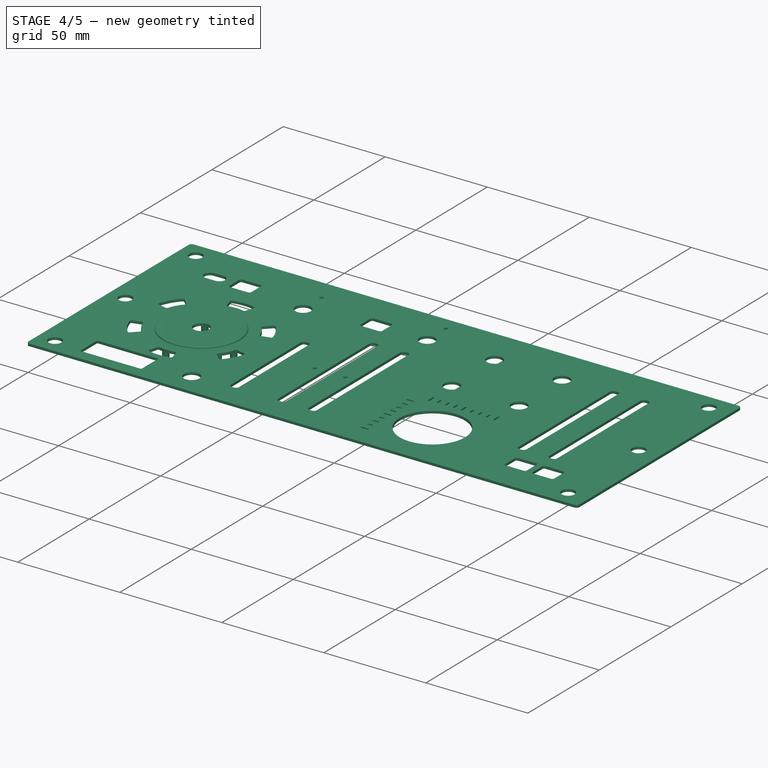
[diagram: stage 4 of 5 — iso view after this stage's code; geometry added in this stage tinted green]
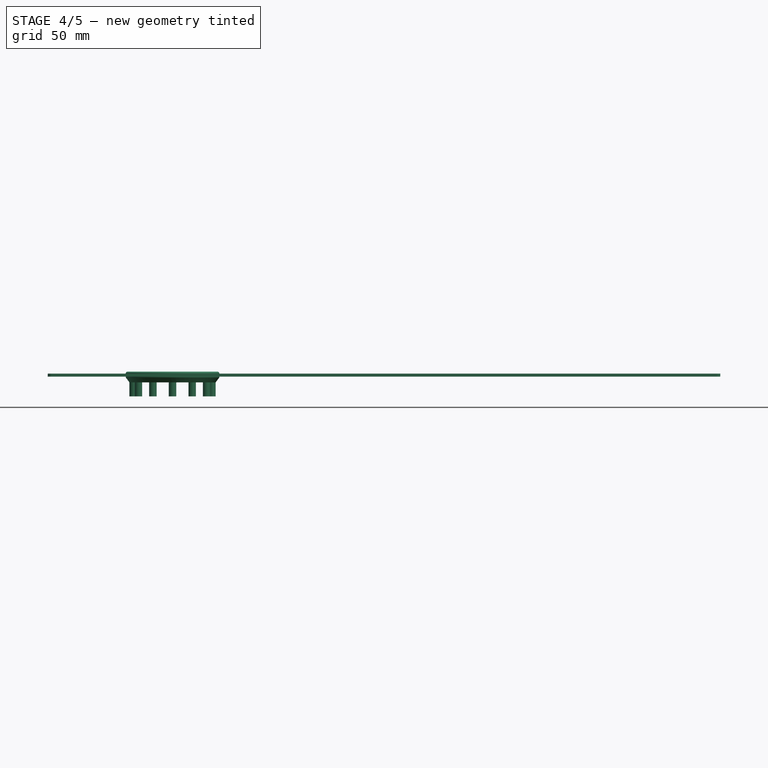
[diagram: stage 4 of 5 — front view after this stage's code; geometry added in this stage tinted green]
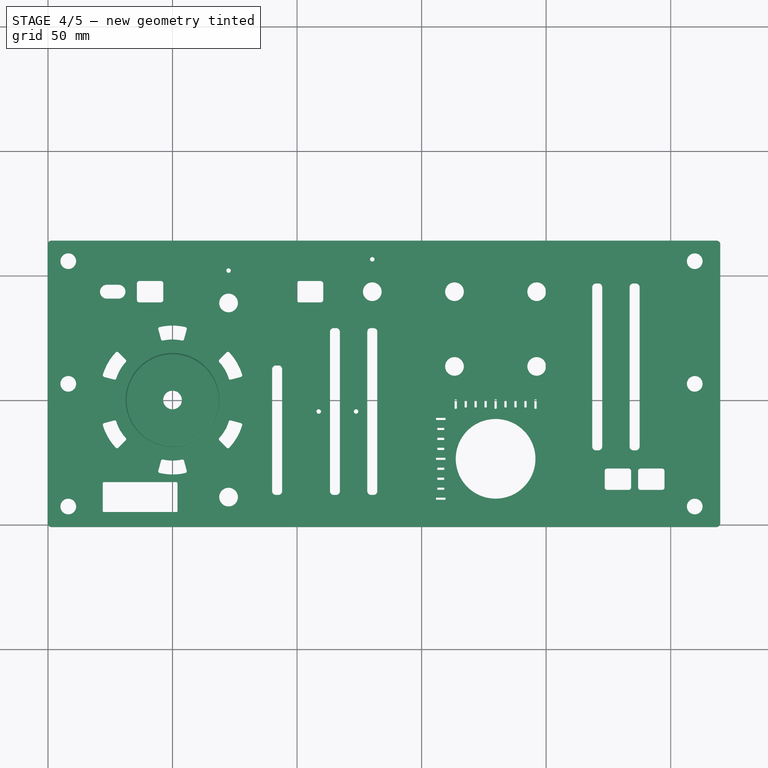
[diagram: stage 4 of 5 — top view after this stage's code; geometry added in this stage tinted green]
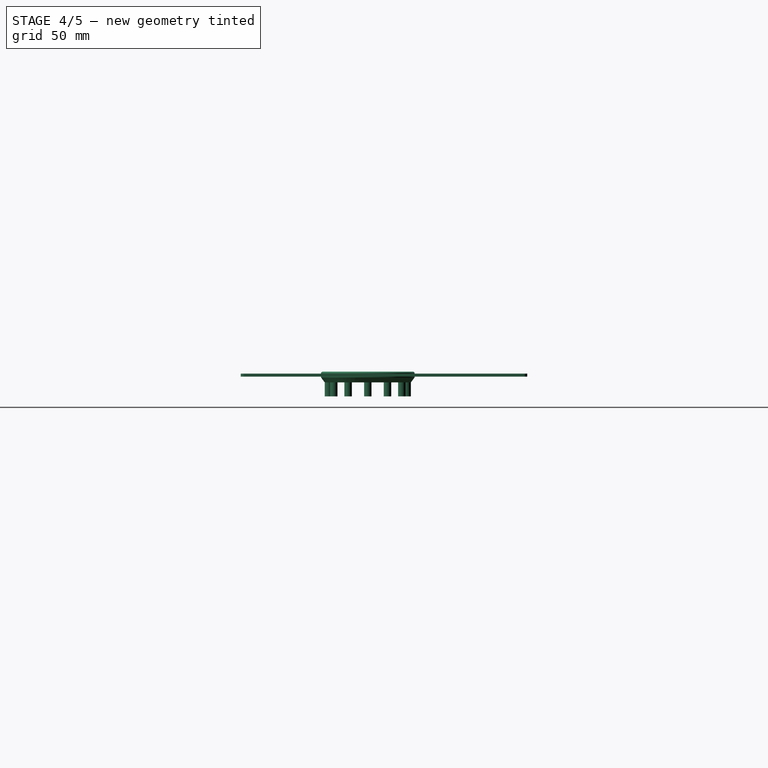
[diagram: stage 4 of 5 — right view after this stage's code; geometry added in this stage tinted green]
FEATURE [PartDesign::Fillet] Fillet002  label="Fillet002Slider"
  Base = -> Fillet001 [Edge265,Edge331,Edge323,Edge335,Edge327,Edge269,Edge467,Edge475,Edge463,Edge471,Edge462,Edge470,Edge330,Edge322,Edge264,Edge333,Edge325,Edge267,Edge465,Edge473]
  BaseFeature = -> Fillet001
  Radius = 1.5
FEATURE [Drawing::FeatureViewPython] rad005  # drawing view (typed FeaturePython)
  Rotation = 0
  ViewResult = <g>  <circle cx ="130.137673" cy ="96.387670" r="0.500000" stroke="none" fill="rgb(57,57,57)" /> \n<line x1="135.348913" y1="93.506031" x2="130.137673" y2="96.387670" style="stroke:rgb(57,57,57);stroke-width:0.30" />\n<polygon points="130.751067,96.048484 133.811939,95.384359 133.376420,94.596753 132.940900,93.809147" style="fill:rgb(57,57,57);stroke:rgb(57,57,57);stroke-width:0" />\n<line x1="135.348913" y1="93.506031" x2="141.077402" y2="93.506031" style="stroke:rgb(57,57,57);stroke-width:0.30" />\n<text x="138.213158" y="91.506031" font-family="Verdana" font-size="2" fill="rgb(40,40,40)" text-anchor="middle" transform="rotate(0.000000 138.213158,91.506031)" >R0.701</text> </g>
  Visible = false
  X = 0
  Y = 0
  arrowL1 = 3
  arrowL2 = 0
  arrowW = 1.8
  arrow_scheme = 0
  autoPlaceOffset = 2
  autoPlaceText = true
  centerPointDia = 1
  click1_x = 135.349
  click1_y = 93.506
  click2_x = 141.077
  click2_y = 93.5772
  click3_x = 141.077
  click3_y = 93.5772
  comma_decimal_place = false
  lineColor = rgb(57,57,57)
  strokeWidth = 0.3
  textFormat_radial = R%(value)3.3f
  textRenderer_color = rgb(40,40,40)
  textRenderer_family = Verdana
  textRenderer_size = 2
  unit_custom_scale = 1
  unit_scheme = 0
FEATURE [Drawing::FeatureViewPython] rad006  # drawing view (typed FeaturePython)
  Rotation = 0
  ViewResult = <g>  <circle cx ="184.600000" cy ="78.200000" r="0.500000" stroke="none" fill="rgb(57,57,57)" /> \n<line x1="190.600563" y1="72.032989" x2="184.600000" y2="78.200000" style="stroke:rgb(57,57,57);stroke-width:0.30" />\n<polygon points="185.297369,77.483287 188.034516,75.960781 187.389474,75.333149 186.744433,74.705517" style="fill:rgb(57,57,57);stroke:rgb(57,57,57);stroke-width:0" />\n<line x1="190.600563" y1="72.032989" x2="199.270020" y2="72.032989" style="stroke:rgb(57,57,57);stroke-width:0.30" />\n<text x="194.935291" y="70.032989" font-family="Verdana" font-size="2" fill="rgb(40,40,40)" text-anchor="middle" transform="rotate(0.000000 194.935291,70.032989)" >R1</text> </g>
  Visible = false
  X = 0
  Y = 0
  arrowL1 = 3
  arrowL2 = 0
  arrowW = 1.8
  arrow_scheme = 0
  autoPlaceOffset = 2
  autoPlaceText = true
  centerPointDia = 1
  click1_x = 190.601
  click1_y = 72.033
  click2_x = 199.27
  click2_y = 72.1605
  click3_x = 199.27
  click3_y = 72.1605
  comma_decimal_place = false
  lineColor = rgb(57,57,57)
  strokeWidth = 0.3
  textFormat_radial = R%(value)3.3f
  textRenderer_color = rgb(40,40,40)
  textRenderer_family = Verdana
  textRenderer_size = 2
  unit_custom_scale = 1
  unit_scheme = 0
FEATURE [Drawing::FeatureViewPython] rad007  # drawing view (typed FeaturePython)
  Rotation = 0
  ViewResult = <g>  <circle cx ="167.600000" cy ="112.600000" r="0.500000" stroke="none" fill="rgb(57,57,57)" /> \n<line x1="173.458347" y1="107.426861" x2="167.600000" y2="112.600000" style="stroke:rgb(57,57,57);stroke-width:0.30" />\n<polygon points="168.724375,111.607135 171.568844,110.296030 170.973125,109.621405 170.377406,108.946780" style="fill:rgb(57,57,57);stroke:rgb(57,57,57);stroke-width:0" />\n<line x1="173.458347" y1="107.426861" x2="180.162052" y2="107.426861" style="stroke:rgb(57,57,57);stroke-width:0.30" />\n<text x="176.810199" y="105.426861" font-family="Verdana" font-size="2" fill="rgb(40,40,40)" text-anchor="middle" transform="rotate(0.000000 176.810199,105.426861)" >R1.5</text> </g>
  Visible = false
  X = 0
  Y = 0
  arrowL1 = 3
  arrowL2 = 0
  arrowW = 1.8
  arrow_scheme = 0
  autoPlaceOffset = 2
  autoPlaceText = true
  centerPointDia = 1
  click1_x = 173.458
  click1_y = 107.427
  click2_x = 180.162
  click2_y = 107.594
  click3_x = 180.162
  click3_y = 107.594
  comma_decimal_place = false
  lineColor = rgb(57,57,57)
  strokeWidth = 0.3
  textFormat_radial = R%(value)3.3f
  textRenderer_color = rgb(40,40,40)
  textRenderer_family = Verdana
  textRenderer_size = 2
  unit_custom_scale = 1
  unit_scheme = 0
FEATURE [App::DocumentObjectGroup] Gruppe003  label="Radien"
  Group = -> [rad001,rad002,rad003,rad004,rad005,rad006,rad007]
FEATURE [Drawing::FeatureViewPython] dim036  # drawing view (typed FeaturePython)
  Rotation = 0
  ViewResult = <g> \n  <line x1="308.600000" y1="78.700000" x2="308.600000" y2="67.228879" style="stroke:rgb(57,57,57);stroke-width:0.30" />\n<line x1="312.600000" y1="78.700000" x2="312.600000" y2="67.228879" style="stroke:rgb(57,57,57);stroke-width:0.30" />\n<line x1="308.600000" y1="67.728879" x2="312.600000" y2="67.728879" style="stroke:rgb(57,57,57);stroke-width:0.30" /> \n  <polygon points="312.600000,67.728879 315.600000,68.628879 315.600000,67.728879 315.600000,66.828879" style="fill:rgb(57,57,57);stroke:rgb(57,57,57);stroke-width:0" /><polygon points="308.600000,67.728879 305.600000,66.828879 305.600000,67.728879 305.600000,68.628879" style="fill:rgb(57,57,57);stroke:rgb(57,57,57);stroke-width:0" /> \n  <text x="310.600000" y="65.728879" font-family="Verdana" font-size="2" fill="rgb(40,40,40)" text-anchor="middle" transform="rotate(0.000000 310.600000,65.728879)" >4</text> </g>
  Visible = false
  X = 0
  Y = 0
  arrowL1 = 3
  arrowL2 = 0
  arrowW = 1.8
  arrow_scheme = 0
  autoPlaceOffset = 2
  autoPlaceText = true
  click1_x = 311.407
  click1_y = 67.7289
  click2_x = 311.407
  click2_y = 67.7289
  comma_decimal_place = false
  dimension_line_overshoot = 0.5
  gap_datum_points = 1
  halfDimension_linear = false
  lineColor = rgb(57,57,57)
  strokeWidth = 0.3
  textFormat_linear = %(value)3.3f
  textRenderer_color = rgb(40,40,40)
  textRenderer_family = Verdana
  textRenderer_size = 2
  unit_custom_scale = 1
  unit_scheme = 0
FEATURE [Drawing::FeatureViewPython] dim037  # drawing view (typed FeaturePython)
  Rotation = 0
  ViewResult = <g> \n  <line x1="312.100000" y1="78.200000" x2="322.184697" y2="78.200000" style="stroke:rgb(57,57,57);stroke-width:0.30" />\n<line x1="313.600000" y1="145.200000" x2="322.184697" y2="145.200000" style="stroke:rgb(57,57,57);stroke-width:0.30" />\n<line x1="321.684697" y1="78.200000" x2="321.684697" y2="145.200000" style="stroke:rgb(57,57,57);stroke-width:0.30" /> \n  <polygon points="321.684697,145.200000 322.584697,142.200000 321.684697,142.200000 320.784697,142.200000" style="fill:rgb(57,57,57);stroke:rgb(57,57,57);stroke-width:0" /><polygon points="321.684697,78.200000 320.784697,81.200000 321.684697,81.200000 322.584697,81.200000" style="fill:rgb(57,57,57);stroke:rgb(57,57,57);stroke-width:0" /> \n  <text x="319.684697" y="111.700000" font-family="Verdana" font-size="2" fill="rgb(40,40,40)" text-anchor="middle" transform="rotate(-90.000000 319.684697,111.700000)" >67</text> </g>
  Visible = false
  X = 0
  Y = 0
  arrowL1 = 3
  arrowL2 = 0
  arrowW = 1.8
  arrow_scheme = 0
  autoPlaceOffset = 2
  autoPlaceText = true
  click1_x = 321.685
  click1_y = 134.889
  click2_x = 321.685
  click2_y = 134.889
  comma_decimal_place = false
  dimension_line_overshoot = 0.5
  gap_datum_points = 1
  halfDimension_linear = false
  lineColor = rgb(57,57,57)
  strokeWidth = 0.3
  textFormat_linear = %(value)3.3f
  textRenderer_color = rgb(40,40,40)
  textRenderer_family = Verdana
  textRenderer_size = 2
  unit_custom_scale = 1
  unit_scheme = 0
FEATURE [Drawing::FeatureViewPython] dim038  # drawing view (typed FeaturePython)
  Rotation = 0
  ViewResult = <g> \n  <line x1="168.600000" y1="163.100000" x2="177.257827" y2="163.100000" style="stroke:rgb(57,57,57);stroke-width:0.30" />\n<line x1="168.600000" y1="111.100000" x2="177.257827" y2="111.100000" style="stroke:rgb(57,57,57);stroke-width:0.30" />\n<line x1="176.757827" y1="163.100000" x2="176.757827" y2="111.100000" style="stroke:rgb(57,57,57);stroke-width:0.30" /> \n  <polygon points="176.757827,111.100000 175.857827,114.100000 176.757827,114.100000 177.657827,114.100000" style="fill:rgb(57,57,57);stroke:rgb(57,57,57);stroke-width:0" /><polygon points="176.757827,163.100000 177.657827,160.100000 176.757827,160.100000 175.857827,160.100000" style="fill:rgb(57,57,57);stroke:rgb(57,57,57);stroke-width:0" /> \n  <text x="174.757827" y="137.100000" font-family="Verdana" font-size="2" fill="rgb(40,40,40)" text-anchor="middle" transform="rotate(-90.000000 174.757827,137.100000)" >52</text> </g>
  Visible = false
  X = 0
  Y = 0
  arrowL1 = 3
  arrowL2 = 0
  arrowW = 1.8
  arrow_scheme = 0
  autoPlaceOffset = 2
  autoPlaceText = true
  click1_x = 176.758
  click1_y = 131.497
  click2_x = 176.758
  click2_y = 131.497
  comma_decimal_place = false
  dimension_line_overshoot = 0.5
  gap_datum_points = 1
  halfDimension_linear = false
  lineColor = rgb(57,57,57)
  strokeWidth = 0.3
  textFormat_linear = %(value)3.3f
  textRenderer_color = rgb(40,40,40)
  textRenderer_family = Verdana
  textRenderer_size = 2
  unit_custom_scale = 1
  unit_scheme = 0
FEATURE [Drawing::FeatureViewPython] dim039  # drawing view (typed FeaturePython)
  Rotation = 0
  ViewResult = <g> \n  <line x1="206.800000" y1="96.100000" x2="214.937067" y2="96.100000" style="stroke:rgb(57,57,57);stroke-width:0.30" />\n<line x1="206.800000" y1="163.100000" x2="214.937067" y2="163.100000" style="stroke:rgb(57,57,57);stroke-width:0.30" />\n<line x1="214.437067" y1="96.100000" x2="214.437067" y2="163.100000" style="stroke:rgb(57,57,57);stroke-width:0.30" /> \n  <polygon points="214.437067,163.100000 215.337067,160.100000 214.437067,160.100000 213.537067,160.100000" style="fill:rgb(57,57,57);stroke:rgb(57,57,57);stroke-width:0" /><polygon points="214.437067,96.100000 213.537067,99.100000 214.437067,99.100000 215.337067,99.100000" style="fill:rgb(57,57,57);stroke:rgb(57,57,57);stroke-width:0" /> \n  <text x="212.437067" y="129.600000" font-family="Verdana" font-size="2" fill="rgb(40,40,40)" text-anchor="middle" transform="rotate(-90.000000 212.437067,129.600000)" >67</text> </g>
  Visible = false
  X = 0
  Y = 0
  arrowL1 = 3
  arrowL2 = 0
  arrowW = 1.8
  arrow_scheme = 0
  autoPlaceOffset = 2
  autoPlaceText = true
  click1_x = 214.437
  click1_y = 142.182
  click2_x = 214.437
  click2_y = 142.182
  comma_decimal_place = false
  dimension_line_overshoot = 0.5
  gap_datum_points = 1
  halfDimension_linear = false
  lineColor = rgb(57,57,57)
  strokeWidth = 0.3
  textFormat_linear = %(value)3.3f
  textRenderer_color = rgb(40,40,40)
  textRenderer_family = Verdana
  textRenderer_size = 2
  unit_custom_scale = 1
  unit_scheme = 0
FEATURE [Drawing::FeatureViewPython] dim040  # drawing view (typed FeaturePython)
  Rotation = 0
  ViewResult = <g> \n  <line x1="203.300000" y1="96.600000" x2="203.300000" y2="90.603669" style="stroke:rgb(57,57,57);stroke-width:0.30" />\n<line x1="207.300000" y1="96.600000" x2="207.300000" y2="90.603669" style="stroke:rgb(57,57,57);stroke-width:0.30" />\n<line x1="203.300000" y1="91.103669" x2="207.300000" y2="91.103669" style="stroke:rgb(57,57,57);stroke-width:0.30" /> \n  <polygon points="207.300000,91.103669 210.300000,92.003669 210.300000,91.103669 210.300000,90.203669" style="fill:rgb(57,57,57);stroke:rgb(57,57,57);stroke-width:0" /><polygon points="203.300000,91.103669 200.300000,90.203669 200.300000,91.103669 200.300000,92.003669" style="fill:rgb(57,57,57);stroke:rgb(57,57,57);stroke-width:0" /> \n  <text x="205.300000" y="89.103669" font-family="Verdana" font-size="2" fill="rgb(40,40,40)" text-anchor="middle" transform="rotate(0.000000 205.300000,89.103669)" >4</text> </g>
  Visible = false
  X = 0
  Y = 0
  arrowL1 = 3
  arrowL2 = 0
  arrowW = 1.8
  arrow_scheme = 0
  autoPlaceOffset = 2
  autoPlaceText = true
  click1_x = 205.758
  click1_y = 91.1037
  click2_x = 205.758
  click2_y = 91.1037
  comma_decimal_place = false
  dimension_line_overshoot = 0.5
  gap_datum_points = 1
  halfDimension_linear = false
  lineColor = rgb(57,57,57)
  strokeWidth = 0.3
  textFormat_linear = %(value)3.3f
  textRenderer_color = rgb(40,40,40)
  textRenderer_family = Verdana
  textRenderer_size = 2
  unit_custom_scale = 1
  unit_scheme = 0
FEATURE [Drawing::FeatureViewPython] dim042  # drawing view (typed FeaturePython)
  Rotation = 0
  ViewResult = <g> \n  <line x1="165.100000" y1="111.600000" x2="165.100000" y2="98.926065" style="stroke:rgb(57,57,57);stroke-width:0.30" />\n<line x1="169.100000" y1="111.600000" x2="169.100000" y2="98.926065" style="stroke:rgb(57,57,57);stroke-width:0.30" />\n<line x1="165.100000" y1="99.426065" x2="169.100000" y2="99.426065" style="stroke:rgb(57,57,57);stroke-width:0.30" /> \n  <polygon points="169.100000,99.426065 172.100000,100.326065 172.100000,99.426065 172.100000,98.526065" style="fill:rgb(57,57,57);stroke:rgb(57,57,57);stroke-width:0" /><polygon points="165.100000,99.426065 162.100000,98.526065 162.100000,99.426065 162.100000,100.326065" style="fill:rgb(57,57,57);stroke:rgb(57,57,57);stroke-width:0" /> \n  <text x="167.100000" y="97.426065" font-family="Verdana" font-size="2" fill="rgb(40,40,40)" text-anchor="middle" transform="rotate(0.000000 167.100000,97.426065)" >4</text> </g>
  Visible = false
  X = 0
  Y = 0
  arrowL1 = 3
  arrowL2 = 0
  arrowW = 1.8
  arrow_scheme = 0
  autoPlaceOffset = 2
  autoPlaceText = true
  click1_x = 168.219
  click1_y = 99.4261
  click2_x = 168.219
  click2_y = 99.4261
  comma_decimal_place = false
  dimension_line_overshoot = 0.5
  gap_datum_points = 1
  halfDimension_linear = false
  lineColor = rgb(57,57,57)
  strokeWidth = 0.3
  textFormat_linear = %(value)3.3f
  textRenderer_color = rgb(40,40,40)
  textRenderer_family = Verdana
  textRenderer_size = 2
  unit_custom_scale = 1
  unit_scheme = 0
FEATURE [Drawing::FeatureViewPython] dim043  # drawing view (typed FeaturePython)
  Rotation = 0
  ViewResult = <g> \n  <line x1="175.000000" y1="79.200000" x2="175.000000" y2="93.155511" style="stroke:rgb(57,57,57);stroke-width:0.30" />\n<line x1="185.600000" y1="79.200000" x2="185.600000" y2="93.155511" style="stroke:rgb(57,57,57);stroke-width:0.30" />\n<line x1="175.000000" y1="92.655511" x2="185.600000" y2="92.655511" style="stroke:rgb(57,57,57);stroke-width:0.30" /> \n  <polygon points="185.600000,92.655511 182.600000,91.755511 182.600000,92.655511 182.600000,93.555511" style="fill:rgb(57,57,57);stroke:rgb(57,57,57);stroke-width:0" /><polygon points="175.000000,92.655511 178.000000,93.555511 178.000000,92.655511 178.000000,91.755511" style="fill:rgb(57,57,57);stroke:rgb(57,57,57);stroke-width:0" /> \n  <text x="180.300000" y="90.655511" font-family="Verdana" font-size="2" fill="rgb(40,40,40)" text-anchor="middle" transform="rotate(0.000000 180.300000,90.655511)" >10.6</text> </g>
  Visible = false
  X = 0
  Y = 0
  arrowL1 = 3
  arrowL2 = 0
  arrowW = 1.8
  arrow_scheme = 0
  autoPlaceOffset = 2
  autoPlaceText = true
  click1_x = 182.052
  click1_y = 92.6555
  click2_x = 182.052
  click2_y = 92.6555
  comma_decimal_place = false
  dimension_line_overshoot = 0.5
  gap_datum_points = 1
  halfDimension_linear = false
  lineColor = rgb(57,57,57)
  strokeWidth = 0.3
  textFormat_linear = %(value)3.3f
  textRenderer_color = rgb(40,40,40)
  textRenderer_family = Verdana
  textRenderer_size = 2
  unit_custom_scale = 1
  unit_scheme = 0
FEATURE [Drawing::FeatureViewPython] dim045  # drawing view (typed FeaturePython)
  Rotation = 0
  ViewResult = <g> \n  <line x1="185.600000" y1="77.200000" x2="194.295733" y2="77.200000" style="stroke:rgb(57,57,57);stroke-width:0.30" />\n<line x1="185.600000" y1="85.800000" x2="194.295733" y2="85.800000" style="stroke:rgb(57,57,57);stroke-width:0.30" />\n<line x1="193.795733" y1="77.200000" x2="193.795733" y2="85.800000" style="stroke:rgb(57,57,57);stroke-width:0.30" /> \n  <polygon points="193.795733,85.800000 194.695733,82.800000 193.795733,82.800000 192.895733,82.800000" style="fill:rgb(57,57,57);stroke:rgb(57,57,57);stroke-width:0" /><polygon points="193.795733,77.200000 192.895733,80.200000 193.795733,80.200000 194.695733,80.200000" style="fill:rgb(57,57,57);stroke:rgb(57,57,57);stroke-width:0" /> \n  <text x="191.795733" y="81.500000" font-family="Verdana" font-size="2" fill="rgb(40,40,40)" text-anchor="middle" transform="rotate(-90.000000 191.795733,81.500000)" >8.6</text> </g>
  Visible = false
  X = 0
  Y = 0
  arrowL1 = 3
  arrowL2 = 0
  arrowW = 1.8
  arrow_scheme = 0
  autoPlaceOffset = 2
  autoPlaceText = true
  click1_x = 193.796
  click1_y = 83.9249
  click2_x = 193.796
  click2_y = 83.9249
  comma_decimal_place = false
  dimension_line_overshoot = 0.5
  gap_datum_points = 1
  halfDimension_linear = false
  lineColor = rgb(57,57,57)
  strokeWidth = 0.3
  textFormat_linear = %(value)3.3f
  textRenderer_color = rgb(40,40,40)
  textRenderer_family = Verdana
  textRenderer_size = 2
  unit_custom_scale = 1
  unit_scheme = 0
FEATURE [Drawing::FeatureViewPython] dim046  # drawing view (typed FeaturePython)
  Rotation = 0
  ViewResult = <g> \n  <line x1="103.400000" y1="85.300000" x2="103.400000" y2="93.322882" style="stroke:rgb(57,57,57);stroke-width:0.30" />\n<line x1="98.800000" y1="85.300000" x2="98.800000" y2="93.322882" style="stroke:rgb(57,57,57);stroke-width:0.30" />\n<line x1="103.400000" y1="92.822882" x2="98.800000" y2="92.822882" style="stroke:rgb(57,57,57);stroke-width:0.30" /> \n  <polygon points="98.800000,92.822882 95.800000,91.922882 95.800000,92.822882 95.800000,93.722882" style="fill:rgb(57,57,57);stroke:rgb(57,57,57);stroke-width:0" /><polygon points="103.400000,92.822882 106.400000,93.722882 106.400000,92.822882 106.400000,91.922882" style="fill:rgb(57,57,57);stroke:rgb(57,57,57);stroke-width:0" /> \n  <text x="101.100000" y="90.822882" font-family="Verdana" font-size="2" fill="rgb(40,40,40)" text-anchor="middle" transform="rotate(0.000000 101.100000,90.822882)" >4.6</text> </g>
  Visible = false
  X = 0
  Y = 0
  arrowL1 = 3
  arrowL2 = 0
  arrowW = 1.8
  arrow_scheme = 0
  autoPlaceOffset = 2
  autoPlaceText = true
  click1_x = 102.216
  click1_y = 92.8229
  click2_x = 102.216
  click2_y = 92.8229
  comma_decimal_place = false
  dimension_line_overshoot = 0.5
  gap_datum_points = 1
  halfDimension_linear = false
  lineColor = rgb(57,57,57)
  strokeWidth = 0.3
  textFormat_linear = %(value)3.3f
  textRenderer_color = rgb(40,40,40)
  textRenderer_family = Verdana
  textRenderer_size = 2
  unit_custom_scale = 1
  unit_scheme = 0
FEATURE [PartDesign::Fillet] Fillet005
  Base = -> Fillet002 [Edge305,Edge307,Edge302,Edge303]
  BaseFeature = -> Fillet002
  Radius = 0.4
FEATURE [PartDesign::Fillet] Fillet006
  Base = -> Fillet005 [Edge293,Edge297,Edge295,Edge292]
  BaseFeature = -> Fillet005
  Radius = 1.5
FEATURE [PartDesign::Fillet] Fillet007
  Base = -> Fillet006 [Edge343,Edge335,Edge485,Edge477,Edge458,Edge466,Edge469,Edge354,Edge360,Edge344,Edge336,Edge488,Edge478,Edge454,Edge462,Edge472,Edge356,Edge362,Edge338,Edge490,Edge346,Edge480,Edge453,Edge461,Edge474,Edge351,Edge364,Edge348,Edge340,Edge486,Edge482,Edge456,Edge464,Edge470,Edge359,Edge352]
  BaseFeature = -> Fillet006
  Radius = 0.2
FEATURE [PartDesign::Fillet] Fillet008
  Base = -> Fillet007 [Edge442,Edge410,Edge402,Edge468,Edge426,Edge418,Edge434,Edge448,Edge458,Edge460,Edge450,Edge430,Edge414,Edge422,Edge464,Edge398,Edge438,Edge406,Edge437,Edge405,Edge397,Edge463,Edge421,Edge413,Edge429,Edge445,Edge455,Edge440,Edge408,Edge400,Edge466,Edge424,Edge456,Edge446,Edge432,Edge416]
  BaseFeature = -> Fillet007
  Radius = 0.2
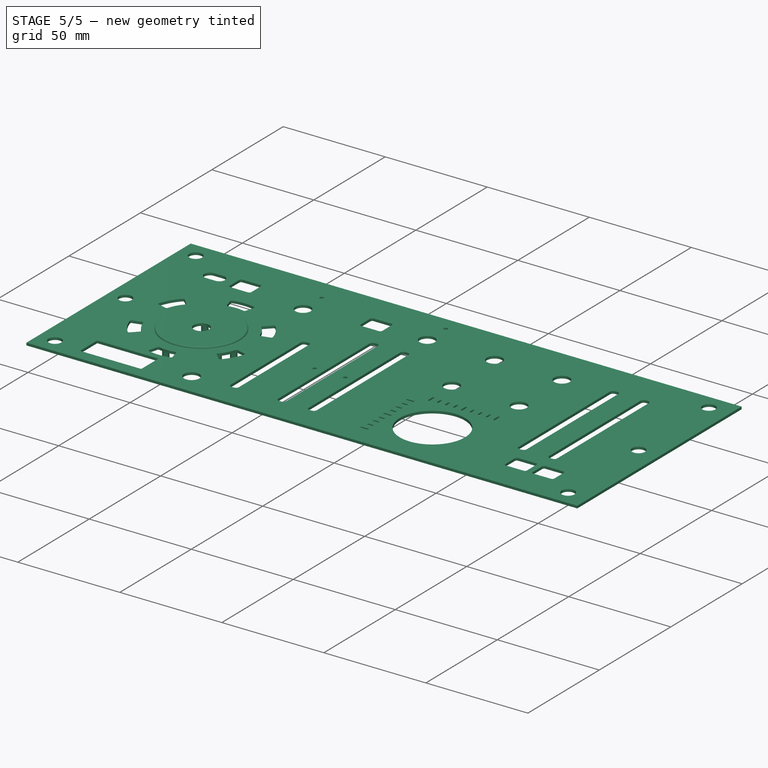
[diagram: stage 5 of 5 — iso view after this stage's code; geometry added in this stage tinted green]
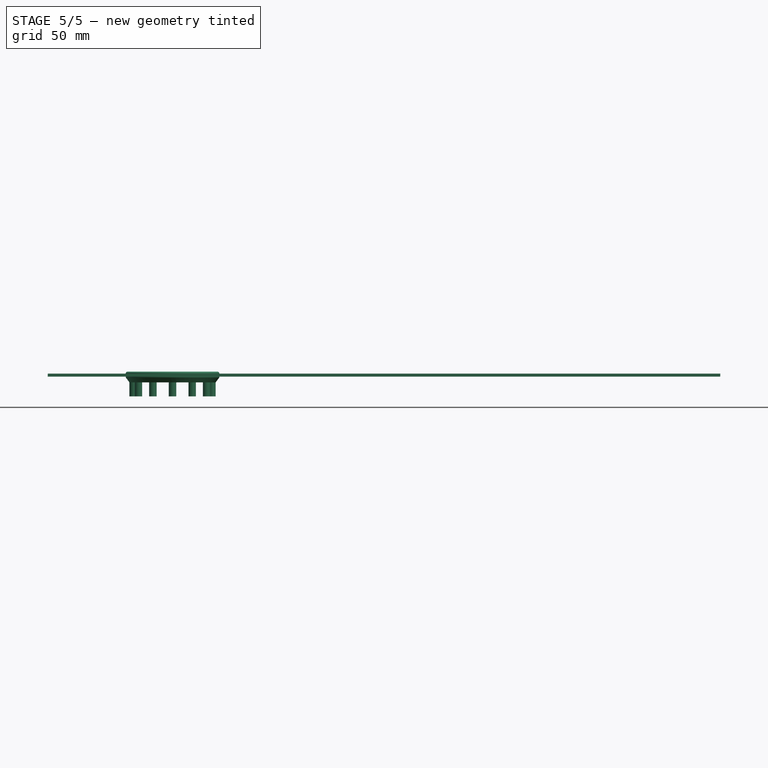
[diagram: stage 5 of 5 — front view after this stage's code; geometry added in this stage tinted green]
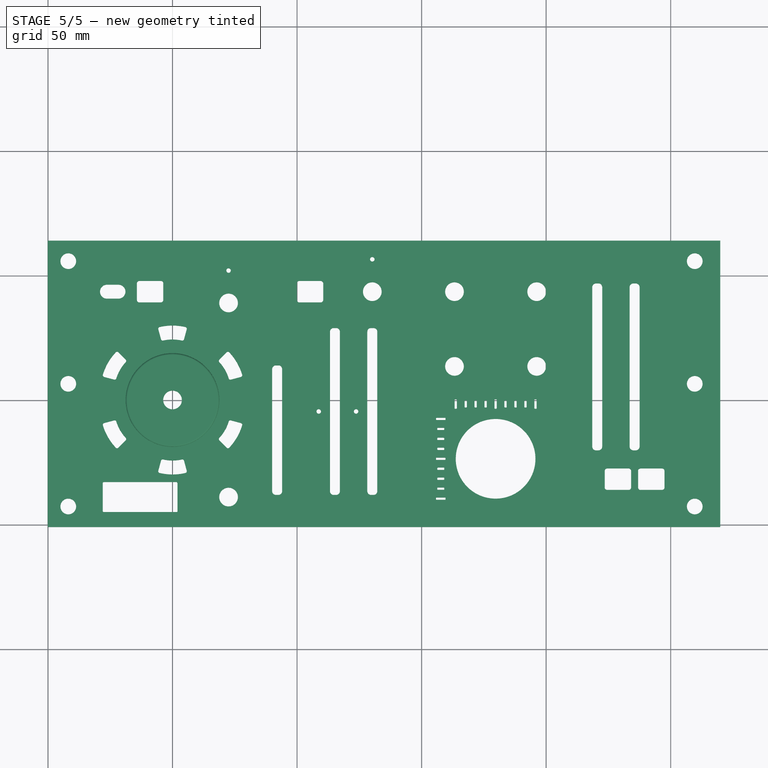
[diagram: stage 5 of 5 — top view after this stage's code; geometry added in this stage tinted green]
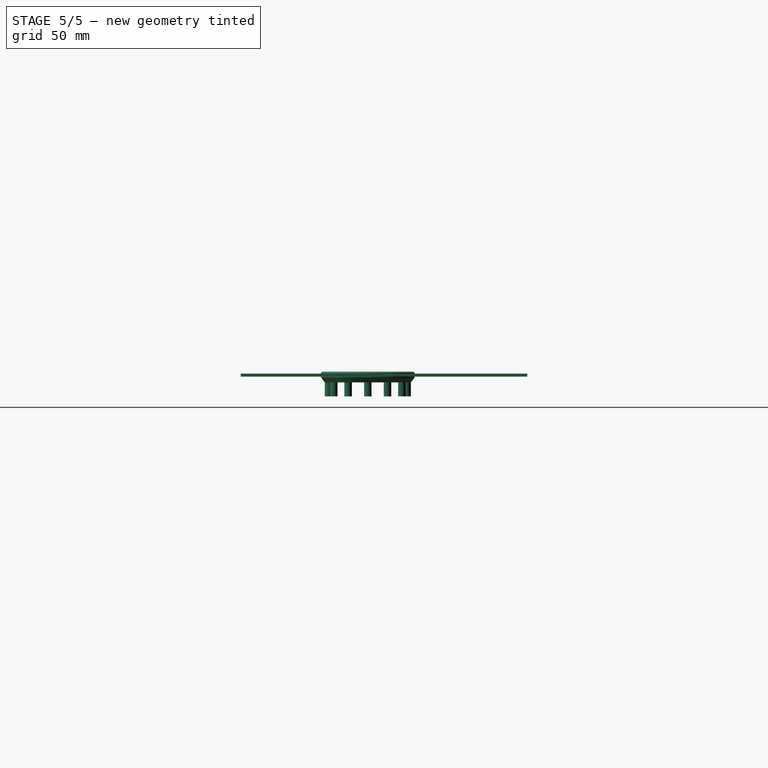
[diagram: stage 5 of 5 — right view after this stage's code; geometry added in this stage tinted green]
FEATURE [PartDesign::Fillet] Fillet003  label="Fillet003Joy1"
  Base = -> Fillet002 [Edge326,Edge333,Edge317,Edge309,Edge459,Edge451,Edge432,Edge440,Edge443,Edge328,Edge334,Edge318,Edge446,Edge436,Edge428,Edge452,Edge462,Edge310,Edge448,Edge435,Edge427,Edge454,Edge464,Edge312,Edge330,Edge336,Edge320,Edge391,Edge359,Edge351,Edge417,Edge375,Edge367,Edge383,Edge399,Edge409,Edge392,Edge360,Edge352,Edge376,+23 more]
  BaseFeature = -> Fillet002
  Radius = 0.2
FEATURE [PartDesign::Fillet] Fillet004  label="Fillet004Joy2"
  Base = -> Fillet003 [Edge803,Edge833,Edge841,Edge613,Edge633,Edge605,Edge293]
  BaseFeature = -> Fillet003
  Radius = 0.2
FEATURE [Sketcher::SketchObject] Sketch003
  ExternalGeometry = -> [Fillet008]
  MapMode = 5
  Placement = pos=(0,0,1.2) rot=(0,0,1;0rad)
  Support = -> [Fillet008]
  sketch-geometry (6):
    g0: LineSegment StartX=128.7 StartY=-38.6 StartZ=0 EndX=130.7 EndY=-38.6 EndZ=0
    g1: LineSegment StartX=130.7 StartY=-38.6 StartZ=0 EndX=130.7 EndY=-40.6 EndZ=0
    g2: LineSegment StartX=130.7 StartY=-40.6 StartZ=0 EndX=128.7 EndY=-40.6 EndZ=0
    g3: LineSegment StartX=128.7 StartY=-40.6 StartZ=0 EndX=128.7 EndY=-38.6 EndZ=0
    g4: GeomPoint X=129.7 Y=-39.6 Z=0
    g5: LineSegment [constr] StartX=129.7 StartY=-39.6 StartZ=0 EndX=129.7 EndY=-23.6 EndZ=0
  constraints (15):
    c: Coincident(g0,g1)
    c: Coincident(g1,g2)
    c: Coincident(g2,g3)
    c: Coincident(g3,g0)
    c: Horizontal(g0)
    c: Horizontal(g2)
    c: Vertical(g1)
    c: Vertical(g3)
    c: Symmetric(g0,g1,g4)
    c: DistanceY(g1,g1) = 2
    c: DistanceX(g2,g2) = 2
    c: DistanceY(g1,g-3) = 17
    c: Coincident(g5,g4)
    c: Vertical(g5)
    c: Coincident(g5,g-3)
FEATURE [PartDesign::Pocket] Pocket002
  BaseFeature = -> Fillet008
  Length = 5
  Length2 = 100
  Profile = -> Sketch003
  Type = 0
FEATURE [Sketcher::SketchObject] Sketch005
  MapMode = 5
  Placement = pos=(0,0,1.2) rot=(0,0,1;0rad)
  sketch-geometry (9):
    g0: Circle CenterX=69.9 CenterY=52.5 CenterZ=0 NormalX=0 NormalY=0 NormalZ=1 AngleXU=0 Radius=1.6
    g1: Circle CenterX=-27.1 CenterY=54.5 CenterZ=0 NormalX=0 NormalY=0 NormalZ=1 AngleXU=0 Radius=1.6
    g2: Circle CenterX=196.9 CenterY=52.5 CenterZ=0 NormalX=0 NormalY=0 NormalZ=1 AngleXU=0 Radius=1.6
    g3: Circle CenterX=-27.1 CenterY=-26.5 CenterZ=0 NormalX=0 NormalY=0 NormalZ=1 AngleXU=0 Radius=1.6
    g4: Circle CenterX=52.9 CenterY=-41.5 CenterZ=0 NormalX=0 NormalY=0 NormalZ=1 AngleXU=0 Radius=1.6
    g5: Circle CenterX=157.9 CenterY=-41.5 CenterZ=0 NormalX=0 NormalY=0 NormalZ=1 AngleXU=0 Radius=1.6
    g6: LineSegment [constr] StartX=157.9 StartY=-41.5 StartZ=0 EndX=52.9 EndY=-41.5 EndZ=0
    g7: LineSegment [constr] StartX=69.9 StartY=52.5 StartZ=0 EndX=196.9 EndY=52.5 EndZ=0
    g8: LineSegment [constr] StartX=-27.1 StartY=54.5 StartZ=0 EndX=-27.1 EndY=-26.5 EndZ=0
  constraints (20):
    c: Diameter(g1) = 3.2
    c: Equal(g1,g0)
    c: Equal(g0,g3)
    c: Equal(g3,g4)
    c: Equal(g4,g5)
    c: Equal(g5,g2)
    c: Coincident(g6,g5)
    c: Coincident(g6,g4)
    c: Horizontal(g6)
    c: Coincident(g7,g0)
    c: Coincident(g7,g2)
    c: Horizontal(g7)
    c: Coincident(g8,g1)
    c: Coincident(g8,g3)
    c: Vertical(g8)
    c: DistanceX(g1,g0) = 97
    c: DistanceX(g7,g7) = 127
    c: DistanceX(g6,g6) = 105
    c: DistanceY(g8,g8) = 81
    c: DistanceY(g0,g1) = 2
FEATURE [PartDesign::Hole] Hole001
  BaseFeature = -> Pocket002
  Depth = 25
  DepthType = 0
  Diameter = 3.2
  DrillPoint = 1
  DrillPointAngle = 118
  HoleCutCountersinkAngle = 90
  HoleCutDepth = 0
  HoleCutDiameter = 0
  HoleCutType = 0
  ModelActualThread = false
  Profile = -> Sketch005
  Tapered = false
  TaperedAngle = 90
  ThreadAngle = 0
  ThreadClass = 0
  ThreadCutOffInner = 0
  ThreadCutOffOuter = 0
  ThreadDirection = 0
  ThreadFit = 0
  ThreadPitch = 0
  ThreadSize = 0
  ThreadType = 0
  Threaded = false
FEATURE [Sketcher::SketchObject] Sketch007
  MapMode = 5
  Placement = pos=(0,0,1.2) rot=(0,0,1;0rad)
  Support = -> [Hole001]
  sketch-geometry (1):
    g0: Circle CenterX=0 CenterY=0 CenterZ=0 NormalX=0 NormalY=0 NormalZ=1 AngleXU=0 Radius=19
  constraints (2):
    c: Coincident(g0,g-1)
    c: Diameter(g0) = 38
FEATURE [PartDesign::Pocket] Pocket003
  BaseFeature = -> Hole001
  Length = 5
  Length2 = 100
  Profile = -> Sketch007
  Type = 0
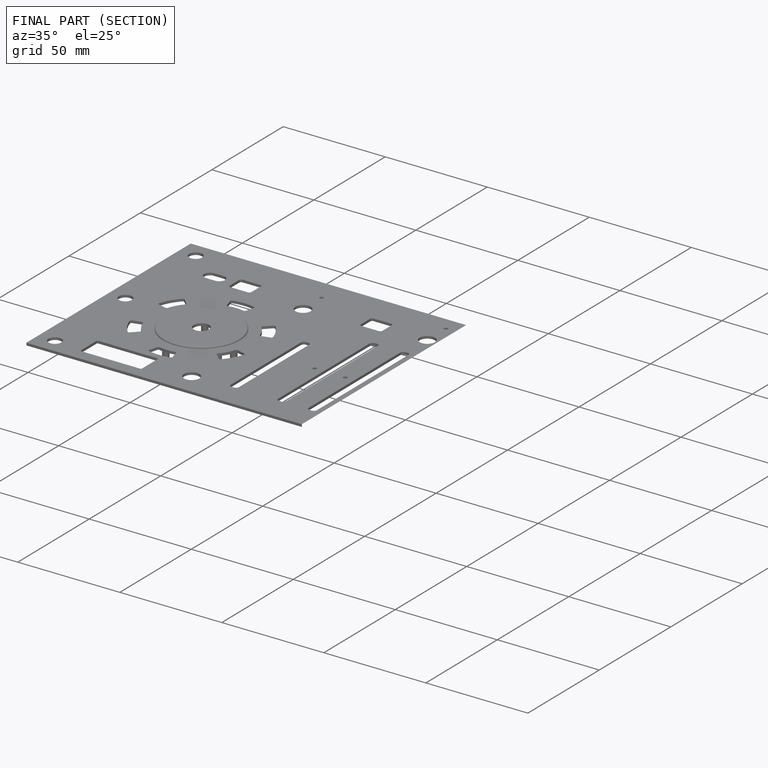
[diagram: finished part — half-section view (interior)]
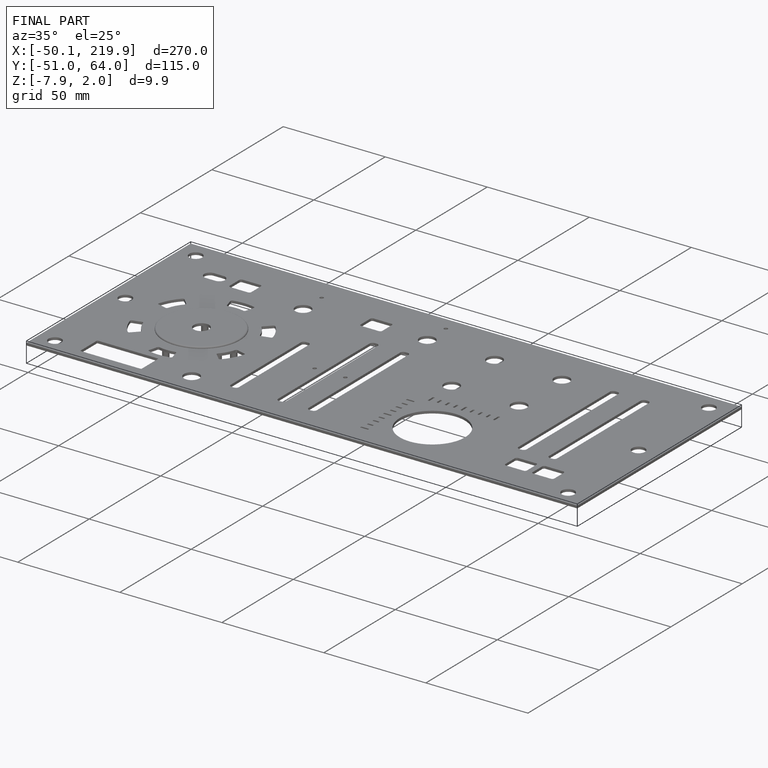
[diagram: finished part — iso view with bounding-box wireframe]
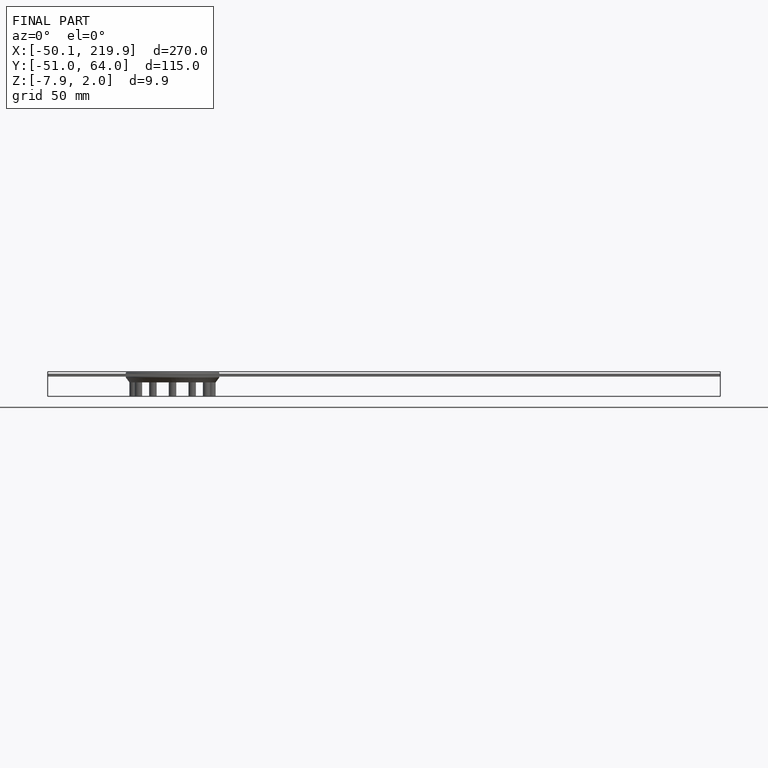
[diagram: finished part — front view with bounding-box wireframe]
